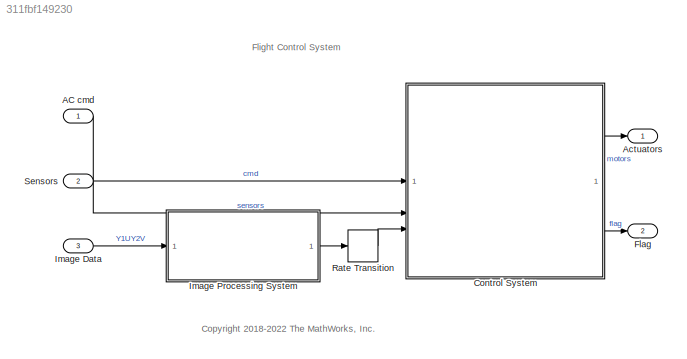
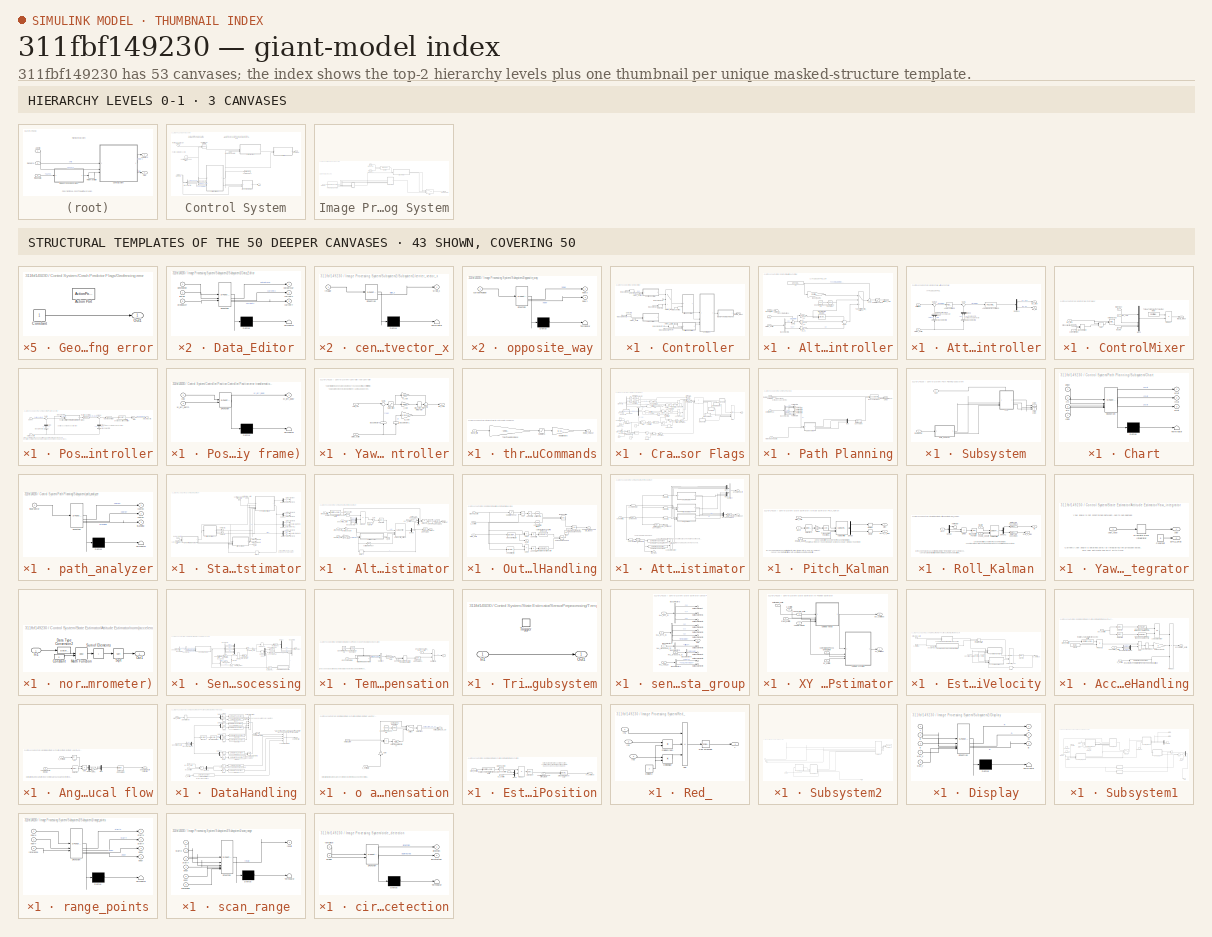
[diagram: thumbnail index - top-2 hierarchy levels (3 canvases) + 43 structural-template representatives of the remaining 50 canvases]
MODEL slx_311fbf149230
KIND model
CONFIG AbsTol = auto
CONFIG EnableMultiTasking = on
CONFIG FixedStep = Ts
CONFIG MaxStep = auto
CONFIG MinStep = auto
CONFIG RelTol = 1e-3
CONFIG SampleTimeConstraint = Unconstrained
CONFIG SolverName = ode3
CONFIG StartTime = 0
CONFIG StopTime = TFinal
WORKSPACE source: mxarray member
WORKSPACE CIRCLE_PTS = [19 19 19]
WORKSPACE ZEROS = [0 0 0 0 0 0 0 0 0 0 0 0 ... (1444 elements, 38x38)]
BLOCK [Inport] AC cmd
  BusOutputAsStruct = on
  OutDataTypeStr = Bus: CommandBus
BLOCK [Outport] Actuators
  OutDataTypeStr = single
  PortDimensions = 4
  VectorParamsAs1DForOutWhenUnconnected = off
BLOCK [SubSystem] Control System
  InitFcn = codertarget.parrot.internal.fcsSubsystemCallback(gcb);
  RTWSystemCode = Reusable function
  SystemSampleTime = Ts
  TreatAsAtomicUnit = on
BLOCK [BusSelector] Control System/Bus Selector1
  OutputSignals = opticalFlow_data
BLOCK [BusSelector] Control System/Bus Selector4
  OutputSignals = VisionSensors,SensorCalibration
BLOCK [BusAssignment] Control System/Control Mode Update
  AssignedSignals = controlModePosVSOrient
BLOCK [SubSystem] Control System/Controller
BLOCK [SubSystem] Control System/Controller/Altitude Controller
BLOCK [BusSelector] Control System/Controller/Altitude Controller/Bus Selector1
  OutputSignals = Z,dz
BLOCK [Reference] Control System/Controller/Altitude Controller/Compare To Constant  REF=simulink/Logic and Bit
Operations/Compare
To Constant
  SourceBlock = simulink/Logic and Bit\nOperations/Compare\nTo Constant
  SourceType = Compare To Constant
BLOCK [Reference] Control System/Controller/Altitude Controller/Counter Free-Running  REF=simulink/Sources/Counter
Free-Running
  SourceBlock = simulink/Sources/Counter\nFree-Running
  SourceType = Counter Free-Running
BLOCK [Gain] Control System/Controller/Altitude Controller/D_z1
  Gain = 0.5
  OutDataTypeStr = single
  ParamDataTypeStr = single
  SaturateOnIntegerOverflow = on
BLOCK [DiscreteIntegrator] Control System/Controller/Altitude Controller/Discrete-Time Integrator
  ExternalReset = falling
  ICPrevOutput = DiscIntNeverNeededParam
  ICPrevScaledInput = DiscIntNeverNeededParam
  InitialConditionSetting = Auto
  LimitOutput = on
  LowerSaturationLimit = -2
  SampleTime = Ts
  UpperSaturationLimit = 2
BLOCK [Gain] Control System/Controller/Altitude Controller/I_pr
  Gain = 0.24
BLOCK [Gain] Control System/Controller/Altitude Controller/P_z1
  Gain = 0.8
  OutDataTypeStr = single
  ParamDataTypeStr = single
  SaturateOnIntegerOverflow = on
BLOCK [Inport] Control System/Controller/Altitude Controller/PosZ
  Port = 2
BLOCK [Saturate] Control System/Controller/Altitude Controller/SaturationThrust1
  LowerLimit = -4*Controller.totalThrustMaxRelative*Controller.motorsThrustPerMotorMax
  OutDataTypeStr = single
  UpperLimit = 4*Controller.totalThrustMaxRelative*Controller.motorsThrustPerMotorMax
BLOCK [Sum] Control System/Controller/Altitude Controller/Sum1
  AccumDataTypeStr = single
  Inputs = ++-
  OutDataTypeStr = single
  SaturateOnIntegerOverflow = on
BLOCK [Sum] Control System/Controller/Altitude Controller/Sum2
  AccumDataTypeStr = single
  Inputs = +-|
  OutDataTypeStr = single
  SaturateOnIntegerOverflow = on
BLOCK [Sum] Control System/Controller/Altitude Controller/Sum5
  AccumDataTypeStr = single
  Inputs = ++|
  OutDataTypeStr = single
  SaturateOnIntegerOverflow = on
BLOCK [Switch] Control System/Controller/Altitude Controller/TakeoffOrControl_Switch1
  Criteria = u2 > Threshold
  InputSameDT = off
  SaturateOnIntegerOverflow = off
BLOCK [Terminator] Control System/Controller/Altitude Controller/Terminator
BLOCK [Outport] Control System/Controller/Altitude Controller/altitude_cmd
  VectorParamsAs1DForOutWhenUnconnected = off
BLOCK [Inport] Control System/Controller/Altitude Controller/states_estim
BLOCK [Inport] Control System/Controller/Altitude Controller/takeoff_flag
  Port = 3
BLOCK [Gain] Control System/Controller/Altitude Controller/takeoff_gain1
  Gain = Controller.takeoffGain
  OutDataTypeStr = single
  ParamDataTypeStr = single
  SaturateOnIntegerOverflow = on
BLOCK [Constant] Control System/Controller/Altitude Controller/w1
  OutDataTypeStr = single
  SampleTime = Ts
  Value = -g*Vehicle.Airframe.mass
BLOCK [SubSystem] Control System/Controller/Attitude Controller
BLOCK [Reference] Control System/Controller/Attitude Controller/Angle control loop  REF=slpidlib/PID Controller
  SourceBlock = slpidlib/PID Controller
  SourceType = PID 1dof
BLOCK [Reference] Control System/Controller/Attitude Controller/Angular velocity control loop  REF=slpidlib/PID Controller
  SourceBlock = slpidlib/PID Controller
  SourceType = PID 1dof
BLOCK [BusSelector] Control System/Controller/Attitude Controller/Bus Selector1
  OutputSignals = q,p
BLOCK [BusSelector] Control System/Controller/Attitude Controller/Bus Selector3
  OutputSignals = pitch,roll
BLOCK [Demux] Control System/Controller/Attitude Controller/Demux1
  Outputs = 2
BLOCK [Mux] Control System/Controller/Attitude Controller/Mux
  DisplayOption = bar
  Inputs = 2
BLOCK [Mux] Control System/Controller/Attitude Controller/Mux2
  DisplayOption = bar
  Inputs = 2
BLOCK [Sum] Control System/Controller/Attitude Controller/Sum1
  Inputs = |+-
BLOCK [Sum] Control System/Controller/Attitude Controller/Sum19
  Inputs = |+-
BLOCK [Inport] Control System/Controller/Attitude Controller/refAttitude
BLOCK [Inport] Control System/Controller/Attitude Controller/states_estim
  Port = 2
BLOCK [Outport] Control System/Controller/Attitude Controller/tau_pitch
  VectorParamsAs1DForOutWhenUnconnected = off
BLOCK [Outport] Control System/Controller/Attitude Controller/tau_roll
  Port = 2
  VectorParamsAs1DForOutWhenUnconnected = off
BLOCK [SubSystem] Control System/Controller/ControlMixer
BLOCK [Sum] Control System/Controller/ControlMixer/Add
  IconShape = rectangular
BLOCK [ManualSwitch] Control System/Controller/ControlMixer/Manual Switch
BLOCK [Mux] Control System/Controller/ControlMixer/Mux2
  DisplayOption = bar
BLOCK [Constant] Control System/Controller/ControlMixer/Pitch correction
  OutDataTypeStr = single
  Value = 0.002
BLOCK [Product] Control System/Controller/ControlMixer/Product
  Multiplication = Matrix(*)
  RndMeth = Zero
BLOCK [Constant] Control System/Controller/ControlMixer/TorqueTotalThrustToThrustPerMotor
  NameLocation = top
  OutDataTypeStr = single
  Value = Controller.Q2Ts
BLOCK [VariantSource] Control System/Controller/ControlMixer/Variant Source
  ShowConditionOnBlock = on
  VariantActivationTime = update diagram analyze all choices
  VariantControlMode = sim codegen switching
BLOCK [Inport] Control System/Controller/ControlMixer/tau_pitch
BLOCK [Inport] Control System/Controller/ControlMixer/tau_roll
  Port = 2
BLOCK [Inport] Control System/Controller/ControlMixer/tau_yaw
  Port = 3
BLOCK [Outport] Control System/Controller/ControlMixer/thrusts_refout
  VectorParamsAs1DForOutWhenUnconnected = off
BLOCK [Inport] Control System/Controller/ControlMixer/totalThrust
  Port = 4
BLOCK [Constant] Control System/Controller/ControlMixer/zero correction
  OutDataTypeStr = single
  Value = 0
BLOCK [Inport] Control System/Controller/In Bus Element
BLOCK [Inport] Control System/Controller/In Bus Element1
BLOCK [Inport] Control System/Controller/In Bus Element2
BLOCK [Inport] Control System/Controller/In Bus Element3
BLOCK [Inport] Control System/Controller/In Bus Element5
BLOCK [Inport] Control System/Controller/In Bus Element6
BLOCK [SubSystem] Control System/Controller/Position Controller
BLOCK [BusSelector] Control System/Controller/Position Controller/Bus Selector1
  NameLocation = right
  OutputSignals = X,Y
BLOCK [BusSelector] Control System/Controller/Position Controller/Bus Selector2
  NameLocation = right
  OutputSignals = dx,dy
BLOCK [BusSelector] Control System/Controller/Position Controller/Bus Selector3
  OutputSignals = yaw
BLOCK [Gain] Control System/Controller/Position Controller/Gain
  Gain = [-1, 1]
BLOCK [DiscreteTransferFcn] Control System/Controller/Position Controller/LPF 8Hz Cutoff Filter to avoid oscillations induced by position controller
  Denominator = [1+1/pi/Ts/8, 1-1/pi/Ts/8]
  InputPortMap = u0
  Numerator = [1, 1]
BLOCK [Mux] Control System/Controller/Position Controller/Mux
  DisplayOption = bar
  Inputs = 2
  NameLocation = right
BLOCK [Mux] Control System/Controller/Position Controller/Mux1
  DisplayOption = bar
  Inputs = 2
  NameLocation = right
BLOCK [Reference] Control System/Controller/Position Controller/Position controller  REF=slpidlib/PID Controller
  SourceBlock = slpidlib/PID Controller
  SourceType = PID 1dof
BLOCK [SubSystem] Control System/Controller/Position Controller/Position error transformation (Earth to Body frame)
  ErrorFcn = Stateflow.Translate.translate
  PermitHierarchicalResolution = ExplicitOnly
  SFBlockType = MATLAB Function
  TreatAsAtomicUnit = on
BLOCK [Demux] Control System/Controller/Position Controller/Position error transformation (Earth to Body frame)/ Demux 
  Outputs = 1
BLOCK [S-Function] Control System/Controller/Position Controller/Position error transformation (Earth to Body frame)/ SFunction 
  EnableBusSupport = on
  FunctionName = sf_sfun
  PortCounts = [2 2]
  SFcnIsStateOwnerBlock = off
  SFunctionDeploymentMode = off
  Tag = Stateflow S-Function 2
BLOCK [Terminator] Control System/Controller/Position Controller/Position error transformation (Earth to Body frame)/ Terminator 
BLOCK [Outport] Control System/Controller/Position Controller/Position error transformation (Earth to Body frame)/xy_err_body
BLOCK [Inport] Control System/Controller/Position Controller/Position error transformation (Earth to Body frame)/xy_err_earth
  Port = 2
BLOCK [Inport] Control System/Controller/Position Controller/Position error transformation (Earth to Body frame)/yaw
BLOCK [Sum] Control System/Controller/Position Controller/Sum1
  Inputs = |+-
BLOCK [Sum] Control System/Controller/Position Controller/Sum19
  Inputs = |+-
BLOCK [Reference] Control System/Controller/Position Controller/Velocity controller  REF=slpidlib/PID Controller
  SourceBlock = slpidlib/PID Controller
  SourceType = PID 1dof
BLOCK [Outport] Control System/Controller/Position Controller/pitch_roll_cmd
  VectorParamsAs1DForOutWhenUnconnected = off
BLOCK [Inport] Control System/Controller/Position Controller/posXY
BLOCK [Inport] Control System/Controller/Position Controller/states_estim
  Port = 2
BLOCK [Selector] Control System/Controller/Selector
  IndexOptions = Index vector (dialog)
  Indices = 3
  InputPortWidth = 3
  OutputSizes = 1
BLOCK [Selector] Control System/Controller/Selector1
  IndexOptions = Index vector (dialog)
  Indices = [1 2]
  InputPortWidth = 3
  OutputSizes = 1
BLOCK [Selector] Control System/Controller/Selector2
  IndexOptions = Index vector (dialog)
  Indices = [2 3]
  InputPortWidth = 3
  OutputSizes = 1
BLOCK [Selector] Control System/Controller/Selector3
  IndexOptions = Index vector (dialog)
  Indices = 1
  InputPortWidth = 3
  OutputSizes = 1
BLOCK [Switch] Control System/Controller/Switch_refAtt
  Criteria = u2 > Threshold
  InputSameDT = off
  SaturateOnIntegerOverflow = off
BLOCK [SubSystem] Control System/Controller/Yaw Controller
BLOCK [BusSelector] Control System/Controller/Yaw Controller/Bus Selector1
  NameLocation = right
  OutputSignals = r
BLOCK [BusSelector] Control System/Controller/Yaw Controller/Bus Selector5
  NameLocation = right
  OutputSignals = yaw
BLOCK [Gain] Control System/Controller/Yaw Controller/D_yaw
  Gain = 0.3*0.004
BLOCK [DiscreteIntegrator] Control System/Controller/Yaw Controller/Discrete-Time Integrator
  ICPrevOutput = DiscIntNeverNeededParam
  ICPrevScaledInput = DiscIntNeverNeededParam
  InitialConditionSetting = Auto
  SampleTime = -1
  gainval = 1
BLOCK [Gain] Control System/Controller/Yaw Controller/I_yaw
  Gain = 0.002
  OutDataTypeStr = single
  ParamDataTypeStr = single
BLOCK [Gain] Control System/Controller/Yaw Controller/P_yaw
  Gain = 0.004
  OutDataTypeStr = single
  ParamDataTypeStr = single
BLOCK [Saturate] Control System/Controller/Yaw Controller/Saturation
  LowerLimit = -pi/180*30
  UpperLimit = pi/180*30
BLOCK [Sum] Control System/Controller/Yaw Controller/Sum1
  AccumDataTypeStr = single
  Inputs = |+-
  OutDataTypeStr = single
  SaturateOnIntegerOverflow = on
BLOCK [Sum] Control System/Controller/Yaw Controller/Sum2
  Inputs = ++-
BLOCK [Inport] Control System/Controller/Yaw Controller/states_estim
  Port = 2
BLOCK [Outport] Control System/Controller/Yaw Controller/tau_yaw
  VectorParamsAs1DForOutWhenUnconnected = off
BLOCK [Inport] Control System/Controller/Yaw Controller/yaw_ref
BLOCK [Outport] Control System/Controller/motors_refout
  VectorParamsAs1DForOutWhenUnconnected = off
BLOCK [Inport] Control System/Controller/states_estim
  Port = 2
BLOCK [InportShadow] Control System/Controller/states_estim1
  Port = 2
BLOCK [InportShadow] Control System/Controller/states_estim2
  Port = 2
BLOCK [InportShadow] Control System/Controller/states_estim3
  Port = 2
BLOCK [SubSystem] Control System/Controller/thrustsToMotorCommands
BLOCK [Gain] Control System/Controller/thrustsToMotorCommands/MotorDirections
  Gain = [1 -1 1 -1]
BLOCK [Saturate] Control System/Controller/thrustsToMotorCommands/Saturation5
  LowerLimit = Vehicle.Motor.minLimit
  UpperLimit = Vehicle.Motor.maxLimit
BLOCK [Gain] Control System/Controller/thrustsToMotorCommands/ThrustToMotorCommand
  Gain = -Vehicle.Motor.thrustToMotorCommand
BLOCK [Outport] Control System/Controller/thrustsToMotorCommands/motors_cmdout
  VectorParamsAs1DForOutWhenUnconnected = off
BLOCK [Inport] Control System/Controller/thrustsToMotorCommands/thrusts_refin
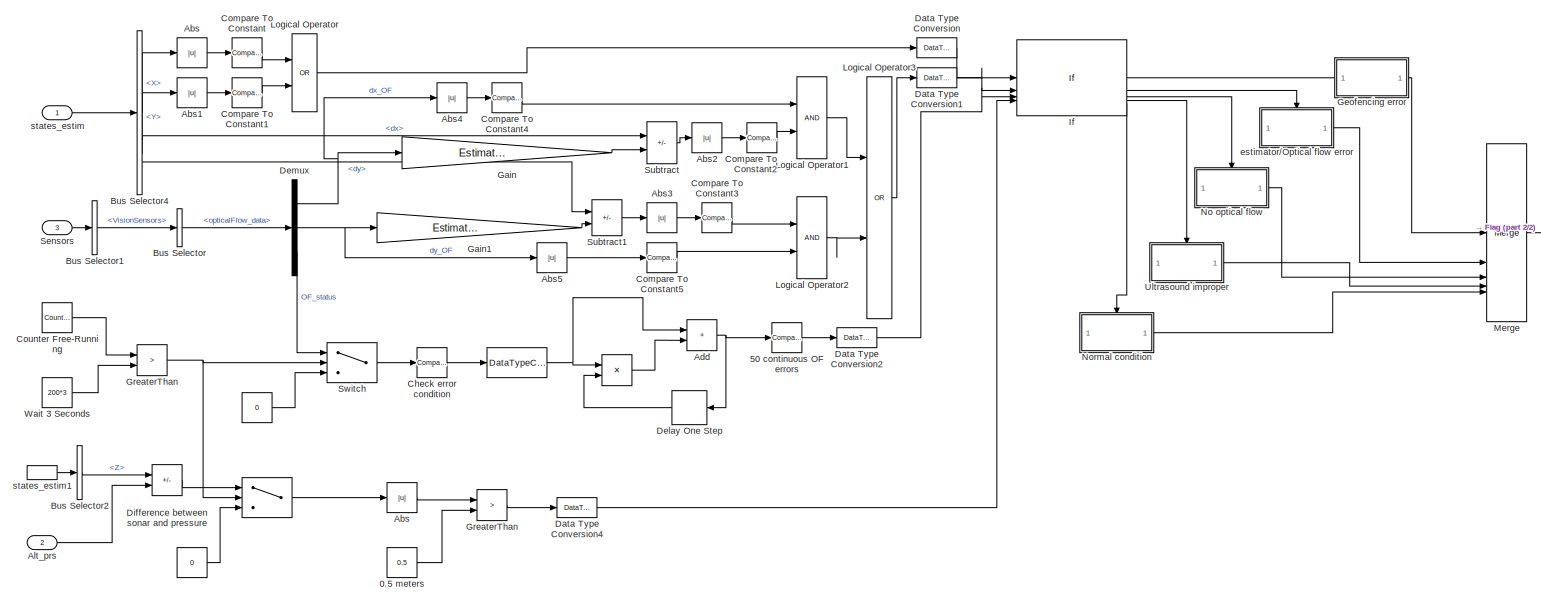
[diagram: Control System/Crash Predictor Flags - part 1/2, most of the canvas]
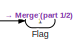
[diagram: Control System/Crash Predictor Flags - part 2/2, middle right region]
BLOCK [SubSystem] Control System/Crash Predictor Flags
BLOCK [Constant] Control System/Crash Predictor Flags/ 
  Value = 0
BLOCK [Product] Control System/Crash Predictor Flags/  
  Inputs = **
BLOCK [DataTypeConversion] Control System/Crash Predictor Flags/   
  RndMeth = Floor
  SaturateOnIntegerOverflow = off
BLOCK [Constant] Control System/Crash Predictor Flags/    
  OutDataTypeStr = single
  Value = 0
BLOCK [Switch] Control System/Crash Predictor Flags/         
  Criteria = u2 > Threshold
  InputSameDT = off
  SaturateOnIntegerOverflow = off
BLOCK [Constant] Control System/Crash Predictor Flags/0.5 meters
  Value = 0.5
BLOCK [Reference] Control System/Crash Predictor Flags/50 continuous OF errors   REF=simulink/Logic and Bit
Operations/Compare
To Constant
  SourceBlock = simulink/Logic and Bit\nOperations/Compare\nTo Constant
  SourceType = Compare To Constant
BLOCK [Abs] Control System/Crash Predictor Flags/Abs
  SaturateOnIntegerOverflow = off
BLOCK [Abs] Control System/Crash Predictor Flags/Abs  
  SaturateOnIntegerOverflow = off
BLOCK [Abs] Control System/Crash Predictor Flags/Abs1
  SaturateOnIntegerOverflow = off
BLOCK [Abs] Control System/Crash Predictor Flags/Abs2
  SaturateOnIntegerOverflow = off
BLOCK [Abs] Control System/Crash Predictor Flags/Abs3
  SaturateOnIntegerOverflow = off
BLOCK [Abs] Control System/Crash Predictor Flags/Abs4
  SaturateOnIntegerOverflow = off
BLOCK [Abs] Control System/Crash Predictor Flags/Abs5
  SaturateOnIntegerOverflow = off
BLOCK [Sum] Control System/Crash Predictor Flags/Add
  IconShape = rectangular
BLOCK [Inport] Control System/Crash Predictor Flags/Alt_prs
  Port = 2
BLOCK [BusSelector] Control System/Crash Predictor Flags/Bus Selector
  OutputSignals = opticalFlow_data
BLOCK [BusSelector] Control System/Crash Predictor Flags/Bus Selector1
  OutputSignals = VisionSensors
BLOCK [BusSelector] Control System/Crash Predictor Flags/Bus Selector2
  OutputSignals = Z
BLOCK [BusSelector] Control System/Crash Predictor Flags/Bus Selector4
  OutputSignals = X,Y,dx,dy
BLOCK [Reference] Control System/Crash Predictor Flags/Check error condition  REF=simulink/Logic and Bit
Operations/Compare
To Constant
  SourceBlock = simulink/Logic and Bit\nOperations/Compare\nTo Constant
  SourceType = Compare To Constant
BLOCK [Reference] Control System/Crash Predictor Flags/Compare To Constant  REF=simulink/Logic and Bit
Operations/Compare
To Constant
  SourceBlock = simulink/Logic and Bit\nOperations/Compare\nTo Constant
  SourceType = Compare To Constant
BLOCK [Reference] Control System/Crash Predictor Flags/Compare To Constant1  REF=simulink/Logic and Bit
Operations/Compare
To Constant
  SourceBlock = simulink/Logic and Bit\nOperations/Compare\nTo Constant
  SourceType = Compare To Constant
BLOCK [Reference] Control System/Crash Predictor Flags/Compare To Constant2  REF=simulink/Logic and Bit
Operations/Compare
To Constant
  SourceBlock = simulink/Logic and Bit\nOperations/Compare\nTo Constant
  SourceType = Compare To Constant
BLOCK [Reference] Control System/Crash Predictor Flags/Compare To Constant3  REF=simulink/Logic and Bit
Operations/Compare
To Constant
  SourceBlock = simulink/Logic and Bit\nOperations/Compare\nTo Constant
  SourceType = Compare To Constant
BLOCK [Reference] Control System/Crash Predictor Flags/Compare To Constant4  REF=simulink/Logic and Bit
Operations/Compare
To Constant
  SourceBlock = simulink/Logic and Bit\nOperations/Compare\nTo Constant
  SourceType = Compare To Constant
BLOCK [Reference] Control System/Crash Predictor Flags/Compare To Constant5  REF=simulink/Logic and Bit
Operations/Compare
To Constant
  SourceBlock = simulink/Logic and Bit\nOperations/Compare\nTo Constant
  SourceType = Compare To Constant
BLOCK [Reference] Control System/Crash Predictor Flags/Counter Free-Running  REF=simulink/Sources/Counter
Free-Running
  SourceBlock = simulink/Sources/Counter\nFree-Running
  SourceType = Counter Free-Running
BLOCK [DataTypeConversion] Control System/Crash Predictor Flags/Data Type Conversion
  OutDataTypeStr = uint8
  RndMeth = Nearest
  SaturateOnIntegerOverflow = off
BLOCK [DataTypeConversion] Control System/Crash Predictor Flags/Data Type Conversion1
  OutDataTypeStr = uint8
  RndMeth = Nearest
  SaturateOnIntegerOverflow = off
BLOCK [DataTypeConversion] Control System/Crash Predictor Flags/Data Type Conversion2
  OutDataTypeStr = uint8
  RndMeth = Nearest
  SaturateOnIntegerOverflow = off
BLOCK [DataTypeConversion] Control System/Crash Predictor Flags/Data Type Conversion4
  OutDataTypeStr = uint8
  RndMeth = Nearest
  SaturateOnIntegerOverflow = off
BLOCK [Delay] Control System/Crash Predictor Flags/Delay One Step
  DelayLength = 1
  InputPortMap = u0
BLOCK [Demux] Control System/Crash Predictor Flags/Demux
  Outputs = 3
BLOCK [Sum] Control System/Crash Predictor Flags/Difference between sonar and pressure
  IconShape = rectangular
  Inputs = +-
BLOCK [Outport] Control System/Crash Predictor Flags/Flag
  VectorParamsAs1DForOutWhenUnconnected = off
BLOCK [Gain] Control System/Crash Predictor Flags/Gain
  Gain = Estimator.pos.visDeltaXYMax
BLOCK [Gain] Control System/Crash Predictor Flags/Gain1
  Gain = Estimator.pos.visDeltaXYMax
BLOCK [SubSystem] Control System/Crash Predictor Flags/Geofencing error
  TreatAsAtomicUnit = on
BLOCK [ActionPort] Control System/Crash Predictor Flags/Geofencing error/Action Port
  ActionPortLabel = if(u1 > 0)
BLOCK [Constant] Control System/Crash Predictor Flags/Geofencing error/Constant
  OutDataTypeStr = uint8
BLOCK [Outport] Control System/Crash Predictor Flags/Geofencing error/Out1
  VectorParamsAs1DForOutWhenUnconnected = off
BLOCK [RelationalOperator] Control System/Crash Predictor Flags/GreaterThan
  InputSameDT = off
  Operator = >
  OutDataTypeStr = boolean
  RndMeth = Simplest
BLOCK [RelationalOperator] Control System/Crash Predictor Flags/GreaterThan  
  InputSameDT = off
  NameLocation = top
  Operator = >
  OutDataTypeStr = boolean
  RndMeth = Simplest
BLOCK [If] Control System/Crash Predictor Flags/If
  ElseIfExpressions = u2 > 0, u3> 0,u4>0
  NumInputs = 4
BLOCK [Logic] Control System/Crash Predictor Flags/Logical Operator
  AllPortsSameDT = off
  Operator = OR
BLOCK [Logic] Control System/Crash Predictor Flags/Logical Operator1
  AllPortsSameDT = off
  OutDataTypeStr = boolean
BLOCK [Logic] Control System/Crash Predictor Flags/Logical Operator2
  AllPortsSameDT = off
  OutDataTypeStr = boolean
BLOCK [Logic] Control System/Crash Predictor Flags/Logical Operator3
  AllPortsSameDT = off
  Operator = OR
BLOCK [Merge] Control System/Crash Predictor Flags/Merge
  InitialOutput = 0
  Inputs = 5
BLOCK [SubSystem] Control System/Crash Predictor Flags/No optical flow 
  TreatAsAtomicUnit = on
BLOCK [ActionPort] Control System/Crash Predictor Flags/No optical flow /Action Port
  ActionPortLabel = elseif( u3> 0)
BLOCK [Constant] Control System/Crash Predictor Flags/No optical flow /Constant
  OutDataTypeStr = uint8
  Value = 0
BLOCK [Outport] Control System/Crash Predictor Flags/No optical flow /Out1
  VectorParamsAs1DForOutWhenUnconnected = off
BLOCK [SubSystem] Control System/Crash Predictor Flags/Normal condition
  TreatAsAtomicUnit = on
BLOCK [ActionPort] Control System/Crash Predictor Flags/Normal condition/Action Port
  ActionPortLabel = else
BLOCK [Constant] Control System/Crash Predictor Flags/Normal condition/Constant
  OutDataTypeStr = uint8
  Value = 0
BLOCK [Outport] Control System/Crash Predictor Flags/Normal condition/Out1
  VectorParamsAs1DForOutWhenUnconnected = off
BLOCK [Inport] Control System/Crash Predictor Flags/Sensors
  Port = 3
BLOCK [Sum] Control System/Crash Predictor Flags/Subtract
  IconShape = rectangular
  Inputs = -+
BLOCK [Sum] Control System/Crash Predictor Flags/Subtract1
  IconShape = rectangular
  Inputs = -+
BLOCK [Switch] Control System/Crash Predictor Flags/Switch
  Criteria = u2 > Threshold
  InputSameDT = off
  SaturateOnIntegerOverflow = off
BLOCK [SubSystem] Control System/Crash Predictor Flags/Ultrasound improper
  TreatAsAtomicUnit = on
BLOCK [ActionPort] Control System/Crash Predictor Flags/Ultrasound improper/Action Port
  ActionPortLabel = elseif(u4>0)
BLOCK [Constant] Control System/Crash Predictor Flags/Ultrasound improper/Constant
  OutDataTypeStr = uint8
  Value = 0
BLOCK [Outport] Control System/Crash Predictor Flags/Ultrasound improper/Out1
  VectorParamsAs1DForOutWhenUnconnected = off
BLOCK [Constant] Control System/Crash Predictor Flags/Wait  3 Seconds
  Value = 200*3
BLOCK [SubSystem] Control System/Crash Predictor Flags/estimator//Optical flow error
  TreatAsAtomicUnit = on
BLOCK [ActionPort] Control System/Crash Predictor Flags/estimator//Optical flow error/Action Port
  ActionPortLabel = elseif(u2 > 0)
BLOCK [Constant] Control System/Crash Predictor Flags/estimator//Optical flow error/Constant
  OutDataTypeStr = uint8
  Value = 99
BLOCK [Outport] Control System/Crash Predictor Flags/estimator//Optical flow error/Out1
  VectorParamsAs1DForOutWhenUnconnected = off
BLOCK [Inport] Control System/Crash Predictor Flags/states_estim
BLOCK [InportShadow] Control System/Crash Predictor Flags/states_estim1
BLOCK [Outport] Control System/Flag
  Port = 2
  VectorParamsAs1DForOutWhenUnconnected = off
BLOCK [SubSystem] Control System/Path Planning
BLOCK [BusAssignment] Control System/Path Planning/Bus Assignment
  AssignedSignals = pos_ref
BLOCK [BusSelector] Control System/Path Planning/Bus Selector1
  OutputSignals = X,Y,Z,yaw,pitch,roll
BLOCK [DataTypeConversion] Control System/Path Planning/Data Type Conversion
  OutDataTypeStr = single
  RndMeth = Floor
  SaturateOnIntegerOverflow = off
BLOCK [Inport] Control System/Path Planning/EstimatedVal
  Port = 2
BLOCK [Mux] Control System/Path Planning/Mux
  DisplayOption = bar
  Inputs = 3
BLOCK [Inport] Control System/Path Planning/ReferenceValueServerCmds
BLOCK [SubSystem] Control System/Path Planning/Subsystem
BLOCK [Inport] Control System/Path Planning/Subsystem/<Z>
BLOCK [SubSystem] Control System/Path Planning/Subsystem/Chart
  ErrorFcn = Stateflow.Translate.translate
  PermitHierarchicalResolution = ExplicitOnly
  PortSchema = {"entries":[{"content":{"sides":[{"content":{"connectorIds":["In2","In3","In4"]},"type":"ConnectorPlacement.EquallySpacedRectSide","uuid":"967f9a03-134f-4a0f-98bf-26d16a755769"},{"content":{"connectorIds":["Out1","Out2","Out3"],"side":"RIGHT"},"type":"ConnectorPlacement.EquallySpacedRectSide","uuid":"bc48fd95-886a-4cfa-979a-fc2a4b5d45bd"},{"content":{"connectorIds":["In1"],"side":"TOP"},"type":"Co...<+271ch>
  SFBlockType = Chart
  TreatAsAtomicUnit = on
BLOCK [Demux] Control System/Path Planning/Subsystem/Chart/ Demux 
  Outputs = 1
BLOCK [S-Function] Control System/Path Planning/Subsystem/Chart/ SFunction 
  EnableBusSupport = on
  FunctionName = sf_sfun
  PortCounts = [4 4]
  SFcnIsStateOwnerBlock = off
  SFunctionDeploymentMode = off
  Tag = Stateflow S-Function 9
BLOCK [Terminator] Control System/Path Planning/Subsystem/Chart/ Terminator 
BLOCK [Inport] Control System/Path Planning/Subsystem/Chart/land
  Port = 4
BLOCK [Outport] Control System/Path Planning/Subsystem/Chart/xOut
BLOCK [Inport] Control System/Path Planning/Subsystem/Chart/xin
  Port = 3
BLOCK [Outport] Control System/Path Planning/Subsystem/Chart/yOut
  Port = 2
BLOCK [Inport] Control System/Path Planning/Subsystem/Chart/yin
  Port = 2
BLOCK [Inport] Control System/Path Planning/Subsystem/Chart/zEsti
BLOCK [Outport] Control System/Path Planning/Subsystem/Chart/zOut
  Port = 3
BLOCK [Inport] Control System/Path Planning/Subsystem/inputVector
  Port = 2
BLOCK [SubSystem] Control System/Path Planning/Subsystem/path_analyzer
  ErrorFcn = Stateflow.Translate.translate
  PermitHierarchicalResolution = ExplicitOnly
  SFBlockType = MATLAB Function
  TreatAsAtomicUnit = on
BLOCK [Demux] Control System/Path Planning/Subsystem/path_analyzer/ Demux 
  Outputs = 1
BLOCK [S-Function] Control System/Path Planning/Subsystem/path_analyzer/ SFunction 
  EnableBusSupport = on
  FunctionName = sf_sfun
  PortCounts = [1 4]
  SFcnIsStateOwnerBlock = off
  SFunctionDeploymentMode = off
  Tag = Stateflow S-Function 10
BLOCK [Terminator] Control System/Path Planning/Subsystem/path_analyzer/ Terminator 
BLOCK [Outport] Control System/Path Planning/Subsystem/path_analyzer/coordX
BLOCK [Outport] Control System/Path Planning/Subsystem/path_analyzer/coordY
  Port = 2
BLOCK [Inport] Control System/Path Planning/Subsystem/path_analyzer/inputVector
BLOCK [Outport] Control System/Path Planning/Subsystem/path_analyzer/isLanding
  Port = 3
BLOCK [Outport] Control System/Path Planning/Subsystem/xOut
BLOCK [Outport] Control System/Path Planning/Subsystem/yOut
  Port = 2
BLOCK [Outport] Control System/Path Planning/Subsystem/zOut
  Port = 3
BLOCK [Terminator] Control System/Path Planning/Terminator1
  NameLocation = top
BLOCK [Terminator] Control System/Path Planning/Terminator2
  NameLocation = top
BLOCK [Terminator] Control System/Path Planning/Terminator3
  NameLocation = top
BLOCK [Terminator] Control System/Path Planning/Terminator4
  NameLocation = top
BLOCK [Terminator] Control System/Path Planning/Terminator5
  NameLocation = top
BLOCK [Terminator] Control System/Path Planning/Terminator6
  NameLocation = top
BLOCK [Outport] Control System/Path Planning/UpdatedReferenceCmds
  VectorParamsAs1DForOutWhenUnconnected = off
BLOCK [Inport] Control System/Path Planning/Vision-based Data
  Port = 3
BLOCK [Inport] Control System/ReferenceValueServerCmds
  OutDataTypeStr = Bus: CommandBus
BLOCK [Inport] Control System/Sensors
  BusOutputAsStruct = on
  OutDataTypeStr = Bus: SensorsBus
  Port = 2
BLOCK [SubSystem] Control System/State Estimator
BLOCK [Outport] Control System/State Estimator/Alt_prs
  Port = 2
  VectorParamsAs1DForOutWhenUnconnected = off
BLOCK [SubSystem] Control System/State Estimator/Altitude Estimator
BLOCK [Outport] Control System/State Estimator/Altitude Estimator/Alt_prs
  Port = 3
  VectorParamsAs1DForOutWhenUnconnected = off
BLOCK [BusSelector] Control System/State Estimator/Altitude Estimator/Bus Selector2
  OutputSignals = ddx,ddy,ddz
BLOCK [DataTypeConversion] Control System/State Estimator/Altitude Estimator/Data Type Conversion
  OutDataTypeStr = single
  RndMeth = Floor
BLOCK [DataTypeConversion] Control System/State Estimator/Altitude Estimator/Data Type Conversion1
  OutDataTypeStr = double
  RndMeth = Floor
BLOCK [DataTypeConversion] Control System/State Estimator/Altitude Estimator/Data Type Conversion2
  OutDataTypeStr = single
  RndMeth = Floor
BLOCK [Delay] Control System/State Estimator/Altitude Estimator/Delay2
  DelayLength = 1
  InitialCondition = 0
  InputPortMap = u0
  NameLocation = top
BLOCK [Demux] Control System/State Estimator/Altitude Estimator/Demux
  Outputs = 2
BLOCK [Reference] Control System/State Estimator/Altitude Estimator/KalmanFilter_altitude  REF=ctrlSharedLib/Kalman Filter
  SourceBlock = ctrlSharedLib/Kalman Filter
  SourceType = ctrlKalmanFilter
BLOCK [Math] Control System/State Estimator/Altitude Estimator/Math Function
  Operator = transpose
  SignedPower = on
BLOCK [Mux] Control System/State Estimator/Altitude Estimator/Mux
  DisplayOption = bar
  Inputs = 2
BLOCK [Mux] Control System/State Estimator/Altitude Estimator/Mux2
  DisplayOption = bar
  Inputs = 3
BLOCK [SubSystem] Control System/State Estimator/Altitude Estimator/OutlierHandling
BLOCK [Abs] Control System/State Estimator/Altitude Estimator/OutlierHandling/Absestdiff
  SaturateOnIntegerOverflow = off
BLOCK [Abs] Control System/State Estimator/Altitude Estimator/OutlierHandling/Absestdiff1
  SaturateOnIntegerOverflow = off
BLOCK [Abs] Control System/State Estimator/Altitude Estimator/OutlierHandling/Absestdiff2
  SaturateOnIntegerOverflow = off
BLOCK [Sum] Control System/State Estimator/Altitude Estimator/OutlierHandling/Add
  IconShape = rectangular
  Inputs = -+
BLOCK [Sum] Control System/State Estimator/Altitude Estimator/OutlierHandling/Add1
  IconShape = rectangular
  Inputs = -+
BLOCK [Sum] Control System/State Estimator/Altitude Estimator/OutlierHandling/Add2
  IconShape = rectangular
  Inputs = -+
BLOCK [Outport] Control System/State Estimator/Altitude Estimator/OutlierHandling/Alt_prs
  Port = 2
  VectorParamsAs1DForOutWhenUnconnected = off
BLOCK [Logic] Control System/State Estimator/Altitude Estimator/OutlierHandling/NOT
  AllPortsSameDT = off
  IconShape = distinctive
  Operator = NOT
  OutDataTypeStr = boolean
BLOCK [Saturate] Control System/State Estimator/Altitude Estimator/OutlierHandling/SaturationSonar
  LowerLimit = -inf
  UpperLimit = -Sensors.altSensorMin
BLOCK [Inport] Control System/State Estimator/Altitude Estimator/OutlierHandling/Z_estimin
  Port = 3
BLOCK [Inport] Control System/State Estimator/Altitude Estimator/OutlierHandling/altPrs_datin
  Port = 2
BLOCK [Inport] Control System/State Estimator/Altitude Estimator/OutlierHandling/altSonar_datin
  NameLocation = top
BLOCK [Reference] Control System/State Estimator/Altitude Estimator/OutlierHandling/check for min altitude  REF=simulink/Logic and Bit
Operations/Compare
To Constant
  SourceBlock = simulink/Logic and Bit\nOperations/Compare\nTo Constant
  SourceType = Compare To Constant
BLOCK [Reference] Control System/State Estimator/Altitude Estimator/OutlierHandling/currentEstimateVeryOffFromPressure  REF=simulink/Logic and Bit
Operations/Compare
To Constant
  SourceBlock = simulink/Logic and Bit\nOperations/Compare\nTo Constant
  SourceType = Compare To Constant
BLOCK [Reference] Control System/State Estimator/Altitude Estimator/OutlierHandling/currentStateVeryOffsonarflt  REF=simulink/Logic and Bit
Operations/Compare
To Constant
  SourceBlock = simulink/Logic and Bit\nOperations/Compare\nTo Constant
  SourceType = Compare To Constant
BLOCK [Outport] Control System/State Estimator/Altitude Estimator/OutlierHandling/enableKFmeasupdate_flagout
  VectorParamsAs1DForOutWhenUnconnected = off
BLOCK [Logic] Control System/State Estimator/Altitude Estimator/OutlierHandling/findingoutliers
  AllPortsSameDT = off
  OutDataTypeStr = boolean
BLOCK [Logic] Control System/State Estimator/Altitude Estimator/OutlierHandling/newupdateneeded
  AllPortsSameDT = off
  OutDataTypeStr = boolean
BLOCK [Logic] Control System/State Estimator/Altitude Estimator/OutlierHandling/nicemeasurementor newupdateneeded
  AllPortsSameDT = off
  OutDataTypeStr = boolean
BLOCK [Reference] Control System/State Estimator/Altitude Estimator/OutlierHandling/outlierJump  REF=simulink/Logic and Bit
Operations/Compare
To Constant
  SourceBlock = simulink/Logic and Bit\nOperations/Compare\nTo Constant
  SourceType = Compare To Constant
BLOCK [DiscreteFilter] Control System/State Estimator/Altitude Estimator/OutlierHandling/pressureFilter_IIR
  Denominator = Estimator.alt.filterPrsDen
  InputPortMap = u0
  Numerator = Estimator.alt.filterPrsNum
BLOCK [DiscreteFilter] Control System/State Estimator/Altitude Estimator/OutlierHandling/sonarFilter_IIR
  Denominator = Estimator.alt.filterSonarDen
  InputPortMap = u0
  Numerator = Estimator.alt.filterSonarNum
BLOCK [Product] Control System/State Estimator/Altitude Estimator/Product
  Multiplication = Matrix(*)
BLOCK [Product] Control System/State Estimator/Altitude Estimator/Product1
  Multiplication = Matrix(*)
BLOCK [Reference] Control System/State Estimator/Altitude Estimator/Rotation Angles to Direction Cosine Matrix  REF=sharedtransform/Rotation Angles to
Direction Cosine Matrix
  AttributesFormatString = Rotation Order: %<rotationOrder>
  SourceBlock = sharedtransform/Rotation Angles to\nDirection Cosine Matrix
  SourceType = Ang2DCM
BLOCK [Selector] Control System/State Estimator/Altitude Estimator/Selector4
  IndexOptions = Index vector (dialog)
  Indices = [3]
  InputPortWidth = 3
  OutputSizes = 1
BLOCK [Selector] Control System/State Estimator/Altitude Estimator/Selector5
  IndexOptions = Index vector (dialog)
  Indices = [3]
  InputPortWidth = 3
  OutputSizes = 1
BLOCK [Sum] Control System/State Estimator/Altitude Estimator/Sum
  Inputs = |++
BLOCK [Outport] Control System/State Estimator/Altitude Estimator/Z_estimout
  Port = 2
  VectorParamsAs1DForOutWhenUnconnected = off
BLOCK [Inport] Control System/State Estimator/Altitude Estimator/altSonar_datin
  Port = 2
BLOCK [Inport] Control System/State Estimator/Altitude Estimator/dxy_estimin
  Port = 4
BLOCK [Outport] Control System/State Estimator/Altitude Estimator/dz_estimout
  VectorParamsAs1DForOutWhenUnconnected = off
BLOCK [Constant] Control System/State Estimator/Altitude Estimator/gravity
  Value = [0 0 g]
BLOCK [Gain] Control System/State Estimator/Altitude Estimator/invertzaxisGain
  Gain = -1
  OutDataTypeStr = double
  ParamDataTypeStr = single
BLOCK [Inport] Control System/State Estimator/Altitude Estimator/orient_estimin
  Port = 5
BLOCK [Reference] Control System/State Estimator/Altitude Estimator/outlierBelowFloor  REF=simulink/Logic and Bit
Operations/Compare
To Constant
  SourceBlock = simulink/Logic and Bit\nOperations/Compare\nTo Constant
  SourceType = Compare To Constant
BLOCK [Inport] Control System/State Estimator/Altitude Estimator/prsDelta_datin
  Port = 3
BLOCK [Gain] Control System/State Estimator/Altitude Estimator/prsToAltGain
  Gain = 1/Sensors.altToPrsGain
BLOCK [Inport] Control System/State Estimator/Altitude Estimator/sensorIMU_datin
BLOCK [SubSystem] Control System/State Estimator/Attitude Estimator
BLOCK [Selector] Control System/State Estimator/Attitude Estimator/Accelerometer
  IndexOptions = Index vector (dialog)
  Indices = [1 2 3]
  InputPortWidth = 6
  OutputSizes = 1
BLOCK [Reference] Control System/State Estimator/Attitude Estimator/Compare To Constant  REF=simulink/Logic and Bit
Operations/Compare
To Constant
  SourceBlock = simulink/Logic and Bit\nOperations/Compare\nTo Constant
  SourceType = Compare To Constant
BLOCK [Reference] Control System/State Estimator/Attitude Estimator/Compare To Constant1  REF=simulink/Logic and Bit
Operations/Compare
To Constant
  SourceBlock = simulink/Logic and Bit\nOperations/Compare\nTo Constant
  SourceType = Compare To Constant
BLOCK [DataTypeConversion] Control System/State Estimator/Attitude Estimator/Data Type Conversion1
  OutDataTypeStr = single
  RndMeth = Floor
  SaturateOnIntegerOverflow = off
BLOCK [DataTypeConversion] Control System/State Estimator/Attitude Estimator/Data Type Conversion3
  OutDataTypeStr = single
  RndMeth = Floor
  SaturateOnIntegerOverflow = off
BLOCK [Selector] Control System/State Estimator/Attitude Estimator/Gyroscope
  IndexOptions = Index vector (dialog)
  Indices = [4 5 6]
  InputPortWidth = 6
  OutputSizes = 1
BLOCK [Logic] Control System/State Estimator/Attitude Estimator/Logical Operator
  AllPortsSameDT = off
  OutDataTypeStr = fixdt(1,16)
BLOCK [Mux] Control System/State Estimator/Attitude Estimator/Mux
  DisplayOption = bar
  Inputs = 3
BLOCK [Mux] Control System/State Estimator/Attitude Estimator/Mux1
  DisplayOption = bar
  Inputs = 3
BLOCK [Mux] Control System/State Estimator/Attitude Estimator/Mux2
  DisplayOption = bar
  Inputs = 3
BLOCK [SubSystem] Control System/State Estimator/Attitude Estimator/Pitch_Kalman
BLOCK [Demux] Control System/State Estimator/Attitude Estimator/Pitch_Kalman/Demux
  Outputs = 2
BLOCK [Gain] Control System/State Estimator/Attitude Estimator/Pitch_Kalman/Gain2
  Gain = 1/g
BLOCK [Reference] Control System/State Estimator/Attitude Estimator/Pitch_Kalman/Kalman Filter  REF=ctrlSharedLib/Kalman Filter
  SourceBlock = ctrlSharedLib/Kalman Filter
  SourceType = ctrlKalmanFilter
BLOCK [Selector] Control System/State Estimator/Attitude Estimator/Pitch_Kalman/Selector1
  IndexOptions = Index vector (dialog)
  Indices = [1]
  InputPortWidth = 3
  OutputSizes = 1
BLOCK [Trigonometry] Control System/State Estimator/Attitude Estimator/Pitch_Kalman/Trigonometric Function1
  Operator = asin
BLOCK [Inport] Control System/State Estimator/Attitude Estimator/Pitch_Kalman/axyz
BLOCK [Inport] Control System/State Estimator/Attitude Estimator/Pitch_Kalman/enable_update
  Port = 3
BLOCK [Outport] Control System/State Estimator/Attitude Estimator/Pitch_Kalman/gyro_y_bias
  Port = 2
BLOCK [Outport] Control System/State Estimator/Attitude Estimator/Pitch_Kalman/pitch
BLOCK [Inport] Control System/State Estimator/Attitude Estimator/Pitch_Kalman/pitch_rate
  Port = 2
BLOCK [DataTypeConversion] Control System/State Estimator/Attitude Estimator/Pitch_Kalman/single
  OutDataTypeStr = single
  RndMeth = Floor
  SaturateOnIntegerOverflow = off
BLOCK [DataTypeConversion] Control System/State Estimator/Attitude Estimator/Pitch_Kalman/single1
  OutDataTypeStr = single
  RndMeth = Floor
  SaturateOnIntegerOverflow = off
BLOCK [SubSystem] Control System/State Estimator/Attitude Estimator/Roll_Kalman
BLOCK [DataTypeConversion] Control System/State Estimator/Attitude Estimator/Roll_Kalman/Data Type Conversion
  RndMeth = Floor
  SaturateOnIntegerOverflow = off
BLOCK [DataTypeConversion] Control System/State Estimator/Attitude Estimator/Roll_Kalman/Data Type Conversion1
  RndMeth = Floor
  SaturateOnIntegerOverflow = off
BLOCK [Demux] Control System/State Estimator/Attitude Estimator/Roll_Kalman/Demux
  Outputs = 3
BLOCK [Demux] Control System/State Estimator/Attitude Estimator/Roll_Kalman/Demux1
  Outputs = 2
BLOCK [Product] Control System/State Estimator/Attitude Estimator/Roll_Kalman/Divide
  Inputs = */
BLOCK [Reference] Control System/State Estimator/Attitude Estimator/Roll_Kalman/Kalman Filter  REF=ctrlSharedLib/Kalman Filter
  SourceBlock = ctrlSharedLib/Kalman Filter
  SourceType = ctrlKalmanFilter
BLOCK [Terminator] Control System/State Estimator/Attitude Estimator/Roll_Kalman/Terminator
BLOCK [Trigonometry] Control System/State Estimator/Attitude Estimator/Roll_Kalman/Trigonometric Function
  Operator = atan
BLOCK [Inport] Control System/State Estimator/Attitude Estimator/Roll_Kalman/axyz
BLOCK [Inport] Control System/State Estimator/Attitude Estimator/Roll_Kalman/enable_update
  Port = 3
BLOCK [Outport] Control System/State Estimator/Attitude Estimator/Roll_Kalman/gyro_x_bias
  Port = 2
BLOCK [Outport] Control System/State Estimator/Attitude Estimator/Roll_Kalman/roll
BLOCK [Inport] Control System/State Estimator/Attitude Estimator/Roll_Kalman/roll_rate
  Port = 2
BLOCK [Selector] Control System/State Estimator/Attitude Estimator/Selector2
  IndexOptions = Index vector (dialog)
  Indices = [1 2 3]
  InputPortWidth = 6
  OutputSizes = 1
BLOCK [Selector] Control System/State Estimator/Attitude Estimator/Selector4
  IndexOptions = Index vector (dialog)
  Indices = [2]
  InputPortWidth = 3
  OutputSizes = 1
BLOCK [Selector] Control System/State Estimator/Attitude Estimator/Selector5
  IndexOptions = Index vector (dialog)
  Indices = [3]
  InputPortWidth = 3
  OutputSizes = 1
BLOCK [Selector] Control System/State Estimator/Attitude Estimator/Selector6
  IndexOptions = Index vector (dialog)
  Indices = [1]
  InputPortWidth = 3
  OutputSizes = 1
BLOCK [Sum] Control System/State Estimator/Attitude Estimator/Subtract
  IconShape = rectangular
  Inputs = +-
BLOCK [SubSystem] Control System/State Estimator/Attitude Estimator/Yaw_integrator
BLOCK [Constant] Control System/State Estimator/Attitude Estimator/Yaw_integrator/Constant
  OutDataTypeStr = single
  Value = 0
BLOCK [DiscreteIntegrator] Control System/State Estimator/Attitude Estimator/Yaw_integrator/Discrete-Time Integrator
  ICPrevOutput = DiscIntNeverNeededParam
  ICPrevScaledInput = DiscIntNeverNeededParam
  InitialConditionSetting = Auto
  SampleTime = -1
BLOCK [Outport] Control System/State Estimator/Attitude Estimator/Yaw_integrator/gyro_z_bias
  Port = 2
BLOCK [Outport] Control System/State Estimator/Attitude Estimator/Yaw_integrator/yaw
BLOCK [Inport] Control System/State Estimator/Attitude Estimator/Yaw_integrator/yaw_rate
BLOCK [Outport] Control System/State Estimator/Attitude Estimator/angular velocity
  Port = 4
  VectorParamsAs1DForOutWhenUnconnected = off
BLOCK [Outport] Control System/State Estimator/Attitude Estimator/dorient_estimaout
  Port = 3
  VectorParamsAs1DForOutWhenUnconnected = off
BLOCK [Outport] Control System/State Estimator/Attitude Estimator/imu_abs
  OutDataTypeStr = single
  Port = 2
  VectorParamsAs1DForOutWhenUnconnected = off
BLOCK [SubSystem] Control System/State Estimator/Attitude Estimator/norm(accelerometer)
BLOCK [Constant] Control System/State Estimator/Attitude Estimator/norm(accelerometer)/Constant
  OutDataTypeStr = single
  Value = 2
BLOCK [DataTypeConversion] Control System/State Estimator/Attitude Estimator/norm(accelerometer)/Data Type Conversion2
  OutDataTypeStr = single
  RndMeth = Floor
  SaturateOnIntegerOverflow = off
BLOCK [Inport] Control System/State Estimator/Attitude Estimator/norm(accelerometer)/In1
BLOCK [Math] Control System/State Estimator/Attitude Estimator/norm(accelerometer)/Math Function
  Operator = pow
  SignedPower = on
BLOCK [Outport] Control System/State Estimator/Attitude Estimator/norm(accelerometer)/Out1
BLOCK [Sqrt] Control System/State Estimator/Attitude Estimator/norm(accelerometer)/Sqrt
BLOCK [Sum] Control System/State Estimator/Attitude Estimator/norm(accelerometer)/Sum of Elements
  IconShape = rectangular
  Inputs = +
BLOCK [Outport] Control System/State Estimator/Attitude Estimator/orient_estimaout
  VectorParamsAs1DForOutWhenUnconnected = off
BLOCK [Inport] Control System/State Estimator/Attitude Estimator/sensorIMU
  OutDataTypeStr = single
BLOCK [Delay] Control System/State Estimator/Delay1
  DelayLength = 1
  InitialCondition = 0
  InputPortMap = u0
BLOCK [Demux] Control System/State Estimator/Demux
  Outputs = 3
BLOCK [Demux] Control System/State Estimator/Demux1
  Outputs = 3
BLOCK [Demux] Control System/State Estimator/Demux3
  Outputs = 2
BLOCK [Demux] Control System/State Estimator/Demux4
  Outputs = 2
BLOCK [Outport] Control System/State Estimator/Out Bus Element
  VectorParamsAs1DForOutWhenUnconnected = off
BLOCK [Outport] Control System/State Estimator/Out Bus Element1
  VectorParamsAs1DForOutWhenUnconnected = off
BLOCK [Outport] Control System/State Estimator/Out Bus Element10
  VectorParamsAs1DForOutWhenUnconnected = off
BLOCK [Outport] Control System/State Estimator/Out Bus Element11
  VectorParamsAs1DForOutWhenUnconnected = off
BLOCK [Outport] Control System/State Estimator/Out Bus Element2
  VectorParamsAs1DForOutWhenUnconnected = off
BLOCK [Outport] Control System/State Estimator/Out Bus Element3
  VectorParamsAs1DForOutWhenUnconnected = off
BLOCK [Outport] Control System/State Estimator/Out Bus Element4
  VectorParamsAs1DForOutWhenUnconnected = off
BLOCK [Outport] Control System/State Estimator/Out Bus Element5
  VectorParamsAs1DForOutWhenUnconnected = off
BLOCK [Outport] Control System/State Estimator/Out Bus Element6
  VectorParamsAs1DForOutWhenUnconnected = off
BLOCK [Outport] Control System/State Estimator/Out Bus Element7
  VectorParamsAs1DForOutWhenUnconnected = off
BLOCK [Outport] Control System/State Estimator/Out Bus Element8
  VectorParamsAs1DForOutWhenUnconnected = off
BLOCK [Outport] Control System/State Estimator/Out Bus Element9
  VectorParamsAs1DForOutWhenUnconnected = off
BLOCK [SubSystem] Control System/State Estimator/SensorPreprocessing
BLOCK [Bias] Control System/State Estimator/SensorPreprocessing/Assuming that the preflight calibration was done at level orientation
  Bias = [0 0 +g 0 0 0]
  SaturateOnIntegerOverflow = off
BLOCK [BusCreator] Control System/State Estimator/SensorPreprocessing/Bus Creator3
  DisplayOption = bar
  InheritFromInputs = on
  Inputs = 6
BLOCK [BusSelector] Control System/State Estimator/SensorPreprocessing/Bus Selector
  OutputSignals = ddx,ddy,ddz,p,q,r
BLOCK [BusSelector] Control System/State Estimator/SensorPreprocessing/Bus Selector1
  OutputSignals = altitude_sonar,prs
BLOCK [BusSelector] Control System/State Estimator/SensorPreprocessing/Bus Selector2
  OutputSignals = HAL_acc_SI,HAL_gyro_SI,HAL_ultrasound_SI,HAL_pressure_SI,HAL_vbat_SI
BLOCK [BusSelector] Control System/State Estimator/SensorPreprocessing/Bus Selector3
  OutputSignals = HALSensors
BLOCK [DataTypeConversion] Control System/State Estimator/SensorPreprocessing/Data Type Conversion
  RndMeth = Floor
  SaturateOnIntegerOverflow = off
BLOCK [Demux] Control System/State Estimator/SensorPreprocessing/Demux1
  Outputs = 3
BLOCK [Demux] Control System/State Estimator/SensorPreprocessing/Demux2
  Outputs = 3
BLOCK [DiscreteFir] Control System/State Estimator/SensorPreprocessing/FIR_IMUaccel
  Coefficients = Estimator.IMU.filterAccel.Coefficients
  InputPortMap = u0
  OutputPortMap = o0
BLOCK [DiscreteFilter] Control System/State Estimator/SensorPreprocessing/IIR_IMUgyro_r
  Denominator = Estimator.IMU.filterGyroDen
  InputPortMap = u0
  Numerator = Estimator.IMU.filterGyroNum
BLOCK [DiscreteTransferFcn] Control System/State Estimator/SensorPreprocessing/LPF Fcutoff = 40Hz
  Denominator = [1+1/pi/Ts/40, 1-1/pi/Ts/40]
  InputPortMap = u0
  Numerator = [1, 1]
BLOCK [DiscreteTransferFcn] Control System/State Estimator/SensorPreprocessing/LPF Fcutoff = 40Hz1
  Denominator = [1+1/pi/Ts/40, 1-1/pi/Ts/40]
  InputPortMap = u0
  Numerator = [1, 1]
BLOCK [Mux] Control System/State Estimator/SensorPreprocessing/Mux1
  DisplayOption = bar
  Inputs = 6
BLOCK [Selector] Control System/State Estimator/SensorPreprocessing/Select Accel
  IndexOptions = Index vector (dialog)
  Indices = [1 2 3]
  InputPortWidth = 6
  OutputSizes = 1
BLOCK [Selector] Control System/State Estimator/SensorPreprocessing/Select pqr
  IndexOptions = Index vector (dialog)
  Indices = [4 5 6]
  InputPortWidth = 6
  OutputSizes = 1
BLOCK [Selector] Control System/State Estimator/SensorPreprocessing/Selector2
  IndexOptions = Index vector (dialog)
  Indices = [1:6]
  InputPortWidth = 8
  OutputSizes = 1
BLOCK [Selector] Control System/State Estimator/SensorPreprocessing/Selector4
  IndexOptions = Index vector (dialog)
  Indices = [7]
  InputPortWidth = 8
  NameLocation = left
  OutputSizes = 1
BLOCK [Sum] Control System/State Estimator/SensorPreprocessing/Sum1
  Inputs = |+-
BLOCK [Sum] Control System/State Estimator/SensorPreprocessing/Sum2
  Inputs = -+|
BLOCK [SubSystem] Control System/State Estimator/SensorPreprocessing/Temperature Compensation
BLOCK [Reference] Control System/State Estimator/SensorPreprocessing/Temperature Compensation/Compare To Constant  REF=simulink/Logic and Bit
Operations/Compare
To Constant
  SourceBlock = simulink/Logic and Bit\nOperations/Compare\nTo Constant
  SourceType = Compare To Constant
BLOCK [Constant] Control System/State Estimator/SensorPreprocessing/Temperature Compensation/Constant
  Value = 0
BLOCK [Reference] Control System/State Estimator/SensorPreprocessing/Temperature Compensation/Counter Free-Running  REF=simulink/Sources/Counter
Free-Running
  SourceBlock = simulink/Sources/Counter\nFree-Running
  SourceType = Counter Free-Running
BLOCK [DataTypeConversion] Control System/State Estimator/SensorPreprocessing/Temperature Compensation/Data Type Conversion1
  RndMeth = Floor
  SaturateOnIntegerOverflow = off
BLOCK [ManualSwitch] Control System/State Estimator/SensorPreprocessing/Temperature Compensation/Disable temperature compensation
BLOCK [Gain] Control System/State Estimator/SensorPreprocessing/Temperature Compensation/Gain
  Gain = 0.00228
BLOCK [Inport] Control System/State Estimator/SensorPreprocessing/Temperature Compensation/Gyro Temperature
BLOCK [Sum] Control System/State Estimator/SensorPreprocessing/Temperature Compensation/Subtract
  IconShape = rectangular
  Inputs = +-
BLOCK [Sum] Control System/State Estimator/SensorPreprocessing/Temperature Compensation/Subtract1
  IconShape = rectangular
  Inputs = +-
BLOCK [SubSystem] Control System/State Estimator/SensorPreprocessing/Temperature Compensation/Triggered Subsystem
  TreatAsAtomicUnit = on
BLOCK [Inport] Control System/State Estimator/SensorPreprocessing/Temperature Compensation/Triggered Subsystem/In1
BLOCK [Outport] Control System/State Estimator/SensorPreprocessing/Temperature Compensation/Triggered Subsystem/Out1
BLOCK [TriggerPort] Control System/State Estimator/SensorPreprocessing/Temperature Compensation/Triggered Subsystem/Trigger
  StatesWhenEnabling = held
  TriggerType = either
  VariantControl = Variant
BLOCK [Outport] Control System/State Estimator/SensorPreprocessing/Temperature Compensation/r
BLOCK [Inport] Control System/State Estimator/SensorPreprocessing/Temperature Compensation/uncompensated_gyro_z_rate
  Port = 2
BLOCK [Outport] Control System/State Estimator/SensorPreprocessing/altSonar_datout
  NameLocation = top
  Port = 2
  VectorParamsAs1DForOutWhenUnconnected = off
BLOCK [Gain] Control System/State Estimator/SensorPreprocessing/inverseIMU_gain
  Gain = Estimator.inverseIMUGain
  OutDataTypeStr = single
  ParamDataTypeStr = single
BLOCK [Outport] Control System/State Estimator/SensorPreprocessing/prsDelta_datout
  Port = 3
  VectorParamsAs1DForOutWhenUnconnected = off
BLOCK [Inport] Control System/State Estimator/SensorPreprocessing/sensorCalibration_datin
  Port = 2
BLOCK [Outport] Control System/State Estimator/SensorPreprocessing/sensorIMU_datout
  VectorParamsAs1DForOutWhenUnconnected = off
BLOCK [Inport] Control System/State Estimator/SensorPreprocessing/sensordata_datin
BLOCK [SubSystem] Control System/State Estimator/SensorPreprocessing/sensordata_group
BLOCK [BusSelector] Control System/State Estimator/SensorPreprocessing/sensordata_group/Bus Selector1
  OutputSignals = vbat_V,vbat_percentage
BLOCK [BusSelector] Control System/State Estimator/SensorPreprocessing/sensordata_group/Bus Selector3
  OutputSignals = x,y,z
BLOCK [BusSelector] Control System/State Estimator/SensorPreprocessing/sensordata_group/Bus Selector4
  OutputSignals = x,y,z,temperature
BLOCK [BusSelector] Control System/State Estimator/SensorPreprocessing/sensordata_group/Bus Selector5
  OutputSignals = altitude
BLOCK [BusSelector] Control System/State Estimator/SensorPreprocessing/sensordata_group/Bus Selector6
  OutputSignals = pressure
BLOCK [Inport] Control System/State Estimator/SensorPreprocessing/sensordata_group/HAL_acc_SI
  OutDataTypeStr = Bus: HAL_acc_SI_t
BLOCK [Inport] Control System/State Estimator/SensorPreprocessing/sensordata_group/HAL_gyro_SI
  OutDataTypeStr = Bus: HAL_gyro_SI_t
  Port = 2
BLOCK [Inport] Control System/State Estimator/SensorPreprocessing/sensordata_group/HAL_pressure_SI
  OutDataTypeStr = Bus: HAL_pressure_SI_t
  Port = 4
BLOCK [Inport] Control System/State Estimator/SensorPreprocessing/sensordata_group/HAL_ultrasound_SI
  OutDataTypeStr = Bus: HAL_ultrasound_SI_t
  Port = 3
BLOCK [Inport] Control System/State Estimator/SensorPreprocessing/sensordata_group/HAL_vbat_SI
  OutDataTypeStr = Bus: HAL_vbat_SI_t
  Port = 5
BLOCK [Outport] Control System/State Estimator/SensorPreprocessing/sensordata_group/Out Bus Element
  VectorParamsAs1DForOutWhenUnconnected = off
BLOCK [Outport] Control System/State Estimator/SensorPreprocessing/sensordata_group/Out Bus Element1
  VectorParamsAs1DForOutWhenUnconnected = off
BLOCK [Outport] Control System/State Estimator/SensorPreprocessing/sensordata_group/Out Bus Element2
  VectorParamsAs1DForOutWhenUnconnected = off
BLOCK [Outport] Control System/State Estimator/SensorPreprocessing/sensordata_group/Out Bus Element3
  VectorParamsAs1DForOutWhenUnconnected = off
BLOCK [Outport] Control System/State Estimator/SensorPreprocessing/sensordata_group/Out Bus Element4
  VectorParamsAs1DForOutWhenUnconnected = off
BLOCK [Outport] Control System/State Estimator/SensorPreprocessing/sensordata_group/Out Bus Element5
  VectorParamsAs1DForOutWhenUnconnected = off
BLOCK [Outport] Control System/State Estimator/SensorPreprocessing/sensordata_group/Out Bus Element6
  VectorParamsAs1DForOutWhenUnconnected = off
BLOCK [Outport] Control System/State Estimator/SensorPreprocessing/sensordata_group/Out Bus Element7
  VectorParamsAs1DForOutWhenUnconnected = off
BLOCK [Outport] Control System/State Estimator/SensorPreprocessing/sensordata_group/Out Bus Element8
  VectorParamsAs1DForOutWhenUnconnected = off
BLOCK [Outport] Control System/State Estimator/SensorPreprocessing/sensordata_group/Out Bus Element9
  VectorParamsAs1DForOutWhenUnconnected = off
BLOCK [Outport] Control System/State Estimator/SensorPreprocessing/sensordata_group/Out1
  Port = 2
BLOCK [Terminator] Control System/State Estimator/Terminator
BLOCK [Terminator] Control System/State Estimator/Terminator1
BLOCK [SubSystem] Control System/State Estimator/XY Position Estimator
BLOCK [Inport] Control System/State Estimator/XY Position Estimator/Angular velocity
  Port = 7
BLOCK [SubSystem] Control System/State Estimator/XY Position Estimator/EstimatorVelocity
BLOCK [SubSystem] Control System/State Estimator/XY Position Estimator/EstimatorVelocity/AccelerationHandling
BLOCK [Sum] Control System/State Estimator/XY Position Estimator/EstimatorVelocity/AccelerationHandling/Add
  IconShape = rectangular
  Inputs = -+
BLOCK [BusSelector] Control System/State Estimator/XY Position Estimator/EstimatorVelocity/AccelerationHandling/Bus Selector1
  OutputSignals = ddx,ddy,ddz
BLOCK [Reference] Control System/State Estimator/XY Position Estimator/EstimatorVelocity/AccelerationHandling/Deactivate Acceleration If OF is not used due to low altitude  REF=simulink/Logic and Bit
Operations/Compare
To Constant
  SourceBlock = simulink/Logic and Bit\nOperations/Compare\nTo Constant
  SourceType = Compare To Constant
BLOCK [Logic] Control System/State Estimator/XY Position Estimator/EstimatorVelocity/AccelerationHandling/Logical Operator
  AllPortsSameDT = off
  Operator = OR
  OutDataTypeStr = boolean
BLOCK [Mux] Control System/State Estimator/XY Position Estimator/EstimatorVelocity/AccelerationHandling/Mux6
  DisplayOption = bar
  Inputs = 3
BLOCK [Product] Control System/State Estimator/XY Position Estimator/EstimatorVelocity/AccelerationHandling/Product
  Inputs = 3
BLOCK [Product] Control System/State Estimator/XY Position Estimator/EstimatorVelocity/AccelerationHandling/Product1
  Multiplication = Matrix(*)
BLOCK [Reference] Control System/State Estimator/XY Position Estimator/EstimatorVelocity/AccelerationHandling/Rotation Angles to Direction Cosine Matrix  REF=sharedtransform/Rotation Angles to
Direction Cosine Matrix
  AttributesFormatString = Rotation Order: %<rotationOrder>
  SourceBlock = sharedtransform/Rotation Angles to\nDirection Cosine Matrix
  SourceType = Ang2DCM
BLOCK [Selector] Control System/State Estimator/XY Position Estimator/EstimatorVelocity/AccelerationHandling/SelectPlanarddxy
  IndexOptions = Index vector (dialog)
  Indices = [1 2]
  InputPortWidth = 3
  OutputSizes = 1
BLOCK [Selector] Control System/State Estimator/XY Position Estimator/EstimatorVelocity/AccelerationHandling/Selector
  IndexOptions = Index vector (dialog)
  Indices = 1
  InputPortWidth = 2
  OutputSizes = 1
BLOCK [Selector] Control System/State Estimator/XY Position Estimator/EstimatorVelocity/AccelerationHandling/Selector1
  IndexOptions = Index vector (dialog)
  Indices = 2
  InputPortWidth = 2
  OutputSizes = 1
BLOCK [Inport] Control System/State Estimator/XY Position Estimator/EstimatorVelocity/AccelerationHandling/Z_estimin
  Port = 4
BLOCK [Outport] Control System/State Estimator/XY Position Estimator/EstimatorVelocity/AccelerationHandling/acceleration_world
  OutDataTypeStr = single
  VectorParamsAs1DForOutWhenUnconnected = off
BLOCK [Reference] Control System/State Estimator/XY Position Estimator/EstimatorVelocity/AccelerationHandling/do not use acc if optical flow never available (Note OF@60Hz but ZOH to 200!)  REF=simulink/Logic and Bit
Operations/Compare
To Constant
  SourceBlock = simulink/Logic and Bit\nOperations/Compare\nTo Constant
  SourceType = Compare To Constant
BLOCK [Reference] Control System/State Estimator/XY Position Estimator/EstimatorVelocity/AccelerationHandling/do not use acc if optical flow never available (Note OF@60Hz but ZOH to 200!)1  REF=simulink/Logic and Bit
Operations/Compare
To Constant
  SourceBlock = simulink/Logic and Bit\nOperations/Compare\nTo Constant
  SourceType = Compare To Constant
BLOCK [Inport] Control System/State Estimator/XY Position Estimator/EstimatorVelocity/AccelerationHandling/dxy_estimin
BLOCK [Gain] Control System/State Estimator/XY Position Estimator/EstimatorVelocity/AccelerationHandling/gainaccinput1
  OutDataTypeStr = single
BLOCK [Constant] Control System/State Estimator/XY Position Estimator/EstimatorVelocity/AccelerationHandling/gravity
  Value = [0 0 -g]
BLOCK [Inport] Control System/State Estimator/XY Position Estimator/EstimatorVelocity/AccelerationHandling/orient_estimin
  NameLocation = top
  Port = 3
BLOCK [Inport] Control System/State Estimator/XY Position Estimator/EstimatorVelocity/AccelerationHandling/sensorIMU_datin
  Port = 2
BLOCK [SubSystem] Control System/State Estimator/XY Position Estimator/EstimatorVelocity/Angular velocity compensation for optical flow
BLOCK [Abs] Control System/State Estimator/XY Position Estimator/EstimatorVelocity/Angular velocity compensation for optical flow/Abs
  SaturateOnIntegerOverflow = off
BLOCK [Inport] Control System/State Estimator/XY Position Estimator/EstimatorVelocity/Angular velocity compensation for optical flow/Angular velocity w//o bias
  Port = 2
BLOCK [DataTypeConversion] Control System/State Estimator/XY Position Estimator/EstimatorVelocity/Angular velocity compensation for optical flow/Data Type Conversion
  RndMeth = Floor
  SaturateOnIntegerOverflow = off
BLOCK [Demux] Control System/State Estimator/XY Position Estimator/EstimatorVelocity/Angular velocity compensation for optical flow/Demux
  Outputs = 2
BLOCK [Gain] Control System/State Estimator/XY Position Estimator/EstimatorVelocity/Angular velocity compensation for optical flow/Gain1
  Gain = -1
BLOCK [Mux] Control System/State Estimator/XY Position Estimator/EstimatorVelocity/Angular velocity compensation for optical flow/Mux
  DisplayOption = bar
  Inputs = 2
BLOCK [Selector] Control System/State Estimator/XY Position Estimator/EstimatorVelocity/Angular velocity compensation for optical flow/Selector
  IndexOptions = Index vector (dialog)
  Indices = [1 2]
  InputPortWidth = 3
  OutputSizes = 1
BLOCK [Outport] Control System/State Estimator/XY Position Estimator/EstimatorVelocity/Angular velocity compensation for optical flow/angular velocity correction
BLOCK [Product] Control System/State Estimator/XY Position Estimator/EstimatorVelocity/Angular velocity compensation for optical flow/prod
  Inputs = **
BLOCK [Inport] Control System/State Estimator/XY Position Estimator/EstimatorVelocity/Angular velocity compensation for optical flow/z_estimate
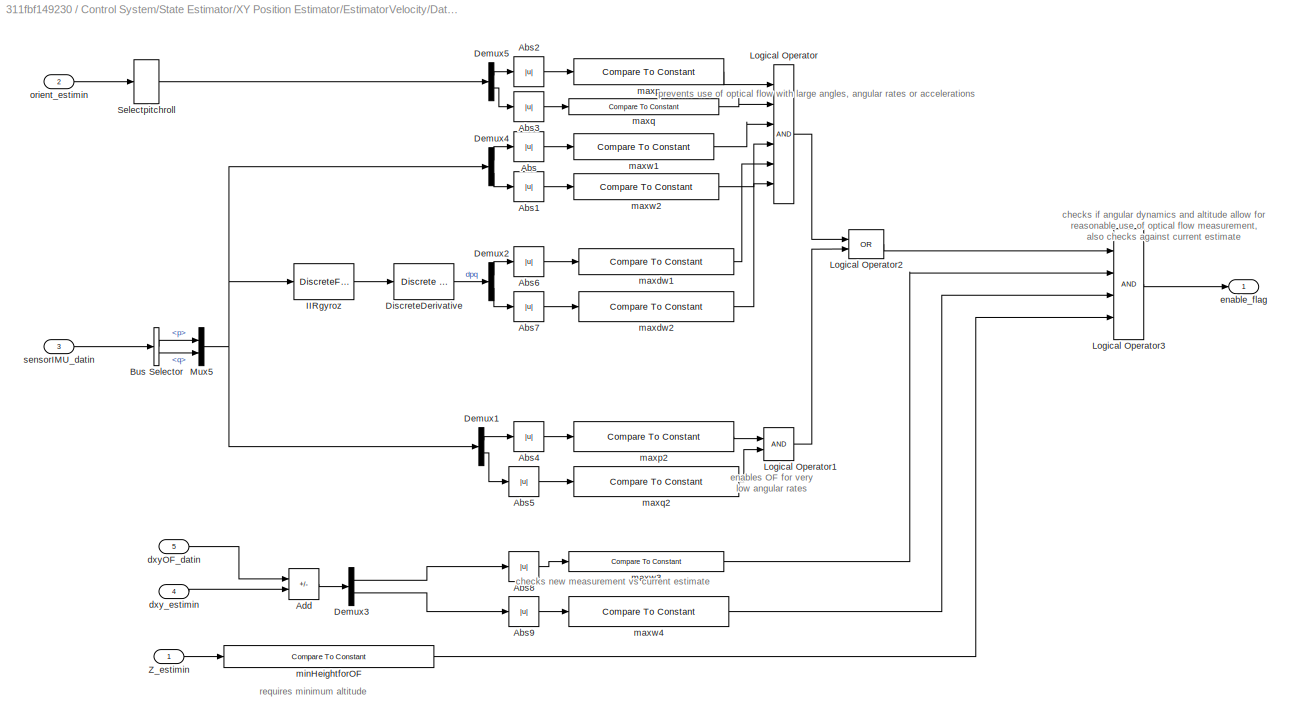
BLOCK [SubSystem] Control System/State Estimator/XY Position Estimator/EstimatorVelocity/DataHandling
BLOCK [Abs] Control System/State Estimator/XY Position Estimator/EstimatorVelocity/DataHandling/Abs
  SaturateOnIntegerOverflow = off
BLOCK [Abs] Control System/State Estimator/XY Position Estimator/EstimatorVelocity/DataHandling/Abs1
  SaturateOnIntegerOverflow = off
BLOCK [Abs] Control System/State Estimator/XY Position Estimator/EstimatorVelocity/DataHandling/Abs2
  SaturateOnIntegerOverflow = off
BLOCK [Abs] Control System/State Estimator/XY Position Estimator/EstimatorVelocity/DataHandling/Abs3
  SaturateOnIntegerOverflow = off
BLOCK [Abs] Control System/State Estimator/XY Position Estimator/EstimatorVelocity/DataHandling/Abs4
  SaturateOnIntegerOverflow = off
BLOCK [Abs] Control System/State Estimator/XY Position Estimator/EstimatorVelocity/DataHandling/Abs5
  SaturateOnIntegerOverflow = off
BLOCK [Abs] Control System/State Estimator/XY Position Estimator/EstimatorVelocity/DataHandling/Abs6
  SaturateOnIntegerOverflow = off
BLOCK [Abs] Control System/State Estimator/XY Position Estimator/EstimatorVelocity/DataHandling/Abs7
  SaturateOnIntegerOverflow = off
BLOCK [Abs] Control System/State Estimator/XY Position Estimator/EstimatorVelocity/DataHandling/Abs8
  SaturateOnIntegerOverflow = off
BLOCK [Abs] Control System/State Estimator/XY Position Estimator/EstimatorVelocity/DataHandling/Abs9
  SaturateOnIntegerOverflow = off
BLOCK [Sum] Control System/State Estimator/XY Position Estimator/EstimatorVelocity/DataHandling/Add
  IconShape = rectangular
  Inputs = -+
BLOCK [BusSelector] Control System/State Estimator/XY Position Estimator/EstimatorVelocity/DataHandling/Bus Selector
  OutputSignals = p,q
BLOCK [Demux] Control System/State Estimator/XY Position Estimator/EstimatorVelocity/DataHandling/Demux1
  Outputs = 2
BLOCK [Demux] Control System/State Estimator/XY Position Estimator/EstimatorVelocity/DataHandling/Demux2
  Outputs = 2
BLOCK [Demux] Control System/State Estimator/XY Position Estimator/EstimatorVelocity/DataHandling/Demux3
  Outputs = 2
BLOCK [Demux] Control System/State Estimator/XY Position Estimator/EstimatorVelocity/DataHandling/Demux4
  Outputs = 2
BLOCK [Demux] Control System/State Estimator/XY Position Estimator/EstimatorVelocity/DataHandling/Demux5
  Outputs = 2
BLOCK [Reference] Control System/State Estimator/XY Position Estimator/EstimatorVelocity/DataHandling/DiscreteDerivative  REF=simulink/Discrete/Discrete Derivative
  SourceBlock = simulink/Discrete/Discrete Derivative
  SourceType = Discrete Derivative
BLOCK [DiscreteFilter] Control System/State Estimator/XY Position Estimator/EstimatorVelocity/DataHandling/IIRgyroz
  Denominator = Estimator.IMU.filterGyroDen
  InputPortMap = u0
  Numerator = Estimator.IMU.filterGyroNum
BLOCK [Logic] Control System/State Estimator/XY Position Estimator/EstimatorVelocity/DataHandling/Logical Operator
  AllPortsSameDT = off
  Inputs = 6
  OutDataTypeStr = boolean
BLOCK [Logic] Control System/State Estimator/XY Position Estimator/EstimatorVelocity/DataHandling/Logical Operator1
  AllPortsSameDT = off
  OutDataTypeStr = boolean
BLOCK [Logic] Control System/State Estimator/XY Position Estimator/EstimatorVelocity/DataHandling/Logical Operator2
  AllPortsSameDT = off
  Operator = OR
  OutDataTypeStr = boolean
BLOCK [Logic] Control System/State Estimator/XY Position Estimator/EstimatorVelocity/DataHandling/Logical Operator3
  AllPortsSameDT = off
  Inputs = 4
  OutDataTypeStr = boolean
BLOCK [Mux] Control System/State Estimator/XY Position Estimator/EstimatorVelocity/DataHandling/Mux5
  DisplayOption = bar
  Inputs = 2
BLOCK [Selector] Control System/State Estimator/XY Position Estimator/EstimatorVelocity/DataHandling/Selectpitchroll
  IndexOptions = Index vector (dialog)
  Indices = [2 3]
  InputPortWidth = 3
  OutputSizes = 1
BLOCK [Inport] Control System/State Estimator/XY Position Estimator/EstimatorVelocity/DataHandling/Z_estimin
BLOCK [Inport] Control System/State Estimator/XY Position Estimator/EstimatorVelocity/DataHandling/dxyOF_datin
  Port = 5
BLOCK [Inport] Control System/State Estimator/XY Position Estimator/EstimatorVelocity/DataHandling/dxy_estimin
  Port = 4
BLOCK [Outport] Control System/State Estimator/XY Position Estimator/EstimatorVelocity/DataHandling/enable_flag
  VectorParamsAs1DForOutWhenUnconnected = off
BLOCK [Reference] Control System/State Estimator/XY Position Estimator/EstimatorVelocity/DataHandling/maxdw1  REF=simulink/Logic and Bit
Operations/Compare
To Constant
  SourceBlock = simulink/Logic and Bit\nOperations/Compare\nTo Constant
  SourceType = Compare To Constant
BLOCK [Reference] Control System/State Estimator/XY Position Estimator/EstimatorVelocity/DataHandling/maxdw2  REF=simulink/Logic and Bit
Operations/Compare
To Constant
  SourceBlock = simulink/Logic and Bit\nOperations/Compare\nTo Constant
  SourceType = Compare To Constant
BLOCK [Reference] Control System/State Estimator/XY Position Estimator/EstimatorVelocity/DataHandling/maxp  REF=simulink/Logic and Bit
Operations/Compare
To Constant
  SourceBlock = simulink/Logic and Bit\nOperations/Compare\nTo Constant
  SourceType = Compare To Constant
BLOCK [Reference] Control System/State Estimator/XY Position Estimator/EstimatorVelocity/DataHandling/maxp2  REF=simulink/Logic and Bit
Operations/Compare
To Constant
  SourceBlock = simulink/Logic and Bit\nOperations/Compare\nTo Constant
  SourceType = Compare To Constant
BLOCK [Reference] Control System/State Estimator/XY Position Estimator/EstimatorVelocity/DataHandling/maxq  REF=simulink/Logic and Bit
Operations/Compare
To Constant
  SourceBlock = simulink/Logic and Bit\nOperations/Compare\nTo Constant
  SourceType = Compare To Constant
BLOCK [Reference] Control System/State Estimator/XY Position Estimator/EstimatorVelocity/DataHandling/maxq2  REF=simulink/Logic and Bit
Operations/Compare
To Constant
  SourceBlock = simulink/Logic and Bit\nOperations/Compare\nTo Constant
  SourceType = Compare To Constant
BLOCK [Reference] Control System/State Estimator/XY Position Estimator/EstimatorVelocity/DataHandling/maxw1  REF=simulink/Logic and Bit
Operations/Compare
To Constant
  SourceBlock = simulink/Logic and Bit\nOperations/Compare\nTo Constant
  SourceType = Compare To Constant
BLOCK [Reference] Control System/State Estimator/XY Position Estimator/EstimatorVelocity/DataHandling/maxw2  REF=simulink/Logic and Bit
Operations/Compare
To Constant
  SourceBlock = simulink/Logic and Bit\nOperations/Compare\nTo Constant
  SourceType = Compare To Constant
BLOCK [Reference] Control System/State Estimator/XY Position Estimator/EstimatorVelocity/DataHandling/maxw3  REF=simulink/Logic and Bit
Operations/Compare
To Constant
  SourceBlock = simulink/Logic and Bit\nOperations/Compare\nTo Constant
  SourceType = Compare To Constant
BLOCK [Reference] Control System/State Estimator/XY Position Estimator/EstimatorVelocity/DataHandling/maxw4  REF=simulink/Logic and Bit
Operations/Compare
To Constant
  SourceBlock = simulink/Logic and Bit\nOperations/Compare\nTo Constant
  SourceType = Compare To Constant
BLOCK [Reference] Control System/State Estimator/XY Position Estimator/EstimatorVelocity/DataHandling/minHeightforOF  REF=simulink/Logic and Bit
Operations/Compare
To Constant
  SourceBlock = simulink/Logic and Bit\nOperations/Compare\nTo Constant
  SourceType = Compare To Constant
BLOCK [Inport] Control System/State Estimator/XY Position Estimator/EstimatorVelocity/DataHandling/orient_estimin
  Port = 2
BLOCK [Inport] Control System/State Estimator/XY Position Estimator/EstimatorVelocity/DataHandling/sensorIMU_datin
  Port = 3
BLOCK [Delay] Control System/State Estimator/XY Position Estimator/EstimatorVelocity/Delay
  DelayLength = 1
  InitialCondition = 0
  InputPortMap = u0
BLOCK [Reference] Control System/State Estimator/XY Position Estimator/EstimatorVelocity/KalmanFilter_dxdy  REF=ctrlSharedLib/Kalman Filter
  SourceBlock = ctrlSharedLib/Kalman Filter
  SourceType = ctrlKalmanFilter
BLOCK [Selector] Control System/State Estimator/XY Position Estimator/EstimatorVelocity/Selector1
  IndexOptions = Index vector (dialog)
  Indices = [1 2]
  InputPortWidth = 4
  OutputSizes = 1
BLOCK [Inport] Control System/State Estimator/XY Position Estimator/EstimatorVelocity/Z_estimin
  Port = 2
  SampleTime = Ts
BLOCK [InportShadow] Control System/State Estimator/XY Position Estimator/EstimatorVelocity/Z_estimin1
  Port = 2
  SampleTime = Ts
BLOCK [Inport] Control System/State Estimator/XY Position Estimator/EstimatorVelocity/angular velocity
  Port = 5
BLOCK [Sum] Control System/State Estimator/XY Position Estimator/EstimatorVelocity/angular velocity compensation
  IconShape = rectangular
BLOCK [Outport] Control System/State Estimator/XY Position Estimator/EstimatorVelocity/dxy_estimout
  VectorParamsAs1DForOutWhenUnconnected = off
BLOCK [Inport] Control System/State Estimator/XY Position Estimator/EstimatorVelocity/opticalFlow_datin
BLOCK [Inport] Control System/State Estimator/XY Position Estimator/EstimatorVelocity/orient_estimin
  Port = 4
BLOCK [Inport] Control System/State Estimator/XY Position Estimator/EstimatorVelocity/sensorIMU_datin
  Port = 3
BLOCK [SubSystem] Control System/State Estimator/XY Position Estimator/EstimatorVelocity/xy velocity w//o angular velocity compensation
BLOCK [Product] Control System/State Estimator/XY Position Estimator/EstimatorVelocity/xy velocity w//o angular velocity compensation/ 
  Inputs = **
BLOCK [Reference] Control System/State Estimator/XY Position Estimator/EstimatorVelocity/xy velocity w//o angular velocity compensation/Compare To Constant  REF=simulink/Logic and Bit
Operations/Compare
To Constant
  SourceBlock = simulink/Logic and Bit\nOperations/Compare\nTo Constant
  SourceType = Compare To Constant
BLOCK [Reference] Control System/State Estimator/XY Position Estimator/EstimatorVelocity/xy velocity w//o angular velocity compensation/Counter Free-Running  REF=simulink/Sources/Counter
Free-Running
  SourceBlock = simulink/Sources/Counter\nFree-Running
  SourceType = Counter Free-Running
BLOCK [Gain] Control System/State Estimator/XY Position Estimator/EstimatorVelocity/xy velocity w//o angular velocity compensation/Gain
  Gain = -1
BLOCK [Selector] Control System/State Estimator/XY Position Estimator/EstimatorVelocity/xy velocity w//o angular velocity compensation/Select dxy
  IndexOptions = Index vector (dialog)
  Indices = [1 2]
  InputPortWidth = 3
  OutputSizes = 1
BLOCK [Switch] Control System/State Estimator/XY Position Estimator/EstimatorVelocity/xy velocity w//o angular velocity compensation/Switch
  Criteria = u2 > Threshold
  InputSameDT = off
  SaturateOnIntegerOverflow = off
BLOCK [Gain] Control System/State Estimator/XY Position Estimator/EstimatorVelocity/xy velocity w//o angular velocity compensation/opticalFlowErrorCorrect
  Gain = 1.15
BLOCK [Inport] Control System/State Estimator/XY Position Estimator/EstimatorVelocity/xy velocity w//o angular velocity compensation/optical_flow
BLOCK [Outport] Control System/State Estimator/XY Position Estimator/EstimatorVelocity/xy velocity w//o angular velocity compensation/optical_flow_dx_dy
BLOCK [Inport] Control System/State Estimator/XY Position Estimator/EstimatorVelocity/xy velocity w//o angular velocity compensation/z_estimate
  Port = 2
BLOCK [SubSystem] Control System/State Estimator/XY Position Estimator/EstimatorXYPosition
BLOCK [Math] Control System/State Estimator/XY Position Estimator/EstimatorXYPosition/Math Function
  Operator = transpose
  SignedPower = on
BLOCK [Mux] Control System/State Estimator/XY Position Estimator/EstimatorXYPosition/Mux2
  DisplayOption = bar
  Inputs = 2
BLOCK [Product] Control System/State Estimator/XY Position Estimator/EstimatorXYPosition/Product
  Multiplication = Matrix(*)
BLOCK [Reference] Control System/State Estimator/XY Position Estimator/EstimatorXYPosition/Rotation Angles to Direction Cosine Matrix  REF=sharedtransform/Rotation Angles to
Direction Cosine Matrix
  AttributesFormatString = Rotation Order: %<rotationOrder>
  SourceBlock = sharedtransform/Rotation Angles to\nDirection Cosine Matrix
  SourceType = Ang2DCM
BLOCK [Selector] Control System/State Estimator/XY Position Estimator/EstimatorXYPosition/SelectdXY
  IndexOptions = Index vector (dialog)
  Indices = [1 2]
  InputPortWidth = 3
  OutputSizes = 1
BLOCK [DiscreteIntegrator] Control System/State Estimator/XY Position Estimator/EstimatorXYPosition/SimplyIntegrateVelocity
  ExternalReset = rising
  ICPrevOutput = DiscIntNeverNeededParam
  ICPrevScaledInput = DiscIntNeverNeededParam
  InitialConditionSetting = Auto
  SampleTime = Ts
BLOCK [Outport] Control System/State Estimator/XY Position Estimator/EstimatorXYPosition/XY_estimout
  VectorParamsAs1DForOutWhenUnconnected = off
BLOCK [Inport] Control System/State Estimator/XY Position Estimator/EstimatorXYPosition/controlModePosVSOrient_flagin
  Port = 3
BLOCK [Inport] Control System/State Estimator/XY Position Estimator/EstimatorXYPosition/dxy_estimin
BLOCK [Inport] Control System/State Estimator/XY Position Estimator/EstimatorXYPosition/dz_estimin
  Port = 4
BLOCK [Inport] Control System/State Estimator/XY Position Estimator/EstimatorXYPosition/orient_estimin
  NameLocation = top
  Port = 2
  SampleTime = Ts
BLOCK [Outport] Control System/State Estimator/XY Position Estimator/XY_estimout
  VectorParamsAs1DForOutWhenUnconnected = off
BLOCK [Inport] Control System/State Estimator/XY Position Estimator/Z_estimin
  Port = 4
BLOCK [Inport] Control System/State Estimator/XY Position Estimator/controlModePosVSOrient_flagin
  Port = 2
BLOCK [Outport] Control System/State Estimator/XY Position Estimator/dxy_estimout
  Port = 2
  VectorParamsAs1DForOutWhenUnconnected = off
BLOCK [Inport] Control System/State Estimator/XY Position Estimator/dz_estimin
  Port = 5
BLOCK [Inport] Control System/State Estimator/XY Position Estimator/opticalFlow_datin
BLOCK [Inport] Control System/State Estimator/XY Position Estimator/orient_estimin
  Port = 6
BLOCK [Inport] Control System/State Estimator/XY Position Estimator/sensorIMU_datin
  Port = 3
BLOCK [Inport] Control System/State Estimator/controlModePosVSOrient_flagin
  OutDataTypeStr = boolean
BLOCK [Inport] Control System/State Estimator/opticalFlow_datin
  Port = 3
BLOCK [Inport] Control System/State Estimator/sensorCalibration_datin
  Port = 4
BLOCK [Inport] Control System/State Estimator/sensor_data_in
  Port = 2
BLOCK [ToWorkspace] Control System/To Workspace
  FixptAsFi = on
  MaxDataPoints = inf
  SampleTime = -1
  SaveFormat = Structure With Time
  VariableName = estimatedStates
BLOCK [Inport] Control System/Vision-based Data
  Port = 3
BLOCK [Constant] Control System/controlModePosVsOrient
  OutDataTypeStr = boolean
BLOCK [Outport] Control System/motorCmds
  VectorParamsAs1DForOutWhenUnconnected = off
BLOCK [Outport] Flag
  OutDataTypeStr = uint8
  Port = 2
  PortDimensions = 1
  VectorParamsAs1DForOutWhenUnconnected = off
BLOCK [Inport] Image Data
  BusOutputAsStruct = on
  InitFcn = codertarget.parrot.internal.inportCallback(gcb);
  OutDataTypeStr = uint8
  Port = 3
  PortDimensions = [4 9600]
  Tag = IP_IN
BLOCK [SubSystem] Image Processing System
  InitFcn = codertarget.parrot.internal.ipSubsystemCallback(gcb);
  RTWFcnName = ImageFunction
  RTWFcnNameOpts = User specified
  RTWSystemCode = Inline
  SystemSampleTime = 40*Ts
  Tag = IP_SUB
  TreatAsAtomicUnit = on
  TreatAsGroupedWhenPropagatingVariantConditions = off
BLOCK [Constant] Image Processing System/CIRCLE_PTS
  Value = CIRCLE_PTS
BLOCK [Constant] Image Processing System/CIRCLE_SIZE
  Value = ZEROS
BLOCK [Reference] Image Processing System/Draw Circle  REF=visiontextngfix/Draw Shapes
  SourceBlock = visiontextngfix/Draw Shapes
  SourceType = Draw Shapes
BLOCK [Inport] Image Processing System/Image Data
BLOCK [Reference] Image Processing System/PARROT Image Conversion  REF=parrotlib/PARROT Image Conversion
  SourceBlock = parrotlib/PARROT Image Conversion
  SourceType = parrot.ImageProcess
BLOCK [SubSystem] Image Processing System/Red_
BLOCK [Sum] Image Processing System/Red_/Add
  IconShape = rectangular
  Inputs = +--
BLOCK [Product] Image Processing System/Red_/DivideBlue
  Inputs = */
BLOCK [Product] Image Processing System/Red_/DivideGreen
  Inputs = */
BLOCK [Constant] Image Processing System/Red_/Divider2
  Value = 2
BLOCK [Inport] Image Processing System/Red_/In1
BLOCK [Inport] Image Processing System/Red_/In2
  Port = 2
BLOCK [Inport] Image Processing System/Red_/In3
  Port = 3
BLOCK [Reference] Image Processing System/Red_/Red Threshold  REF=simulink/Logic and Bit
Operations/Compare
To Constant
  SourceBlock = simulink/Logic and Bit\nOperations/Compare\nTo Constant
  SourceType = Compare To Constant
BLOCK [Outport] Image Processing System/Red_/y
BLOCK [SubSystem] Image Processing System/Subsystem2
BLOCK [SubSystem] Image Processing System/Subsystem2/Display
  ErrorFcn = Stateflow.Translate.translate
  PermitHierarchicalResolution = ExplicitOnly
  SFBlockType = MATLAB Function
  TreatAsAtomicUnit = on
BLOCK [Demux] Image Processing System/Subsystem2/Display/ Demux 
  Outputs = 1
BLOCK [S-Function] Image Processing System/Subsystem2/Display/ SFunction 
  EnableBusSupport = on
  FunctionName = sf_sfun
  PortCounts = [5 4]
  SFcnIsStateOwnerBlock = off
  SFunctionDeploymentMode = off
  Tag = Stateflow S-Function 17
BLOCK [Terminator] Image Processing System/Subsystem2/Display/ Terminator 
BLOCK [Outport] Image Processing System/Subsystem2/Display/B
  Port = 3
BLOCK [Outport] Image Processing System/Subsystem2/Display/G
  Port = 2
BLOCK [Outport] Image Processing System/Subsystem2/Display/R
BLOCK [Inport] Image Processing System/Subsystem2/Display/b
  Port = 3
BLOCK [Inport] Image Processing System/Subsystem2/Display/g
  Port = 2
BLOCK [Inport] Image Processing System/Subsystem2/Display/r
BLOCK [Inport] Image Processing System/Subsystem2/Display/way_x
  Port = 4
BLOCK [Inport] Image Processing System/Subsystem2/Display/way_y
  Port = 5
BLOCK [Outport] Image Processing System/Subsystem2/Out1
BLOCK [VideoViewer] Image Processing System/Subsystem2/RGB Image
  FigPos = [132.2 816.4 730.4 526.4]
  ScopeSpecificationString = vipscopes.VideoViewerScopeCfg('CurrentConfiguration', extmgr.ConfigurationSet(extmgr.Configuration('Core','General UI',true),extmgr.Configuration('Core','Source UI',true),extmgr.Configuration('Sources','WiredSimulink',true),extmgr.Configuration('Visuals','Video',true),extmgr.Configuration('Tools','Image Navigation Tools',true,'Magnification',4),extmgr.Configuration('Tools','Image Tool',true),extmg...<+126ch>
  colormapValue = gray(256)
  imagePorts = separate color signals
BLOCK [SubSystem] Image Processing System/Subsystem2/Subsystem1
BLOCK [Sum] Image Processing System/Subsystem2/Subsystem1/Add_x
  IconShape = rectangular
BLOCK [Sum] Image Processing System/Subsystem2/Subsystem1/Add_y
  IconShape = rectangular
BLOCK [Constant] Image Processing System/Subsystem2/Subsystem1/Constant
  Value = 0
BLOCK [Constant] Image Processing System/Subsystem2/Subsystem1/DISTANCE
  Value = 16
BLOCK [DataStoreMemory] Image Processing System/Subsystem2/Subsystem1/Data Store Memory
  DataStoreName = Coord
  InitialValue = [0 0]
  ReadBeforeWriteMsg = warning
  ShowAdditionalParam = off
  WriteAfterReadMsg = warning
  WriteAfterWriteMsg = warning
BLOCK [DataStoreRead] Image Processing System/Subsystem2/Subsystem1/Data Store Read
  DataStoreName = Coord
  IndexOptions = Index vector (dialog)
  Indices = 1
  OutputSizes = 1
BLOCK [DataStoreRead] Image Processing System/Subsystem2/Subsystem1/Data Store Read1
  DataStoreName = Coord
  IndexOptions = Index vector (dialog)
  Indices = 1
  OutputSizes = 1
BLOCK [DataStoreWrite] Image Processing System/Subsystem2/Subsystem1/Data Store Write
  DataStoreName = Coord
  IndexOptions = Index vector (dialog)
  Indices = 1
  OutputSizes = 1
BLOCK [SubSystem] Image Processing System/Subsystem2/Subsystem1/Data_Editor
  ErrorFcn = Stateflow.Translate.translate
  PermitHierarchicalResolution = ExplicitOnly
  SFBlockType = MATLAB Function
  TreatAsAtomicUnit = on
BLOCK [Demux] Image Processing System/Subsystem2/Subsystem1/Data_Editor/ Demux 
  Outputs = 1
BLOCK [S-Function] Image Processing System/Subsystem2/Subsystem1/Data_Editor/ SFunction 
  EnableBusSupport = on
  FunctionName = sf_sfun
  PortCounts = [3 4]
  SFcnIsStateOwnerBlock = off
  SFunctionDeploymentMode = off
  Tag = Stateflow S-Function 19
BLOCK [Terminator] Image Processing System/Subsystem2/Subsystem1/Data_Editor/ Terminator 
BLOCK [Outport] Image Processing System/Subsystem2/Subsystem1/Data_Editor/currentX
  Port = 2
BLOCK [Outport] Image Processing System/Subsystem2/Subsystem1/Data_Editor/currentY
  Port = 3
BLOCK [Inport] Image Processing System/Subsystem2/Subsystem1/Data_Editor/destination
BLOCK [Inport] Image Processing System/Subsystem2/Subsystem1/Data_Editor/isRed
  Port = 2
BLOCK [Outport] Image Processing System/Subsystem2/Subsystem1/Data_Editor/outputWay
BLOCK [Inport] Image Processing System/Subsystem2/Subsystem1/Data_Editor/previousXY
  Port = 3
BLOCK [Mux] Image Processing System/Subsystem2/Subsystem1/Mux
  DisplayOption = bar
  Inputs = 2
BLOCK [Mux] Image Processing System/Subsystem2/Subsystem1/Mux1
  DisplayOption = bar
  Inputs = 3
BLOCK [Outport] Image Processing System/Subsystem2/Subsystem1/Out8
  Port = 4
BLOCK [Constant] Image Processing System/Subsystem2/Subsystem1/RANGE_REF
  Value = 70
BLOCK [SubSystem] Image Processing System/Subsystem2/Subsystem1/center_vector_x
  ErrorFcn = Stateflow.Translate.translate
  PermitHierarchicalResolution = ExplicitOnly
  SFBlockType = MATLAB Function
  TreatAsAtomicUnit = on
BLOCK [Demux] Image Processing System/Subsystem2/Subsystem1/center_vector_x/ Demux 
  Outputs = 1
BLOCK [S-Function] Image Processing System/Subsystem2/Subsystem1/center_vector_x/ SFunction 
  EnableBusSupport = on
  FunctionName = sf_sfun
  PortCounts = [1 2]
  SFcnIsStateOwnerBlock = off
  SFunctionDeploymentMode = off
  Tag = Stateflow S-Function 7
BLOCK [Terminator] Image Processing System/Subsystem2/Subsystem1/center_vector_x/ Terminator 
BLOCK [Inport] Image Processing System/Subsystem2/Subsystem1/center_vector_x/image
BLOCK [Outport] Image Processing System/Subsystem2/Subsystem1/center_vector_x/slide_x
BLOCK [SubSystem] Image Processing System/Subsystem2/Subsystem1/center_vector_y
  ErrorFcn = Stateflow.Translate.translate
  PermitHierarchicalResolution = ExplicitOnly
  SFBlockType = MATLAB Function
  TreatAsAtomicUnit = on
BLOCK [Demux] Image Processing System/Subsystem2/Subsystem1/center_vector_y/ Demux 
  Outputs = 1
BLOCK [S-Function] Image Processing System/Subsystem2/Subsystem1/center_vector_y/ SFunction 
  EnableBusSupport = on
  FunctionName = sf_sfun
  PortCounts = [1 2]
  SFcnIsStateOwnerBlock = off
  SFunctionDeploymentMode = off
  Tag = Stateflow S-Function 13
BLOCK [Terminator] Image Processing System/Subsystem2/Subsystem1/center_vector_y/ Terminator 
BLOCK [Inport] Image Processing System/Subsystem2/Subsystem1/center_vector_y/image
BLOCK [Outport] Image Processing System/Subsystem2/Subsystem1/center_vector_y/slide_y
BLOCK [SubSystem] Image Processing System/Subsystem2/Subsystem1/check_last_way
  ErrorFcn = Stateflow.Translate.translate
  PermitHierarchicalResolution = ExplicitOnly
  SFBlockType = MATLAB Function
  TreatAsAtomicUnit = on
BLOCK [Demux] Image Processing System/Subsystem2/Subsystem1/check_last_way/ Demux 
  Outputs = 1
BLOCK [S-Function] Image Processing System/Subsystem2/Subsystem1/check_last_way/ SFunction 
  EnableBusSupport = on
  FunctionName = sf_sfun
  PortCounts = [3 4]
  SFcnIsStateOwnerBlock = off
  SFunctionDeploymentMode = off
  Tag = Stateflow S-Function 15
BLOCK [Terminator] Image Processing System/Subsystem2/Subsystem1/check_last_way/ Terminator 
BLOCK [Inport] Image Processing System/Subsystem2/Subsystem1/check_last_way/distanceThreshold
  Port = 3
BLOCK [Inport] Image Processing System/Subsystem2/Subsystem1/check_last_way/imageData
BLOCK [Outport] Image Processing System/Subsystem2/Subsystem1/check_last_way/isRedPixel
  Port = 2
BLOCK [Inport] Image Processing System/Subsystem2/Subsystem1/check_last_way/lastPosition
  Port = 2
BLOCK [Outport] Image Processing System/Subsystem2/Subsystem1/check_last_way/movement
  Port = 3
BLOCK [Outport] Image Processing System/Subsystem2/Subsystem1/check_last_way/scanStatus
BLOCK [Outport] Image Processing System/Subsystem2/Subsystem1/currentX
BLOCK [Outport] Image Processing System/Subsystem2/Subsystem1/currentY
  Port = 2
BLOCK [Inport] Image Processing System/Subsystem2/Subsystem1/imageData
  Port = 3
BLOCK [Outport] Image Processing System/Subsystem2/Subsystem1/lastPosition
  Port = 3
BLOCK [Inport] Image Processing System/Subsystem2/Subsystem1/newX
BLOCK [Inport] Image Processing System/Subsystem2/Subsystem1/newY
  Port = 2
BLOCK [SubSystem] Image Processing System/Subsystem2/Subsystem1/range_points
  ErrorFcn = Stateflow.Translate.translate
  PermitHierarchicalResolution = ExplicitOnly
  SFBlockType = MATLAB Function
  TreatAsAtomicUnit = on
BLOCK [Demux] Image Processing System/Subsystem2/Subsystem1/range_points/ Demux 
  Outputs = 1
BLOCK [S-Function] Image Processing System/Subsystem2/Subsystem1/range_points/ SFunction 
  EnableBusSupport = on
  FunctionName = sf_sfun
  PortCounts = [3 5]
  SFcnIsStateOwnerBlock = off
  SFunctionDeploymentMode = off
  Tag = Stateflow S-Function 8
BLOCK [Terminator] Image Processing System/Subsystem2/Subsystem1/range_points/ Terminator 
BLOCK [Outport] Image Processing System/Subsystem2/Subsystem1/range_points/endX
  Port = 3
BLOCK [Outport] Image Processing System/Subsystem2/Subsystem1/range_points/endY
  Port = 4
BLOCK [Inport] Image Processing System/Subsystem2/Subsystem1/range_points/newX
BLOCK [Inport] Image Processing System/Subsystem2/Subsystem1/range_points/newY
  Port = 2
BLOCK [Inport] Image Processing System/Subsystem2/Subsystem1/range_points/reference
  Port = 3
BLOCK [Outport] Image Processing System/Subsystem2/Subsystem1/range_points/startX
BLOCK [Outport] Image Processing System/Subsystem2/Subsystem1/range_points/startY
  Port = 2
BLOCK [SubSystem] Image Processing System/Subsystem2/Subsystem1/scan_range
  ErrorFcn = Stateflow.Translate.translate
  PermitHierarchicalResolution = ExplicitOnly
  SFBlockType = MATLAB Function
  TreatAsAtomicUnit = on
BLOCK [Demux] Image Processing System/Subsystem2/Subsystem1/scan_range/ Demux 
  Outputs = 1
BLOCK [S-Function] Image Processing System/Subsystem2/Subsystem1/scan_range/ SFunction 
  EnableBusSupport = on
  FunctionName = sf_sfun
  PortCounts = [6 2]
  SFcnIsStateOwnerBlock = off
  SFunctionDeploymentMode = off
  Tag = Stateflow S-Function 14
BLOCK [Terminator] Image Processing System/Subsystem2/Subsystem1/scan_range/ Terminator 
BLOCK [Inport] Image Processing System/Subsystem2/Subsystem1/scan_range/endX
  Port = 4
BLOCK [Inport] Image Processing System/Subsystem2/Subsystem1/scan_range/endY
  Port = 5
BLOCK [Inport] Image Processing System/Subsystem2/Subsystem1/scan_range/isScanning
  Port = 6
BLOCK [Outport] Image Processing System/Subsystem2/Subsystem1/scan_range/result
BLOCK [Inport] Image Processing System/Subsystem2/Subsystem1/scan_range/startX
  Port = 2
BLOCK [Inport] Image Processing System/Subsystem2/Subsystem1/scan_range/startY
  Port = 3
BLOCK [Inport] Image Processing System/Subsystem2/Subsystem1/scan_range/u
BLOCK [SubSystem] Image Processing System/Subsystem2/Subsystem1/speed_Manage
  ErrorFcn = Stateflow.Translate.translate
  PermitHierarchicalResolution = ExplicitOnly
  SFBlockType = MATLAB Function
  TreatAsAtomicUnit = on
BLOCK [Demux] Image Processing System/Subsystem2/Subsystem1/speed_Manage/ Demux 
  Outputs = 1
BLOCK [S-Function] Image Processing System/Subsystem2/Subsystem1/speed_Manage/ SFunction 
  EnableBusSupport = on
  FunctionName = sf_sfun
  PortCounts = [1 3]
  SFcnIsStateOwnerBlock = off
  SFunctionDeploymentMode = off
  Tag = Stateflow S-Function 4
BLOCK [Terminator] Image Processing System/Subsystem2/Subsystem1/speed_Manage/ Terminator 
BLOCK [Outport] Image Processing System/Subsystem2/Subsystem1/speed_Manage/adjustedX
BLOCK [Outport] Image Processing System/Subsystem2/Subsystem1/speed_Manage/adjustedY
  Port = 2
BLOCK [Inport] Image Processing System/Subsystem2/Subsystem1/speed_Manage/inputWay
BLOCK [Switch] Image Processing System/Subsystem2/Subsystem1/switch_way
  Criteria = u2 > Threshold
  InputSameDT = off
  SaturateOnIntegerOverflow = off
BLOCK [Inport] Image Processing System/Subsystem2/b
  Port = 3
BLOCK [Inport] Image Processing System/Subsystem2/g
  Port = 2
BLOCK [Inport] Image Processing System/Subsystem2/imageData
  Port = 4
BLOCK [SubSystem] Image Processing System/Subsystem2/opposite_way
  ErrorFcn = Stateflow.Translate.translate
  PermitHierarchicalResolution = ExplicitOnly
  SFBlockType = MATLAB Function
  TreatAsAtomicUnit = on
BLOCK [Demux] Image Processing System/Subsystem2/opposite_way/ Demux 
  Outputs = 1
BLOCK [S-Function] Image Processing System/Subsystem2/opposite_way/ SFunction 
  EnableBusSupport = on
  FunctionName = sf_sfun
  PortCounts = [1 3]
  SFcnIsStateOwnerBlock = off
  SFunctionDeploymentMode = off
  Tag = Stateflow S-Function 6
BLOCK [Terminator] Image Processing System/Subsystem2/opposite_way/ Terminator 
BLOCK [Inport] Image Processing System/Subsystem2/opposite_way/currentPosition
BLOCK [Outport] Image Processing System/Subsystem2/opposite_way/newX
BLOCK [Outport] Image Processing System/Subsystem2/opposite_way/newY
  Port = 2
BLOCK [Inport] Image Processing System/Subsystem2/r
BLOCK [Switch] Image Processing System/Switch
  Criteria = u2 > Threshold
  InputSameDT = off
  SaturateOnIntegerOverflow = off
BLOCK [Outport] Image Processing System/Vision-based Data
  VectorParamsAs1DForOutWhenUnconnected = off
BLOCK [SubSystem] Image Processing System/circle_detection
  ErrorFcn = Stateflow.Translate.translate
  PermitHierarchicalResolution = ExplicitOnly
  SFBlockType = MATLAB Function
  TreatAsAtomicUnit = on
BLOCK [Demux] Image Processing System/circle_detection/ Demux 
  Outputs = 1
BLOCK [S-Function] Image Processing System/circle_detection/ SFunction 
  EnableBusSupport = on
  FunctionName = sf_sfun
  PortCounts = [2 3]
  SFcnIsStateOwnerBlock = off
  SFunctionDeploymentMode = off
  Tag = Stateflow S-Function 16
BLOCK [Terminator] Image Processing System/circle_detection/ Terminator 
BLOCK [Outport] Image Processing System/circle_detection/direction
BLOCK [Inport] Image Processing System/circle_detection/image
  Port = 2
BLOCK [Outport] Image Processing System/circle_detection/isDetected
  Port = 2
BLOCK [Inport] Image Processing System/circle_detection/template
BLOCK [RateTransition] Rate Transition
  Deterministic = off
BLOCK [Inport] Sensors
  BusOutputAsStruct = on
  OutDataTypeStr = Bus: SensorsBus
  Port = 2
ANNOTATION (root): <copyright redacted>
ANNOTATION (root): Flight Control System
ANNOTATION Control System: Derived from the work by Sertac Karaman and Fabian Riether
ANNOTATION Control System: Position or Orientation Control
ANNOTATION Control System: Use this subsystem to change the path of the Minidrone depending on the input Vision-based Data
ANNOTATION Control System/Controller/Altitude Controller: ALTITUDE CONTROLLER
ANNOTATION Control System/Controller/Altitude Controller: PID Controller for Altitude
ANNOTATION Control System/Controller/Attitude Controller: ATTITUDE CONTROL
ANNOTATION Control System/Controller/Attitude Controller: Inner loop PID controls angular velocity
ANNOTATION Control System/Controller/Attitude Controller: Outer Proportional loop controls the pitch and roll angle
ANNOTATION Control System/Controller/Position Controller: Inner loop controls linear velocity error
ANNOTATION Control System/Controller/Position Controller: Outer loop controls the position error
ANNOTATION Control System/Controller/Position Controller: Position controller requires good estimate of Yaw orientation to work properly. Incase position control is not needed, the outer loop can be removed and velocity setpoint can be given directly
ANNOTATION Control System/Controller/Yaw Controller: Yaw angle is not constrained between -180 to 180 degrees
ANNOTATION Control System/Controller/Yaw Controller: Yaw estimation is done solely using the gyroscope and it may drift with time.
ANNOTATION Control System/Path Planning: Estimated values from the State Estimator
ANNOTATION Control System/State Estimator: Derived frrom the work by Sertac Karaman and Fabian Riether
ANNOTATION Control System/State Estimator/Attitude Estimator: This estimator algorithm is developed for linearized kinematic model (model is linearized about hovering condition) This estimator may not work for large angle / aggressive maneuvers.
ANNOTATION Control System/State Estimator/Attitude Estimator: ACCELEROMETER CHECK
ANNOTATION Control System/State Estimator/Attitude Estimator/Pitch_Kalman: Gyroscope's bias is susceptible to factors like "temperature" and "Gyro bias stability" and it can vary during the flight. It is therefore estimated using this Kalman filter making use of Accelerometer data
ANNOTATION Control System/State Estimator/Attitude Estimator/Pitch_Kalman: Linear Kalman filter is used for the Pitch and Roll estimation. The states are the corresponding Euler angle and Angular rate bias respectively
ANNOTATION Control System/State Estimator/Attitude Estimator/Roll_Kalman: Gyroscope's bias is susceptible to factors like "temperature" and "Gyro bias stability" and it can vary during the flight. It is therefore estimated using the Kalman filter making use of accelerometer data
ANNOTATION Control System/State Estimator/Attitude Estimator/Roll_Kalman: Linear Kalman filter is used for the Pitch and Roll estimation. The states are the corresponding Euler angle and Angular rate bias respectively
ANNOTATION Control System/State Estimator/Attitude Estimator/Yaw_integrator: Currently yaw angle is obtained solely by integrating the gyroscope output. This yaw estimate can drift with time.
ANNOTATION Control System/State Estimator/Attitude Estimator/Yaw_integrator: Yaw angle is not constrained between -180 to 180 degrees
ANNOTATION Control System/State Estimator/SensorPreprocessing: IMU
ANNOTATION Control System/State Estimator/SensorPreprocessing/Temperature Compensation: Gyroscope's bias is affected by temperature.This won't be a problem for Pitch and Roll angle estimation as the actual gyroscope bias in the Pitch and Roll axis are estimated during the flight. However the yaw orientation is obtained by integrating the gyroscope output and it may drift with time. Even the preflight calibration which is done cannot compensate for this problem as the gyro bis varies ...<+18ch>
ANNOTATION Control System/State Estimator/XY Position Estimator/EstimatorVelocity/Angular velocity compensation for optical flow: Optical flow readings are affected by both linear and angular velocity of the drone. We need to subtract the effect of angular velocity before using the flow data
ANNOTATION Control System/State Estimator/XY Position Estimator/EstimatorVelocity/DataHandling: checks if angular dynamics and altitude allow for reasonable use of optical flow measurement, also checks against current estimate
ANNOTATION Control System/State Estimator/XY Position Estimator/EstimatorVelocity/DataHandling: checks new measurement vs current estimate
ANNOTATION Control System/State Estimator/XY Position Estimator/EstimatorVelocity/DataHandling: enables OF for very low angular rates
ANNOTATION Control System/State Estimator/XY Position Estimator/EstimatorVelocity/DataHandling: prevents use of optical flow with large angles, angular rates or accelerations
ANNOTATION Control System/State Estimator/XY Position Estimator/EstimatorVelocity/DataHandling: requires minimum altitude
ANNOTATION Control System/State Estimator/XY Position Estimator/EstimatorVelocity/xy velocity w//o angular velocity compensation: Optical flow raw readings are converted to velocity in m/s based on the estimated altitude
ANNOTATION Control System/State Estimator/XY Position Estimator/EstimatorXYPosition: Switching from orientationControl to Position control reset the current world position estimate (happens when using no markers)
ANNOTATION Image Processing System: Obtain the RGB image from camera
LINE AC cmd:1 -> Control System:1
LINE Control System/Bus Selector1:1 -> Control System/State Estimator:3
LINE Control System/Bus Selector4:1 -> Control System/Bus Selector1:1
LINE Control System/Bus Selector4:2 -> Control System/State Estimator:4
LINE Control System/Control Mode Update:1 -> Control System/Path Planning:1
LINE Control System/Controller/Altitude Controller/Bus Selector1:1 -> Control System/Controller/Altitude Controller/Sum2:2
LINE Control System/Controller/Altitude Controller/Bus Selector1:2 -> Control System/Controller/Altitude Controller/D_z1:1
NET Control System/Controller/Altitude Controller/Compare To Constant:1 -> Control System/Controller/Altitude Controller/Discrete-Time Integrator:2, Control System/Controller/Altitude Controller/TakeoffOrControl_Switch1:2
LINE Control System/Controller/Altitude Controller/Counter Free-Running:1 -> Control System/Controller/Altitude Controller/Compare To Constant:1
LINE Control System/Controller/Altitude Controller/D_z1:1 -> Control System/Controller/Altitude Controller/Sum1:3
LINE Control System/Controller/Altitude Controller/Discrete-Time Integrator:1 -> Control System/Controller/Altitude Controller/Sum1:1
LINE Control System/Controller/Altitude Controller/I_pr:1 -> Control System/Controller/Altitude Controller/Discrete-Time Integrator:1
LINE Control System/Controller/Altitude Controller/P_z1:1 -> Control System/Controller/Altitude Controller/Sum1:2
LINE Control System/Controller/Altitude Controller/PosZ:1 -> Control System/Controller/Altitude Controller/Sum2:1
LINE Control System/Controller/Altitude Controller/SaturationThrust1:1 -> Control System/Controller/Altitude Controller/altitude_cmd:1
LINE Control System/Controller/Altitude Controller/Sum1:1 -> Control System/Controller/Altitude Controller/TakeoffOrControl_Switch1:3
NET Control System/Controller/Altitude Controller/Sum2:1 -> Control System/Controller/Altitude Controller/I_pr:1, Control System/Controller/Altitude Controller/P_z1:1
LINE Control System/Controller/Altitude Controller/Sum5:1 -> Control System/Controller/Altitude Controller/SaturationThrust1:1
LINE Control System/Controller/Altitude Controller/TakeoffOrControl_Switch1:1 -> Control System/Controller/Altitude Controller/Sum5:2
LINE Control System/Controller/Altitude Controller/states_estim:1 -> Control System/Controller/Altitude Controller/Bus Selector1:1
LINE Control System/Controller/Altitude Controller/takeoff_flag:1 -> Control System/Controller/Altitude Controller/Terminator:1
LINE Control System/Controller/Altitude Controller/takeoff_gain1:1 -> Control System/Controller/Altitude Controller/TakeoffOrControl_Switch1:1
NET Control System/Controller/Altitude Controller/w1:1 -> Control System/Controller/Altitude Controller/Sum5:1, Control System/Controller/Altitude Controller/takeoff_gain1:1
LINE Control System/Controller/Altitude Controller:1 -> Control System/Controller/ControlMixer:4
LINE Control System/Controller/Attitude Controller/Angle control loop:1 -> Control System/Controller/Attitude Controller/Sum1:1
LINE Control System/Controller/Attitude Controller/Angular velocity control loop:1 -> Control System/Controller/Attitude Controller/Demux1:1
LINE Control System/Controller/Attitude Controller/Bus Selector1:1 -> Control System/Controller/Attitude Controller/Mux2:1
LINE Control System/Controller/Attitude Controller/Bus Selector1:2 -> Control System/Controller/Attitude Controller/Mux2:2
LINE Control System/Controller/Attitude Controller/Bus Selector3:1 -> Control System/Controller/Attitude Controller/Mux:1
LINE Control System/Controller/Attitude Controller/Bus Selector3:2 -> Control System/Controller/Attitude Controller/Mux:2
LINE Control System/Controller/Attitude Controller/Demux1:1 -> Control System/Controller/Attitude Controller/tau_pitch:1
LINE Control System/Controller/Attitude Controller/Demux1:2 -> Control System/Controller/Attitude Controller/tau_roll:1
LINE Control System/Controller/Attitude Controller/Mux2:1 -> Control System/Controller/Attitude Controller/Sum1:2
LINE Control System/Controller/Attitude Controller/Mux:1 -> Control System/Controller/Attitude Controller/Sum19:2
LINE Control System/Controller/Attitude Controller/Sum19:1 -> Control System/Controller/Attitude Controller/Angle control loop:1
LINE Control System/Controller/Attitude Controller/Sum1:1 -> Control System/Controller/Attitude Controller/Angular velocity control loop:1
LINE Control System/Controller/Attitude Controller/refAttitude:1 -> Control System/Controller/Attitude Controller/Sum19:1
NET Control System/Controller/Attitude Controller/states_estim:1 -> Control System/Controller/Attitude Controller/Bus Selector1:1, Control System/Controller/Attitude Controller/Bus Selector3:1
LINE Control System/Controller/Attitude Controller:1 -> Control System/Controller/ControlMixer:1
LINE Control System/Controller/Attitude Controller:2 -> Control System/Controller/ControlMixer:2
LINE Control System/Controller/ControlMixer/Add:1 -> Control System/Controller/ControlMixer/Variant Source:2
LINE Control System/Controller/ControlMixer/Manual Switch:1 -> Control System/Controller/ControlMixer/Add:2
LINE Control System/Controller/ControlMixer/Mux2:1 -> Control System/Controller/ControlMixer/Product:2
LINE Control System/Controller/ControlMixer/Pitch correction:1 -> Control System/Controller/ControlMixer/Manual Switch:1
LINE Control System/Controller/ControlMixer/Product:1 -> Control System/Controller/ControlMixer/thrusts_refout:1
LINE Control System/Controller/ControlMixer/TorqueTotalThrustToThrustPerMotor:1 -> Control System/Controller/ControlMixer/Product:1
LINE Control System/Controller/ControlMixer/Variant Source:1 -> Control System/Controller/ControlMixer/Mux2:3
NET Control System/Controller/ControlMixer/tau_pitch:1 -> Control System/Controller/ControlMixer/Add:1, Control System/Controller/ControlMixer/Variant Source:1
LINE Control System/Controller/ControlMixer/tau_roll:1 -> Control System/Controller/ControlMixer/Mux2:4
LINE Control System/Controller/ControlMixer/tau_yaw:1 -> Control System/Controller/ControlMixer/Mux2:2
LINE Control System/Controller/ControlMixer/totalThrust:1 -> Control System/Controller/ControlMixer/Mux2:1
LINE Control System/Controller/ControlMixer/zero correction:1 -> Control System/Controller/ControlMixer/Manual Switch:2
LINE Control System/Controller/ControlMixer:1 -> Control System/Controller/thrustsToMotorCommands:1
LINE Control System/Controller/In Bus Element1:1 -> Control System/Controller/Switch_refAtt:2
LINE Control System/Controller/In Bus Element2:1 -> Control System/Controller/Selector3:1
LINE Control System/Controller/In Bus Element3:1 -> Control System/Controller/Altitude Controller:3
LINE Control System/Controller/In Bus Element5:1 -> Control System/Controller/Selector:1
LINE Control System/Controller/In Bus Element6:1 -> Control System/Controller/Selector2:1
LINE Control System/Controller/In Bus Element:1 -> Control System/Controller/Selector1:1
LINE Control System/Controller/Position Controller/Bus Selector1:1 -> Control System/Controller/Position Controller/Mux:1
LINE Control System/Controller/Position Controller/Bus Selector1:2 -> Control System/Controller/Position Controller/Mux:2
LINE Control System/Controller/Position Controller/Bus Selector2:1 -> Control System/Controller/Position Controller/Mux1:1
LINE Control System/Controller/Position Controller/Bus Selector2:2 -> Control System/Controller/Position Controller/Mux1:2
LINE Control System/Controller/Position Controller/Bus Selector3:1 -> Control System/Controller/Position Controller/Position error transformation (Earth to Body frame):1
LINE Control System/Controller/Position Controller/Gain:1 -> Control System/Controller/Position Controller/pitch_roll_cmd:1
LINE Control System/Controller/Position Controller/LPF 8Hz Cutoff Filter to avoid oscillations induced by position controller:1 -> Control System/Controller/Position Controller/Gain:1
LINE Control System/Controller/Position Controller/Mux1:1 -> Control System/Controller/Position Controller/Sum19:2
LINE Control System/Controller/Position Controller/Mux:1 -> Control System/Controller/Position Controller/Sum1:2
LINE Control System/Controller/Position Controller/Position controller:1 -> Control System/Controller/Position Controller/Sum19:1
LINE Control System/Controller/Position Controller/Position error transformation (Earth to Body frame):1 -> Control System/Controller/Position Controller/Position controller:1
LINE Control System/Controller/Position Controller/Sum19:1 -> Control System/Controller/Position Controller/Velocity controller:1
LINE Control System/Controller/Position Controller/Sum1:1 -> Control System/Controller/Position Controller/Position error transformation (Earth to Body frame):2
LINE Control System/Controller/Position Controller/Velocity controller:1 -> Control System/Controller/Position Controller/LPF 8Hz Cutoff Filter to avoid oscillations induced by position controller:1
LINE Control System/Controller/Position Controller/posXY:1 -> Control System/Controller/Position Controller/Sum1:1
NET Control System/Controller/Position Controller/states_estim:1 -> Control System/Controller/Position Controller/Bus Selector1:1, Control System/Controller/Position Controller/Bus Selector2:1, Control System/Controller/Position Controller/Bus Selector3:1
LINE Control System/Controller/Position Controller:1 -> Control System/Controller/Switch_refAtt:1
LINE Control System/Controller/Selector1:1 -> Control System/Controller/Position Controller:1
LINE Control System/Controller/Selector2:1 -> Control System/Controller/Switch_refAtt:3
LINE Control System/Controller/Selector3:1 -> Control System/Controller/Yaw Controller:1
LINE Control System/Controller/Selector:1 -> Control System/Controller/Altitude Controller:2
LINE Control System/Controller/Switch_refAtt:1 -> Control System/Controller/Attitude Controller:1
LINE Control System/Controller/Yaw Controller/Bus Selector1:1 -> Control System/Controller/Yaw Controller/D_yaw:1
LINE Control System/Controller/Yaw Controller/Bus Selector5:1 -> Control System/Controller/Yaw Controller/Sum1:2
LINE Control System/Controller/Yaw Controller/D_yaw:1 -> Control System/Controller/Yaw Controller/Sum2:3
LINE Control System/Controller/Yaw Controller/Discrete-Time Integrator:1 -> Control System/Controller/Yaw Controller/Sum2:2
LINE Control System/Controller/Yaw Controller/I_yaw:1 -> Control System/Controller/Yaw Controller/Discrete-Time Integrator:1
LINE Control System/Controller/Yaw Controller/P_yaw:1 -> Control System/Controller/Yaw Controller/Sum2:1
NET Control System/Controller/Yaw Controller/Saturation:1 -> Control System/Controller/Yaw Controller/I_yaw:1, Control System/Controller/Yaw Controller/P_yaw:1
LINE Control System/Controller/Yaw Controller/Sum1:1 -> Control System/Controller/Yaw Controller/Saturation:1
LINE Control System/Controller/Yaw Controller/Sum2:1 -> Control System/Controller/Yaw Controller/tau_yaw:1
NET Control System/Controller/Yaw Controller/states_estim:1 -> Control System/Controller/Yaw Controller/Bus Selector1:1, Control System/Controller/Yaw Controller/Bus Selector5:1
LINE Control System/Controller/Yaw Controller/yaw_ref:1 -> Control System/Controller/Yaw Controller/Sum1:1
LINE Control System/Controller/Yaw Controller:1 -> Control System/Controller/ControlMixer:3
LINE Control System/Controller/states_estim1:1 -> Control System/Controller/Altitude Controller:1
LINE Control System/Controller/states_estim2:1 -> Control System/Controller/Attitude Controller:2
LINE Control System/Controller/states_estim3:1 -> Control System/Controller/Position Controller:2
LINE Control System/Controller/states_estim:1 -> Control System/Controller/Yaw Controller:2
LINE Control System/Controller/thrustsToMotorCommands/MotorDirections:1 -> Control System/Controller/thrustsToMotorCommands/motors_cmdout:1
LINE Control System/Controller/thrustsToMotorCommands/Saturation5:1 -> Control System/Controller/thrustsToMotorCommands/MotorDirections:1
LINE Control System/Controller/thrustsToMotorCommands/ThrustToMotorCommand:1 -> Control System/Controller/thrustsToMotorCommands/Saturation5:1
LINE Control System/Controller/thrustsToMotorCommands/thrusts_refin:1 -> Control System/Controller/thrustsToMotorCommands/ThrustToMotorCommand:1
LINE Control System/Controller/thrustsToMotorCommands:1 -> Control System/Controller/motors_refout:1
LINE Control System/Controller:1 -> Control System/motorCmds:1
LINE Control System/Crash Predictor Flags/         :1 -> Control System/Crash Predictor Flags/Abs  :1
LINE Control System/Crash Predictor Flags/    :1 -> Control System/Crash Predictor Flags/         :3
NET Control System/Crash Predictor Flags/   :1 -> Control System/Crash Predictor Flags/  :1, Control System/Crash Predictor Flags/Add:1
LINE Control System/Crash Predictor Flags/  :1 -> Control System/Crash Predictor Flags/Add:2
LINE Control System/Crash Predictor Flags/ :1 -> Control System/Crash Predictor Flags/Switch:3
LINE Control System/Crash Predictor Flags/0.5 meters:1 -> Control System/Crash Predictor Flags/GreaterThan  :2
LINE Control System/Crash Predictor Flags/50 continuous OF errors :1 -> Control System/Crash Predictor Flags/Data Type Conversion2:1
LINE Control System/Crash Predictor Flags/Abs  :1 -> Control System/Crash Predictor Flags/GreaterThan  :1
LINE Control System/Crash Predictor Flags/Abs1:1 -> Control System/Crash Predictor Flags/Compare To Constant1:1
LINE Control System/Crash Predictor Flags/Abs2:1 -> Control System/Crash Predictor Flags/Compare To Constant2:1
LINE Control System/Crash Predictor Flags/Abs3:1 -> Control System/Crash Predictor Flags/Compare To Constant3:1
LINE Control System/Crash Predictor Flags/Abs4:1 -> Control System/Crash Predictor Flags/Compare To Constant4:1
LINE Control System/Crash Predictor Flags/Abs5:1 -> Control System/Crash Predictor Flags/Compare To Constant5:1
LINE Control System/Crash Predictor Flags/Abs:1 -> Control System/Crash Predictor Flags/Compare To Constant:1
NET Control System/Crash Predictor Flags/Add:1 -> Control System/Crash Predictor Flags/50 continuous OF errors :1, Control System/Crash Predictor Flags/Delay One Step:1
LINE Control System/Crash Predictor Flags/Alt_prs:1 -> Control System/Crash Predictor Flags/Difference between sonar and pressure:2
LINE Control System/Crash Predictor Flags/Bus Selector1:1 -> Control System/Crash Predictor Flags/Bus Selector:1
LINE Control System/Crash Predictor Flags/Bus Selector2:1 -> Control System/Crash Predictor Flags/Difference between sonar and pressure:1
LINE Control System/Crash Predictor Flags/Bus Selector4:1 -> Control System/Crash Predictor Flags/Abs:1
LINE Control System/Crash Predictor Flags/Bus Selector4:2 -> Control System/Crash Predictor Flags/Abs1:1
LINE Control System/Crash Predictor Flags/Bus Selector4:3 -> Control System/Crash Predictor Flags/Subtract:1
LINE Control System/Crash Predictor Flags/Bus Selector4:4 -> Control System/Crash Predictor Flags/Subtract1:1
LINE Control System/Crash Predictor Flags/Bus Selector:1 -> Control System/Crash Predictor Flags/Demux:1
LINE Control System/Crash Predictor Flags/Check error condition:1 -> Control System/Crash Predictor Flags/   :1
LINE Control System/Crash Predictor Flags/Compare To Constant1:1 -> Control System/Crash Predictor Flags/Logical Operator:2
LINE Control System/Crash Predictor Flags/Compare To Constant2:1 -> Control System/Crash Predictor Flags/Logical Operator1:2
LINE Control System/Crash Predictor Flags/Compare To Constant3:1 -> Control System/Crash Predictor Flags/Logical Operator2:1
LINE Control System/Crash Predictor Flags/Compare To Constant4:1 -> Control System/Crash Predictor Flags/Logical Operator1:1
LINE Control System/Crash Predictor Flags/Compare To Constant5:1 -> Control System/Crash Predictor Flags/Logical Operator2:2
LINE Control System/Crash Predictor Flags/Compare To Constant:1 -> Control System/Crash Predictor Flags/Logical Operator:1
LINE Control System/Crash Predictor Flags/Counter Free-Running:1 -> Control System/Crash Predictor Flags/GreaterThan:1
LINE Control System/Crash Predictor Flags/Data Type Conversion1:1 -> Control System/Crash Predictor Flags/If:2
LINE Control System/Crash Predictor Flags/Data Type Conversion2:1 -> Control System/Crash Predictor Flags/If:3
LINE Control System/Crash Predictor Flags/Data Type Conversion4:1 -> Control System/Crash Predictor Flags/If:4
LINE Control System/Crash Predictor Flags/Data Type Conversion:1 -> Control System/Crash Predictor Flags/If:1
LINE Control System/Crash Predictor Flags/Delay One Step:1 -> Control System/Crash Predictor Flags/  :2
NET Control System/Crash Predictor Flags/Demux:1 -> Control System/Crash Predictor Flags/Abs4:1, Control System/Crash Predictor Flags/Gain:1
NET Control System/Crash Predictor Flags/Demux:2 -> Control System/Crash Predictor Flags/Abs5:1, Control System/Crash Predictor Flags/Gain1:1
LINE Control System/Crash Predictor Flags/Demux:3 -> Control System/Crash Predictor Flags/Switch:1
LINE Control System/Crash Predictor Flags/Difference between sonar and pressure:1 -> Control System/Crash Predictor Flags/         :1
LINE Control System/Crash Predictor Flags/Gain1:1 -> Control System/Crash Predictor Flags/Subtract1:2
LINE Control System/Crash Predictor Flags/Gain:1 -> Control System/Crash Predictor Flags/Subtract:2
LINE Control System/Crash Predictor Flags/Geofencing error/Constant:1 -> Control System/Crash Predictor Flags/Geofencing error/Out1:1
LINE Control System/Crash Predictor Flags/Geofencing error:1 -> Control System/Crash Predictor Flags/Merge:1
LINE Control System/Crash Predictor Flags/GreaterThan  :1 -> Control System/Crash Predictor Flags/Data Type Conversion4:1
NET Control System/Crash Predictor Flags/GreaterThan:1 -> Control System/Crash Predictor Flags/         :2, Control System/Crash Predictor Flags/Switch:2
LINE Control System/Crash Predictor Flags/If:1 -> Control System/Crash Predictor Flags/Geofencing error:ifaction
LINE Control System/Crash Predictor Flags/If:2 -> Control System/Crash Predictor Flags/estimator//Optical flow error:ifaction
LINE Control System/Crash Predictor Flags/If:3 -> Control System/Crash Predictor Flags/No optical flow :ifaction
LINE Control System/Crash Predictor Flags/If:4 -> Control System/Crash Predictor Flags/Ultrasound improper:ifaction
LINE Control System/Crash Predictor Flags/If:5 -> Control System/Crash Predictor Flags/Normal condition:ifaction
LINE Control System/Crash Predictor Flags/Logical Operator1:1 -> Control System/Crash Predictor Flags/Logical Operator3:1
LINE Control System/Crash Predictor Flags/Logical Operator2:1 -> Control System/Crash Predictor Flags/Logical Operator3:2
LINE Control System/Crash Predictor Flags/Logical Operator3:1 -> Control System/Crash Predictor Flags/Data Type Conversion1:1
LINE Control System/Crash Predictor Flags/Logical Operator:1 -> Control System/Crash Predictor Flags/Data Type Conversion:1
LINE Control System/Crash Predictor Flags/Merge:1 -> Control System/Crash Predictor Flags/Flag:1
LINE Control System/Crash Predictor Flags/No optical flow /Constant:1 -> Control System/Crash Predictor Flags/No optical flow /Out1:1
LINE Control System/Crash Predictor Flags/No optical flow :1 -> Control System/Crash Predictor Flags/Merge:3
LINE Control System/Crash Predictor Flags/Normal condition/Constant:1 -> Control System/Crash Predictor Flags/Normal condition/Out1:1
LINE Control System/Crash Predictor Flags/Normal condition:1 -> Control System/Crash Predictor Flags/Merge:5
LINE Control System/Crash Predictor Flags/Sensors:1 -> Control System/Crash Predictor Flags/Bus Selector1:1
LINE Control System/Crash Predictor Flags/Subtract1:1 -> Control System/Crash Predictor Flags/Abs3:1
LINE Control System/Crash Predictor Flags/Subtract:1 -> Control System/Crash Predictor Flags/Abs2:1
LINE Control System/Crash Predictor Flags/Switch:1 -> Control System/Crash Predictor Flags/Check error condition:1
LINE Control System/Crash Predictor Flags/Ultrasound improper/Constant:1 -> Control System/Crash Predictor Flags/Ultrasound improper/Out1:1
LINE Control System/Crash Predictor Flags/Ultrasound improper:1 -> Control System/Crash Predictor Flags/Merge:4
LINE Control System/Crash Predictor Flags/Wait  3 Seconds:1 -> Control System/Crash Predictor Flags/GreaterThan:2
LINE Control System/Crash Predictor Flags/estimator//Optical flow error/Constant:1 -> Control System/Crash Predictor Flags/estimator//Optical flow error/Out1:1
LINE Control System/Crash Predictor Flags/estimator//Optical flow error:1 -> Control System/Crash Predictor Flags/Merge:2
LINE Control System/Crash Predictor Flags/states_estim1:1 -> Control System/Crash Predictor Flags/Bus Selector2:1
LINE Control System/Crash Predictor Flags/states_estim:1 -> Control System/Crash Predictor Flags/Bus Selector4:1
LINE Control System/Crash Predictor Flags:1 -> Control System/Flag:1
LINE Control System/Path Planning/Bus Assignment:1 -> Control System/Path Planning/UpdatedReferenceCmds:1
LINE Control System/Path Planning/Bus Selector1:1 -> Control System/Path Planning/Terminator1:1
LINE Control System/Path Planning/Bus Selector1:2 -> Control System/Path Planning/Terminator2:1
LINE Control System/Path Planning/Bus Selector1:3 -> Control System/Path Planning/Subsystem:1
LINE Control System/Path Planning/Bus Selector1:4 -> Control System/Path Planning/Terminator4:1
LINE Control System/Path Planning/Bus Selector1:5 -> Control System/Path Planning/Terminator5:1
LINE Control System/Path Planning/Bus Selector1:6 -> Control System/Path Planning/Terminator6:1
LINE Control System/Path Planning/Data Type Conversion:1 -> Control System/Path Planning/Bus Assignment:2
LINE Control System/Path Planning/EstimatedVal:1 -> Control System/Path Planning/Bus Selector1:1
LINE Control System/Path Planning/Mux:1 -> Control System/Path Planning/Data Type Conversion:1
LINE Control System/Path Planning/ReferenceValueServerCmds:1 -> Control System/Path Planning/Bus Assignment:1
LINE Control System/Path Planning/Subsystem/<Z>:1 -> Control System/Path Planning/Subsystem/Chart:1
LINE Control System/Path Planning/Subsystem/Chart:1 -> Control System/Path Planning/Subsystem/xOut:1
LINE Control System/Path Planning/Subsystem/Chart:2 -> Control System/Path Planning/Subsystem/yOut:1
LINE Control System/Path Planning/Subsystem/Chart:3 -> Control System/Path Planning/Subsystem/zOut:1
LINE Control System/Path Planning/Subsystem/inputVector:1 -> Control System/Path Planning/Subsystem/path_analyzer:1
LINE Control System/Path Planning/Subsystem/path_analyzer:1 -> Control System/Path Planning/Subsystem/Chart:3
LINE Control System/Path Planning/Subsystem/path_analyzer:2 -> Control System/Path Planning/Subsystem/Chart:2
LINE Control System/Path Planning/Subsystem/path_analyzer:3 -> Control System/Path Planning/Subsystem/Chart:4
LINE Control System/Path Planning/Subsystem:1 -> Control System/Path Planning/Mux:1
LINE Control System/Path Planning/Subsystem:2 -> Control System/Path Planning/Mux:2
LINE Control System/Path Planning/Subsystem:3 -> Control System/Path Planning/Mux:3
LINE Control System/Path Planning/Vision-based Data:1 -> Control System/Path Planning/Subsystem:2
LINE Control System/Path Planning:1 -> Control System/Controller:1
LINE Control System/ReferenceValueServerCmds:1 -> Control System/Control Mode Update:1
NET Control System/Sensors:1 -> Control System/Bus Selector4:1, Control System/Crash Predictor Flags:3, Control System/State Estimator:2
LINE Control System/State Estimator/Altitude Estimator/Bus Selector2:1 -> Control System/State Estimator/Altitude Estimator/Mux2:1
LINE Control System/State Estimator/Altitude Estimator/Bus Selector2:2 -> Control System/State Estimator/Altitude Estimator/Mux2:2
LINE Control System/State Estimator/Altitude Estimator/Bus Selector2:3 -> Control System/State Estimator/Altitude Estimator/Mux2:3
LINE Control System/State Estimator/Altitude Estimator/Data Type Conversion1:1 -> Control System/State Estimator/Altitude Estimator/Mux:1
LINE Control System/State Estimator/Altitude Estimator/Data Type Conversion2:1 -> Control System/State Estimator/Altitude Estimator/dz_estimout:1
LINE Control System/State Estimator/Altitude Estimator/Data Type Conversion:1 -> Control System/State Estimator/Altitude Estimator/Z_estimout:1
NET Control System/State Estimator/Altitude Estimator/Delay2:1 -> Control System/State Estimator/Altitude Estimator/OutlierHandling:3, Control System/State Estimator/Altitude Estimator/outlierBelowFloor:1
NET Control System/State Estimator/Altitude Estimator/Demux:1 -> Control System/State Estimator/Altitude Estimator/Data Type Conversion:1, Control System/State Estimator/Altitude Estimator/Delay2:1
LINE Control System/State Estimator/Altitude Estimator/Demux:2 -> Control System/State Estimator/Altitude Estimator/Mux:2
LINE Control System/State Estimator/Altitude Estimator/KalmanFilter_altitude:1 -> Control System/State Estimator/Altitude Estimator/Demux:1
LINE Control System/State Estimator/Altitude Estimator/Math Function:1 -> Control System/State Estimator/Altitude Estimator/Product:1
LINE Control System/State Estimator/Altitude Estimator/Mux2:1 -> Control System/State Estimator/Altitude Estimator/Product:2
LINE Control System/State Estimator/Altitude Estimator/Mux:1 -> Control System/State Estimator/Altitude Estimator/Product1:2
LINE Control System/State Estimator/Altitude Estimator/OutlierHandling/Absestdiff1:1 -> Control System/State Estimator/Altitude Estimator/OutlierHandling/currentEstimateVeryOffFromPressure:1
LINE Control System/State Estimator/Altitude Estimator/OutlierHandling/Absestdiff2:1 -> Control System/State Estimator/Altitude Estimator/OutlierHandling/currentStateVeryOffsonarflt:1
LINE Control System/State Estimator/Altitude Estimator/OutlierHandling/Absestdiff:1 -> Control System/State Estimator/Altitude Estimator/OutlierHandling/outlierJump:1
LINE Control System/State Estimator/Altitude Estimator/OutlierHandling/Add1:1 -> Control System/State Estimator/Altitude Estimator/OutlierHandling/Absestdiff1:1
LINE Control System/State Estimator/Altitude Estimator/OutlierHandling/Add2:1 -> Control System/State Estimator/Altitude Estimator/OutlierHandling/Absestdiff2:1
LINE Control System/State Estimator/Altitude Estimator/OutlierHandling/Add:1 -> Control System/State Estimator/Altitude Estimator/OutlierHandling/Absestdiff:1
LINE Control System/State Estimator/Altitude Estimator/OutlierHandling/NOT:1 -> Control System/State Estimator/Altitude Estimator/OutlierHandling/nicemeasurementor newupdateneeded:2
LINE Control System/State Estimator/Altitude Estimator/OutlierHandling/SaturationSonar:1 -> Control System/State Estimator/Altitude Estimator/OutlierHandling/Add:1
NET Control System/State Estimator/Altitude Estimator/OutlierHandling/Z_estimin:1 -> Control System/State Estimator/Altitude Estimator/OutlierHandling/Add1:1, Control System/State Estimator/Altitude Estimator/OutlierHandling/Add2:1, Control System/State Estimator/Altitude Estimator/OutlierHandling/Add:2
LINE Control System/State Estimator/Altitude Estimator/OutlierHandling/altPrs_datin:1 -> Control System/State Estimator/Altitude Estimator/OutlierHandling/pressureFilter_IIR:1
NET Control System/State Estimator/Altitude Estimator/OutlierHandling/altSonar_datin:1 -> Control System/State Estimator/Altitude Estimator/OutlierHandling/SaturationSonar:1, Control System/State Estimator/Altitude Estimator/OutlierHandling/check for min altitude:1, Control System/State Estimator/Altitude Estimator/OutlierHandling/sonarFilter_IIR:1
LINE Control System/State Estimator/Altitude Estimator/OutlierHandling/check for min altitude:1 -> Control System/State Estimator/Altitude Estimator/OutlierHandling/findingoutliers:2
LINE Control System/State Estimator/Altitude Estimator/OutlierHandling/currentEstimateVeryOffFromPressure:1 -> Control System/State Estimator/Altitude Estimator/OutlierHandling/newupdateneeded:1
LINE Control System/State Estimator/Altitude Estimator/OutlierHandling/currentStateVeryOffsonarflt:1 -> Control System/State Estimator/Altitude Estimator/OutlierHandling/newupdateneeded:2
LINE Control System/State Estimator/Altitude Estimator/OutlierHandling/findingoutliers:1 -> Control System/State Estimator/Altitude Estimator/OutlierHandling/nicemeasurementor newupdateneeded:1
LINE Control System/State Estimator/Altitude Estimator/OutlierHandling/newupdateneeded:1 -> Control System/State Estimator/Altitude Estimator/OutlierHandling/NOT:1
LINE Control System/State Estimator/Altitude Estimator/OutlierHandling/nicemeasurementor newupdateneeded:1 -> Control System/State Estimator/Altitude Estimator/OutlierHandling/enableKFmeasupdate_flagout:1
LINE Control System/State Estimator/Altitude Estimator/OutlierHandling/outlierJump:1 -> Control System/State Estimator/Altitude Estimator/OutlierHandling/findingoutliers:1
NET Control System/State Estimator/Altitude Estimator/OutlierHandling/pressureFilter_IIR:1 -> Control System/State Estimator/Altitude Estimator/OutlierHandling/Add1:2, Control System/State Estimator/Altitude Estimator/OutlierHandling/Alt_prs:1
LINE Control System/State Estimator/Altitude Estimator/OutlierHandling/sonarFilter_IIR:1 -> Control System/State Estimator/Altitude Estimator/OutlierHandling/Add2:2
LINE Control System/State Estimator/Altitude Estimator/OutlierHandling:1 -> Control System/State Estimator/Altitude Estimator/KalmanFilter_altitude:3
LINE Control System/State Estimator/Altitude Estimator/OutlierHandling:2 -> Control System/State Estimator/Altitude Estimator/Alt_prs:1
LINE Control System/State Estimator/Altitude Estimator/Product1:1 -> Control System/State Estimator/Altitude Estimator/Selector4:1
LINE Control System/State Estimator/Altitude Estimator/Product:1 -> Control System/State Estimator/Altitude Estimator/Sum:1
NET Control System/State Estimator/Altitude Estimator/Rotation Angles to Direction Cosine Matrix:1 -> Control System/State Estimator/Altitude Estimator/Math Function:1, Control System/State Estimator/Altitude Estimator/Product1:1
LINE Control System/State Estimator/Altitude Estimator/Selector4:1 -> Control System/State Estimator/Altitude Estimator/Data Type Conversion2:1
LINE Control System/State Estimator/Altitude Estimator/Selector5:1 -> Control System/State Estimator/Altitude Estimator/KalmanFilter_altitude:1
LINE Control System/State Estimator/Altitude Estimator/Sum:1 -> Control System/State Estimator/Altitude Estimator/Selector5:1
LINE Control System/State Estimator/Altitude Estimator/altSonar_datin:1 -> Control System/State Estimator/Altitude Estimator/invertzaxisGain:1
LINE Control System/State Estimator/Altitude Estimator/dxy_estimin:1 -> Control System/State Estimator/Altitude Estimator/Data Type Conversion1:1
LINE Control System/State Estimator/Altitude Estimator/gravity:1 -> Control System/State Estimator/Altitude Estimator/Sum:2
NET Control System/State Estimator/Altitude Estimator/invertzaxisGain:1 -> Control System/State Estimator/Altitude Estimator/KalmanFilter_altitude:2, Control System/State Estimator/Altitude Estimator/OutlierHandling:1
LINE Control System/State Estimator/Altitude Estimator/orient_estimin:1 -> Control System/State Estimator/Altitude Estimator/Rotation Angles to Direction Cosine Matrix:1
LINE Control System/State Estimator/Altitude Estimator/outlierBelowFloor:1 -> Control System/State Estimator/Altitude Estimator/KalmanFilter_altitude:4
LINE Control System/State Estimator/Altitude Estimator/prsDelta_datin:1 -> Control System/State Estimator/Altitude Estimator/prsToAltGain:1
LINE Control System/State Estimator/Altitude Estimator/prsToAltGain:1 -> Control System/State Estimator/Altitude Estimator/OutlierHandling:2
LINE Control System/State Estimator/Altitude Estimator/sensorIMU_datin:1 -> Control System/State Estimator/Altitude Estimator/Bus Selector2:1
NET Control System/State Estimator/Altitude Estimator:1 -> Control System/State Estimator/Out Bus Element8:1, Control System/State Estimator/XY Position Estimator:5
NET Control System/State Estimator/Altitude Estimator:2 -> Control System/State Estimator/Out Bus Element2:1, Control System/State Estimator/XY Position Estimator:4
LINE Control System/State Estimator/Altitude Estimator:3 -> Control System/State Estimator/Alt_prs:1
NET Control System/State Estimator/Attitude Estimator/Accelerometer:1 -> Control System/State Estimator/Attitude Estimator/Pitch_Kalman:1, Control System/State Estimator/Attitude Estimator/Roll_Kalman:1
LINE Control System/State Estimator/Attitude Estimator/Compare To Constant1:1 -> Control System/State Estimator/Attitude Estimator/Logical Operator:2
LINE Control System/State Estimator/Attitude Estimator/Compare To Constant:1 -> Control System/State Estimator/Attitude Estimator/Logical Operator:1
LINE Control System/State Estimator/Attitude Estimator/Data Type Conversion1:1 -> Control System/State Estimator/Attitude Estimator/dorient_estimaout:1
LINE Control System/State Estimator/Attitude Estimator/Data Type Conversion3:1 -> Control System/State Estimator/Attitude Estimator/orient_estimaout:1
NET Control System/State Estimator/Attitude Estimator/Gyroscope:1 -> Control System/State Estimator/Attitude Estimator/Data Type Conversion1:1, Control System/State Estimator/Attitude Estimator/Selector4:1, Control System/State Estimator/Attitude Estimator/Selector5:1, Control System/State Estimator/Attitude Estimator/Selector6:1
NET Control System/State Estimator/Attitude Estimator/Logical Operator:1 -> Control System/State Estimator/Attitude Estimator/Pitch_Kalman:3, Control System/State Estimator/Attitude Estimator/Roll_Kalman:3
LINE Control System/State Estimator/Attitude Estimator/Mux1:1 -> Control System/State Estimator/Attitude Estimator/Subtract:1
LINE Control System/State Estimator/Attitude Estimator/Mux2:1 -> Control System/State Estimator/Attitude Estimator/Subtract:2
LINE Control System/State Estimator/Attitude Estimator/Mux:1 -> Control System/State Estimator/Attitude Estimator/Data Type Conversion3:1
LINE Control System/State Estimator/Attitude Estimator/Pitch_Kalman/Demux:1 -> Control System/State Estimator/Attitude Estimator/Pitch_Kalman/single1:1
LINE Control System/State Estimator/Attitude Estimator/Pitch_Kalman/Demux:2 -> Control System/State Estimator/Attitude Estimator/Pitch_Kalman/single:1
LINE Control System/State Estimator/Attitude Estimator/Pitch_Kalman/Gain2:1 -> Control System/State Estimator/Attitude Estimator/Pitch_Kalman/Trigonometric Function1:1
LINE Control System/State Estimator/Attitude Estimator/Pitch_Kalman/Kalman Filter:1 -> Control System/State Estimator/Attitude Estimator/Pitch_Kalman/Demux:1
LINE Control System/State Estimator/Attitude Estimator/Pitch_Kalman/Selector1:1 -> Control System/State Estimator/Attitude Estimator/Pitch_Kalman/Gain2:1
LINE Control System/State Estimator/Attitude Estimator/Pitch_Kalman/Trigonometric Function1:1 -> Control System/State Estimator/Attitude Estimator/Pitch_Kalman/Kalman Filter:2
LINE Control System/State Estimator/Attitude Estimator/Pitch_Kalman/axyz:1 -> Control System/State Estimator/Attitude Estimator/Pitch_Kalman/Selector1:1
LINE Control System/State Estimator/Attitude Estimator/Pitch_Kalman/enable_update:1 -> Control System/State Estimator/Attitude Estimator/Pitch_Kalman/Kalman Filter:3
LINE Control System/State Estimator/Attitude Estimator/Pitch_Kalman/pitch_rate:1 -> Control System/State Estimator/Attitude Estimator/Pitch_Kalman/Kalman Filter:1
LINE Control System/State Estimator/Attitude Estimator/Pitch_Kalman/single1:1 -> Control System/State Estimator/Attitude Estimator/Pitch_Kalman/pitch:1
LINE Control System/State Estimator/Attitude Estimator/Pitch_Kalman/single:1 -> Control System/State Estimator/Attitude Estimator/Pitch_Kalman/gyro_y_bias:1
LINE Control System/State Estimator/Attitude Estimator/Pitch_Kalman:1 -> Control System/State Estimator/Attitude Estimator/Mux:2
LINE Control System/State Estimator/Attitude Estimator/Pitch_Kalman:2 -> Control System/State Estimator/Attitude Estimator/Mux2:2
LINE Control System/State Estimator/Attitude Estimator/Roll_Kalman/Data Type Conversion1:1 -> Control System/State Estimator/Attitude Estimator/Roll_Kalman/roll:1
LINE Control System/State Estimator/Attitude Estimator/Roll_Kalman/Data Type Conversion:1 -> Control System/State Estimator/Attitude Estimator/Roll_Kalman/gyro_x_bias:1
LINE Control System/State Estimator/Attitude Estimator/Roll_Kalman/Demux1:1 -> Control System/State Estimator/Attitude Estimator/Roll_Kalman/Data Type Conversion1:1
LINE Control System/State Estimator/Attitude Estimator/Roll_Kalman/Demux1:2 -> Control System/State Estimator/Attitude Estimator/Roll_Kalman/Data Type Conversion:1
LINE Control System/State Estimator/Attitude Estimator/Roll_Kalman/Demux:1 -> Control System/State Estimator/Attitude Estimator/Roll_Kalman/Terminator:1
LINE Control System/State Estimator/Attitude Estimator/Roll_Kalman/Demux:2 -> Control System/State Estimator/Attitude Estimator/Roll_Kalman/Divide:1
LINE Control System/State Estimator/Attitude Estimator/Roll_Kalman/Demux:3 -> Control System/State Estimator/Attitude Estimator/Roll_Kalman/Divide:2
LINE Control System/State Estimator/Attitude Estimator/Roll_Kalman/Divide:1 -> Control System/State Estimator/Attitude Estimator/Roll_Kalman/Trigonometric Function:1
LINE Control System/State Estimator/Attitude Estimator/Roll_Kalman/Kalman Filter:1 -> Control System/State Estimator/Attitude Estimator/Roll_Kalman/Demux1:1
LINE Control System/State Estimator/Attitude Estimator/Roll_Kalman/Trigonometric Function:1 -> Control System/State Estimator/Attitude Estimator/Roll_Kalman/Kalman Filter:2
LINE Control System/State Estimator/Attitude Estimator/Roll_Kalman/axyz:1 -> Control System/State Estimator/Attitude Estimator/Roll_Kalman/Demux:1
LINE Control System/State Estimator/Attitude Estimator/Roll_Kalman/enable_update:1 -> Control System/State Estimator/Attitude Estimator/Roll_Kalman/Kalman Filter:3
LINE Control System/State Estimator/Attitude Estimator/Roll_Kalman/roll_rate:1 -> Control System/State Estimator/Attitude Estimator/Roll_Kalman/Kalman Filter:1
LINE Control System/State Estimator/Attitude Estimator/Roll_Kalman:1 -> Control System/State Estimator/Attitude Estimator/Mux:3
LINE Control System/State Estimator/Attitude Estimator/Roll_Kalman:2 -> Control System/State Estimator/Attitude Estimator/Mux2:1
LINE Control System/State Estimator/Attitude Estimator/Selector2:1 -> Control System/State Estimator/Attitude Estimator/norm(accelerometer):1
NET Control System/State Estimator/Attitude Estimator/Selector4:1 -> Control System/State Estimator/Attitude Estimator/Mux1:2, Control System/State Estimator/Attitude Estimator/Pitch_Kalman:2
NET Control System/State Estimator/Attitude Estimator/Selector5:1 -> Control System/State Estimator/Attitude Estimator/Mux1:3, Control System/State Estimator/Attitude Estimator/Yaw_integrator:1
NET Control System/State Estimator/Attitude Estimator/Selector6:1 -> Control System/State Estimator/Attitude Estimator/Mux1:1, Control System/State Estimator/Attitude Estimator/Roll_Kalman:2
LINE Control System/State Estimator/Attitude Estimator/Subtract:1 -> Control System/State Estimator/Attitude Estimator/angular velocity:1
LINE Control System/State Estimator/Attitude Estimator/Yaw_integrator/Constant:1 -> Control System/State Estimator/Attitude Estimator/Yaw_integrator/gyro_z_bias:1
LINE Control System/State Estimator/Attitude Estimator/Yaw_integrator/Discrete-Time Integrator:1 -> Control System/State Estimator/Attitude Estimator/Yaw_integrator/yaw:1
LINE Control System/State Estimator/Attitude Estimator/Yaw_integrator/yaw_rate:1 -> Control System/State Estimator/Attitude Estimator/Yaw_integrator/Discrete-Time Integrator:1
LINE Control System/State Estimator/Attitude Estimator/Yaw_integrator:1 -> Control System/State Estimator/Attitude Estimator/Mux:1
LINE Control System/State Estimator/Attitude Estimator/Yaw_integrator:2 -> Control System/State Estimator/Attitude Estimator/Mux2:3
LINE Control System/State Estimator/Attitude Estimator/norm(accelerometer)/Constant:1 -> Control System/State Estimator/Attitude Estimator/norm(accelerometer)/Math Function:2
LINE Control System/State Estimator/Attitude Estimator/norm(accelerometer)/Data Type Conversion2:1 -> Control System/State Estimator/Attitude Estimator/norm(accelerometer)/Math Function:1
LINE Control System/State Estimator/Attitude Estimator/norm(accelerometer)/In1:1 -> Control System/State Estimator/Attitude Estimator/norm(accelerometer)/Data Type Conversion2:1
LINE Control System/State Estimator/Attitude Estimator/norm(accelerometer)/Math Function:1 -> Control System/State Estimator/Attitude Estimator/norm(accelerometer)/Sum of Elements:1
LINE Control System/State Estimator/Attitude Estimator/norm(accelerometer)/Sqrt:1 -> Control System/State Estimator/Attitude Estimator/norm(accelerometer)/Out1:1
LINE Control System/State Estimator/Attitude Estimator/norm(accelerometer)/Sum of Elements:1 -> Control System/State Estimator/Attitude Estimator/norm(accelerometer)/Sqrt:1
NET Control System/State Estimator/Attitude Estimator/norm(accelerometer):1 -> Control System/State Estimator/Attitude Estimator/Compare To Constant1:1, Control System/State Estimator/Attitude Estimator/Compare To Constant:1, Control System/State Estimator/Attitude Estimator/imu_abs:1
NET Control System/State Estimator/Attitude Estimator/sensorIMU:1 -> Control System/State Estimator/Attitude Estimator/Accelerometer:1, Control System/State Estimator/Attitude Estimator/Gyroscope:1, Control System/State Estimator/Attitude Estimator/Selector2:1
NET Control System/State Estimator/Attitude Estimator:1 -> Control System/State Estimator/Altitude Estimator:5, Control System/State Estimator/Demux:1, Control System/State Estimator/XY Position Estimator:6
LINE Control System/State Estimator/Attitude Estimator:2 -> Control System/State Estimator/Terminator1:1
LINE Control System/State Estimator/Attitude Estimator:3 -> Control System/State Estimator/Terminator:1
NET Control System/State Estimator/Attitude Estimator:4 -> Control System/State Estimator/Demux1:1, Control System/State Estimator/XY Position Estimator:7
LINE Control System/State Estimator/Delay1:1 -> Control System/State Estimator/Altitude Estimator:4
LINE Control System/State Estimator/Demux1:1 -> Control System/State Estimator/Out Bus Element9:1
LINE Control System/State Estimator/Demux1:2 -> Control System/State Estimator/Out Bus Element10:1
LINE Control System/State Estimator/Demux1:3 -> Control System/State Estimator/Out Bus Element11:1
LINE Control System/State Estimator/Demux3:1 -> Control System/State Estimator/Out Bus Element6:1
LINE Control System/State Estimator/Demux3:2 -> Control System/State Estimator/Out Bus Element7:1
LINE Control System/State Estimator/Demux4:1 -> Control System/State Estimator/Out Bus Element:1
LINE Control System/State Estimator/Demux4:2 -> Control System/State Estimator/Out Bus Element1:1
LINE Control System/State Estimator/Demux:1 -> Control System/State Estimator/Out Bus Element3:1
LINE Control System/State Estimator/Demux:2 -> Control System/State Estimator/Out Bus Element4:1
LINE Control System/State Estimator/Demux:3 -> Control System/State Estimator/Out Bus Element5:1
LINE Control System/State Estimator/SensorPreprocessing/Assuming that the preflight calibration was done at level orientation:1 -> Control System/State Estimator/SensorPreprocessing/Sum1:2
LINE Control System/State Estimator/SensorPreprocessing/Bus Creator3:1 -> Control System/State Estimator/SensorPreprocessing/sensorIMU_datout:1
LINE Control System/State Estimator/SensorPreprocessing/Bus Selector1:1 -> Control System/State Estimator/SensorPreprocessing/altSonar_datout:1
LINE Control System/State Estimator/SensorPreprocessing/Bus Selector1:2 -> Control System/State Estimator/SensorPreprocessing/Sum2:2
LINE Control System/State Estimator/SensorPreprocessing/Bus Selector2:1 -> Control System/State Estimator/SensorPreprocessing/sensordata_group:1
LINE Control System/State Estimator/SensorPreprocessing/Bus Selector2:2 -> Control System/State Estimator/SensorPreprocessing/sensordata_group:2
LINE Control System/State Estimator/SensorPreprocessing/Bus Selector2:3 -> Control System/State Estimator/SensorPreprocessing/sensordata_group:3
LINE Control System/State Estimator/SensorPreprocessing/Bus Selector2:4 -> Control System/State Estimator/SensorPreprocessing/sensordata_group:4
LINE Control System/State Estimator/SensorPreprocessing/Bus Selector2:5 -> Control System/State Estimator/SensorPreprocessing/sensordata_group:5
LINE Control System/State Estimator/SensorPreprocessing/Bus Selector3:1 -> Control System/State Estimator/SensorPreprocessing/Bus Selector2:1
LINE Control System/State Estimator/SensorPreprocessing/Bus Selector:1 -> Control System/State Estimator/SensorPreprocessing/Mux1:1
LINE Control System/State Estimator/SensorPreprocessing/Bus Selector:2 -> Control System/State Estimator/SensorPreprocessing/Mux1:2
LINE Control System/State Estimator/SensorPreprocessing/Bus Selector:3 -> Control System/State Estimator/SensorPreprocessing/Mux1:3
LINE Control System/State Estimator/SensorPreprocessing/Bus Selector:4 -> Control System/State Estimator/SensorPreprocessing/Mux1:4
LINE Control System/State Estimator/SensorPreprocessing/Bus Selector:5 -> Control System/State Estimator/SensorPreprocessing/Mux1:5
LINE Control System/State Estimator/SensorPreprocessing/Bus Selector:6 -> Control System/State Estimator/SensorPreprocessing/Mux1:6
NET Control System/State Estimator/SensorPreprocessing/Data Type Conversion:1 -> Control System/State Estimator/SensorPreprocessing/Selector2:1, Control System/State Estimator/SensorPreprocessing/Selector4:1
LINE Control System/State Estimator/SensorPreprocessing/Demux1:1 -> Control System/State Estimator/SensorPreprocessing/Bus Creator3:1
LINE Control System/State Estimator/SensorPreprocessing/Demux1:2 -> Control System/State Estimator/SensorPreprocessing/Bus Creator3:2
LINE Control System/State Estimator/SensorPreprocessing/Demux1:3 -> Control System/State Estimator/SensorPreprocessing/Bus Creator3:3
LINE Control System/State Estimator/SensorPreprocessing/Demux2:1 -> Control System/State Estimator/SensorPreprocessing/LPF Fcutoff = 40Hz1:1
LINE Control System/State Estimator/SensorPreprocessing/Demux2:2 -> Control System/State Estimator/SensorPreprocessing/LPF Fcutoff = 40Hz:1
LINE Control System/State Estimator/SensorPreprocessing/Demux2:3 -> Control System/State Estimator/SensorPreprocessing/IIR_IMUgyro_r:1
LINE Control System/State Estimator/SensorPreprocessing/FIR_IMUaccel:1 -> Control System/State Estimator/SensorPreprocessing/Demux1:1
LINE Control System/State Estimator/SensorPreprocessing/IIR_IMUgyro_r:1 -> Control System/State Estimator/SensorPreprocessing/Temperature Compensation:2
LINE Control System/State Estimator/SensorPreprocessing/LPF Fcutoff = 40Hz1:1 -> Control System/State Estimator/SensorPreprocessing/Bus Creator3:4
LINE Control System/State Estimator/SensorPreprocessing/LPF Fcutoff = 40Hz:1 -> Control System/State Estimator/SensorPreprocessing/Bus Creator3:5
LINE Control System/State Estimator/SensorPreprocessing/Mux1:1 -> Control System/State Estimator/SensorPreprocessing/Sum1:1
LINE Control System/State Estimator/SensorPreprocessing/Select Accel:1 -> Control System/State Estimator/SensorPreprocessing/FIR_IMUaccel:1
LINE Control System/State Estimator/SensorPreprocessing/Select pqr:1 -> Control System/State Estimator/SensorPreprocessing/Demux2:1
LINE Control System/State Estimator/SensorPreprocessing/Selector2:1 -> Control System/State Estimator/SensorPreprocessing/Assuming that the preflight calibration was done at level orientation:1
LINE Control System/State Estimator/SensorPreprocessing/Selector4:1 -> Control System/State Estimator/SensorPreprocessing/Sum2:1
LINE Control System/State Estimator/SensorPreprocessing/Sum1:1 -> Control System/State Estimator/SensorPreprocessing/inverseIMU_gain:1
LINE Control System/State Estimator/SensorPreprocessing/Sum2:1 -> Control System/State Estimator/SensorPreprocessing/prsDelta_datout:1
LINE Control System/State Estimator/SensorPreprocessing/Temperature Compensation/Compare To Constant:1 -> Control System/State Estimator/SensorPreprocessing/Temperature Compensation/Triggered Subsystem:trigger
LINE Control System/State Estimator/SensorPreprocessing/Temperature Compensation/Constant:1 -> Control System/State Estimator/SensorPreprocessing/Temperature Compensation/Disable temperature compensation:2
LINE Control System/State Estimator/SensorPreprocessing/Temperature Compensation/Counter Free-Running:1 -> Control System/State Estimator/SensorPreprocessing/Temperature Compensation/Compare To Constant:1
LINE Control System/State Estimator/SensorPreprocessing/Temperature Compensation/Data Type Conversion1:1 -> Control System/State Estimator/SensorPreprocessing/Temperature Compensation/Subtract1:2
LINE Control System/State Estimator/SensorPreprocessing/Temperature Compensation/Disable temperature compensation:1 -> Control System/State Estimator/SensorPreprocessing/Temperature Compensation/Data Type Conversion1:1
LINE Control System/State Estimator/SensorPreprocessing/Temperature Compensation/Gain:1 -> Control System/State Estimator/SensorPreprocessing/Temperature Compensation/Disable temperature compensation:1
NET Control System/State Estimator/SensorPreprocessing/Temperature Compensation/Gyro Temperature:1 -> Control System/State Estimator/SensorPreprocessing/Temperature Compensation/Subtract:1, Control System/State Estimator/SensorPreprocessing/Temperature Compensation/Triggered Subsystem:1
LINE Control System/State Estimator/SensorPreprocessing/Temperature Compensation/Subtract1:1 -> Control System/State Estimator/SensorPreprocessing/Temperature Compensation/r:1
LINE Control System/State Estimator/SensorPreprocessing/Temperature Compensation/Subtract:1 -> Control System/State Estimator/SensorPreprocessing/Temperature Compensation/Gain:1
LINE Control System/State Estimator/SensorPreprocessing/Temperature Compensation/Triggered Subsystem/In1:1 -> Control System/State Estimator/SensorPreprocessing/Temperature Compensation/Triggered Subsystem/Out1:1
LINE Control System/State Estimator/SensorPreprocessing/Temperature Compensation/Triggered Subsystem:1 -> Control System/State Estimator/SensorPreprocessing/Temperature Compensation/Subtract:2
LINE Control System/State Estimator/SensorPreprocessing/Temperature Compensation/uncompensated_gyro_z_rate:1 -> Control System/State Estimator/SensorPreprocessing/Temperature Compensation/Subtract1:1
LINE Control System/State Estimator/SensorPreprocessing/Temperature Compensation:1 -> Control System/State Estimator/SensorPreprocessing/Bus Creator3:6
NET Control System/State Estimator/SensorPreprocessing/inverseIMU_gain:1 -> Control System/State Estimator/SensorPreprocessing/Select Accel:1, Control System/State Estimator/SensorPreprocessing/Select pqr:1
LINE Control System/State Estimator/SensorPreprocessing/sensorCalibration_datin:1 -> Control System/State Estimator/SensorPreprocessing/Data Type Conversion:1
LINE Control System/State Estimator/SensorPreprocessing/sensordata_datin:1 -> Control System/State Estimator/SensorPreprocessing/Bus Selector3:1
LINE Control System/State Estimator/SensorPreprocessing/sensordata_group/Bus Selector1:1 -> Control System/State Estimator/SensorPreprocessing/sensordata_group/Out Bus Element8:1
LINE Control System/State Estimator/SensorPreprocessing/sensordata_group/Bus Selector1:2 -> Control System/State Estimator/SensorPreprocessing/sensordata_group/Out Bus Element9:1
LINE Control System/State Estimator/SensorPreprocessing/sensordata_group/Bus Selector3:1 -> Control System/State Estimator/SensorPreprocessing/sensordata_group/Out Bus Element:1
LINE Control System/State Estimator/SensorPreprocessing/sensordata_group/Bus Selector3:2 -> Control System/State Estimator/SensorPreprocessing/sensordata_group/Out Bus Element1:1
LINE Control System/State Estimator/SensorPreprocessing/sensordata_group/Bus Selector3:3 -> Control System/State Estimator/SensorPreprocessing/sensordata_group/Out Bus Element2:1
LINE Control System/State Estimator/SensorPreprocessing/sensordata_group/Bus Selector4:1 -> Control System/State Estimator/SensorPreprocessing/sensordata_group/Out Bus Element3:1
LINE Control System/State Estimator/SensorPreprocessing/sensordata_group/Bus Selector4:2 -> Control System/State Estimator/SensorPreprocessing/sensordata_group/Out Bus Element4:1
LINE Control System/State Estimator/SensorPreprocessing/sensordata_group/Bus Selector4:3 -> Control System/State Estimator/SensorPreprocessing/sensordata_group/Out Bus Element5:1
LINE Control System/State Estimator/SensorPreprocessing/sensordata_group/Bus Selector4:4 -> Control System/State Estimator/SensorPreprocessing/sensordata_group/Out1:1
LINE Control System/State Estimator/SensorPreprocessing/sensordata_group/Bus Selector5:1 -> Control System/State Estimator/SensorPreprocessing/sensordata_group/Out Bus Element6:1
LINE Control System/State Estimator/SensorPreprocessing/sensordata_group/Bus Selector6:1 -> Control System/State Estimator/SensorPreprocessing/sensordata_group/Out Bus Element7:1
LINE Control System/State Estimator/SensorPreprocessing/sensordata_group/HAL_acc_SI:1 -> Control System/State Estimator/SensorPreprocessing/sensordata_group/Bus Selector3:1
LINE Control System/State Estimator/SensorPreprocessing/sensordata_group/HAL_gyro_SI:1 -> Control System/State Estimator/SensorPreprocessing/sensordata_group/Bus Selector4:1
LINE Control System/State Estimator/SensorPreprocessing/sensordata_group/HAL_pressure_SI:1 -> Control System/State Estimator/SensorPreprocessing/sensordata_group/Bus Selector6:1
LINE Control System/State Estimator/SensorPreprocessing/sensordata_group/HAL_ultrasound_SI:1 -> Control System/State Estimator/SensorPreprocessing/sensordata_group/Bus Selector5:1
LINE Control System/State Estimator/SensorPreprocessing/sensordata_group/HAL_vbat_SI:1 -> Control System/State Estimator/SensorPreprocessing/sensordata_group/Bus Selector1:1
NET Control System/State Estimator/SensorPreprocessing/sensordata_group:1 -> Control System/State Estimator/SensorPreprocessing/Bus Selector1:1, Control System/State Estimator/SensorPreprocessing/Bus Selector:1
LINE Control System/State Estimator/SensorPreprocessing/sensordata_group:2 -> Control System/State Estimator/SensorPreprocessing/Temperature Compensation:1
NET Control System/State Estimator/SensorPreprocessing:1 -> Control System/State Estimator/Altitude Estimator:1, Control System/State Estimator/Attitude Estimator:1, Control System/State Estimator/XY Position Estimator:3
LINE Control System/State Estimator/SensorPreprocessing:2 -> Control System/State Estimator/Altitude Estimator:2
LINE Control System/State Estimator/SensorPreprocessing:3 -> Control System/State Estimator/Altitude Estimator:3
LINE Control System/State Estimator/XY Position Estimator/Angular velocity:1 -> Control System/State Estimator/XY Position Estimator/EstimatorVelocity:5
LINE Control System/State Estimator/XY Position Estimator/EstimatorVelocity/AccelerationHandling/Add:1 -> Control System/State Estimator/XY Position Estimator/EstimatorVelocity/AccelerationHandling/SelectPlanarddxy:1
LINE Control System/State Estimator/XY Position Estimator/EstimatorVelocity/AccelerationHandling/Bus Selector1:1 -> Control System/State Estimator/XY Position Estimator/EstimatorVelocity/AccelerationHandling/Mux6:1
LINE Control System/State Estimator/XY Position Estimator/EstimatorVelocity/AccelerationHandling/Bus Selector1:2 -> Control System/State Estimator/XY Position Estimator/EstimatorVelocity/AccelerationHandling/Mux6:2
LINE Control System/State Estimator/XY Position Estimator/EstimatorVelocity/AccelerationHandling/Bus Selector1:3 -> Control System/State Estimator/XY Position Estimator/EstimatorVelocity/AccelerationHandling/Mux6:3
LINE Control System/State Estimator/XY Position Estimator/EstimatorVelocity/AccelerationHandling/Deactivate Acceleration If OF is not used due to low altitude:1 -> Control System/State Estimator/XY Position Estimator/EstimatorVelocity/AccelerationHandling/Product:3
LINE Control System/State Estimator/XY Position Estimator/EstimatorVelocity/AccelerationHandling/Logical Operator:1 -> Control System/State Estimator/XY Position Estimator/EstimatorVelocity/AccelerationHandling/Product:1
LINE Control System/State Estimator/XY Position Estimator/EstimatorVelocity/AccelerationHandling/Mux6:1 -> Control System/State Estimator/XY Position Estimator/EstimatorVelocity/AccelerationHandling/Add:2
LINE Control System/State Estimator/XY Position Estimator/EstimatorVelocity/AccelerationHandling/Product1:1 -> Control System/State Estimator/XY Position Estimator/EstimatorVelocity/AccelerationHandling/Add:1
LINE Control System/State Estimator/XY Position Estimator/EstimatorVelocity/AccelerationHandling/Product:1 -> Control System/State Estimator/XY Position Estimator/EstimatorVelocity/AccelerationHandling/acceleration_world:1
LINE Control System/State Estimator/XY Position Estimator/EstimatorVelocity/AccelerationHandling/Rotation Angles to Direction Cosine Matrix:1 -> Control System/State Estimator/XY Position Estimator/EstimatorVelocity/AccelerationHandling/Product1:1
LINE Control System/State Estimator/XY Position Estimator/EstimatorVelocity/AccelerationHandling/SelectPlanarddxy:1 -> Control System/State Estimator/XY Position Estimator/EstimatorVelocity/AccelerationHandling/gainaccinput1:1
LINE Control System/State Estimator/XY Position Estimator/EstimatorVelocity/AccelerationHandling/Selector1:1 -> Control System/State Estimator/XY Position Estimator/EstimatorVelocity/AccelerationHandling/do not use acc if optical flow never available (Note OF@60Hz but ZOH to 200!)1:1
LINE Control System/State Estimator/XY Position Estimator/EstimatorVelocity/AccelerationHandling/Selector:1 -> Control System/State Estimator/XY Position Estimator/EstimatorVelocity/AccelerationHandling/do not use acc if optical flow never available (Note OF@60Hz but ZOH to 200!):1
LINE Control System/State Estimator/XY Position Estimator/EstimatorVelocity/AccelerationHandling/Z_estimin:1 -> Control System/State Estimator/XY Position Estimator/EstimatorVelocity/AccelerationHandling/Deactivate Acceleration If OF is not used due to low altitude:1
LINE Control System/State Estimator/XY Position Estimator/EstimatorVelocity/AccelerationHandling/do not use acc if optical flow never available (Note OF@60Hz but ZOH to 200!)1:1 -> Control System/State Estimator/XY Position Estimator/EstimatorVelocity/AccelerationHandling/Logical Operator:2
LINE Control System/State Estimator/XY Position Estimator/EstimatorVelocity/AccelerationHandling/do not use acc if optical flow never available (Note OF@60Hz but ZOH to 200!):1 -> Control System/State Estimator/XY Position Estimator/EstimatorVelocity/AccelerationHandling/Logical Operator:1
NET Control System/State Estimator/XY Position Estimator/EstimatorVelocity/AccelerationHandling/dxy_estimin:1 -> Control System/State Estimator/XY Position Estimator/EstimatorVelocity/AccelerationHandling/Selector1:1, Control System/State Estimator/XY Position Estimator/EstimatorVelocity/AccelerationHandling/Selector:1
LINE Control System/State Estimator/XY Position Estimator/EstimatorVelocity/AccelerationHandling/gainaccinput1:1 -> Control System/State Estimator/XY Position Estimator/EstimatorVelocity/AccelerationHandling/Product:2
LINE Control System/State Estimator/XY Position Estimator/EstimatorVelocity/AccelerationHandling/gravity:1 -> Control System/State Estimator/XY Position Estimator/EstimatorVelocity/AccelerationHandling/Product1:2
LINE Control System/State Estimator/XY Position Estimator/EstimatorVelocity/AccelerationHandling/orient_estimin:1 -> Control System/State Estimator/XY Position Estimator/EstimatorVelocity/AccelerationHandling/Rotation Angles to Direction Cosine Matrix:1
LINE Control System/State Estimator/XY Position Estimator/EstimatorVelocity/AccelerationHandling/sensorIMU_datin:1 -> Control System/State Estimator/XY Position Estimator/EstimatorVelocity/AccelerationHandling/Bus Selector1:1
LINE Control System/State Estimator/XY Position Estimator/EstimatorVelocity/AccelerationHandling:1 -> Control System/State Estimator/XY Position Estimator/EstimatorVelocity/KalmanFilter_dxdy:1
LINE Control System/State Estimator/XY Position Estimator/EstimatorVelocity/Angular velocity compensation for optical flow/Abs:1 -> Control System/State Estimator/XY Position Estimator/EstimatorVelocity/Angular velocity compensation for optical flow/prod:1
LINE Control System/State Estimator/XY Position Estimator/EstimatorVelocity/Angular velocity compensation for optical flow/Angular velocity w//o bias:1 -> Control System/State Estimator/XY Position Estimator/EstimatorVelocity/Angular velocity compensation for optical flow/Selector:1
LINE Control System/State Estimator/XY Position Estimator/EstimatorVelocity/Angular velocity compensation for optical flow/Data Type Conversion:1 -> Control System/State Estimator/XY Position Estimator/EstimatorVelocity/Angular velocity compensation for optical flow/angular velocity correction:1
LINE Control System/State Estimator/XY Position Estimator/EstimatorVelocity/Angular velocity compensation for optical flow/Demux:1 -> Control System/State Estimator/XY Position Estimator/EstimatorVelocity/Angular velocity compensation for optical flow/Mux:2
LINE Control System/State Estimator/XY Position Estimator/EstimatorVelocity/Angular velocity compensation for optical flow/Demux:2 -> Control System/State Estimator/XY Position Estimator/EstimatorVelocity/Angular velocity compensation for optical flow/Gain1:1
LINE Control System/State Estimator/XY Position Estimator/EstimatorVelocity/Angular velocity compensation for optical flow/Gain1:1 -> Control System/State Estimator/XY Position Estimator/EstimatorVelocity/Angular velocity compensation for optical flow/Mux:1
LINE Control System/State Estimator/XY Position Estimator/EstimatorVelocity/Angular velocity compensation for optical flow/Mux:1 -> Control System/State Estimator/XY Position Estimator/EstimatorVelocity/Angular velocity compensation for optical flow/Data Type Conversion:1
LINE Control System/State Estimator/XY Position Estimator/EstimatorVelocity/Angular velocity compensation for optical flow/Selector:1 -> Control System/State Estimator/XY Position Estimator/EstimatorVelocity/Angular velocity compensation for optical flow/prod:2
LINE Control System/State Estimator/XY Position Estimator/EstimatorVelocity/Angular velocity compensation for optical flow/prod:1 -> Control System/State Estimator/XY Position Estimator/EstimatorVelocity/Angular velocity compensation for optical flow/Demux:1
LINE Control System/State Estimator/XY Position Estimator/EstimatorVelocity/Angular velocity compensation for optical flow/z_estimate:1 -> Control System/State Estimator/XY Position Estimator/EstimatorVelocity/Angular velocity compensation for optical flow/Abs:1
LINE Control System/State Estimator/XY Position Estimator/EstimatorVelocity/Angular velocity compensation for optical flow:1 -> Control System/State Estimator/XY Position Estimator/EstimatorVelocity/angular velocity compensation:2
LINE Control System/State Estimator/XY Position Estimator/EstimatorVelocity/DataHandling/Abs1:1 -> Control System/State Estimator/XY Position Estimator/EstimatorVelocity/DataHandling/maxw2:1
LINE Control System/State Estimator/XY Position Estimator/EstimatorVelocity/DataHandling/Abs2:1 -> Control System/State Estimator/XY Position Estimator/EstimatorVelocity/DataHandling/maxp:1
LINE Control System/State Estimator/XY Position Estimator/EstimatorVelocity/DataHandling/Abs3:1 -> Control System/State Estimator/XY Position Estimator/EstimatorVelocity/DataHandling/maxq:1
LINE Control System/State Estimator/XY Position Estimator/EstimatorVelocity/DataHandling/Abs4:1 -> Control System/State Estimator/XY Position Estimator/EstimatorVelocity/DataHandling/maxp2:1
LINE Control System/State Estimator/XY Position Estimator/EstimatorVelocity/DataHandling/Abs5:1 -> Control System/State Estimator/XY Position Estimator/EstimatorVelocity/DataHandling/maxq2:1
LINE Control System/State Estimator/XY Position Estimator/EstimatorVelocity/DataHandling/Abs6:1 -> Control System/State Estimator/XY Position Estimator/EstimatorVelocity/DataHandling/maxdw1:1
LINE Control System/State Estimator/XY Position Estimator/EstimatorVelocity/DataHandling/Abs7:1 -> Control System/State Estimator/XY Position Estimator/EstimatorVelocity/DataHandling/maxdw2:1
LINE Control System/State Estimator/XY Position Estimator/EstimatorVelocity/DataHandling/Abs8:1 -> Control System/State Estimator/XY Position Estimator/EstimatorVelocity/DataHandling/maxw3:1
LINE Control System/State Estimator/XY Position Estimator/EstimatorVelocity/DataHandling/Abs9:1 -> Control System/State Estimator/XY Position Estimator/EstimatorVelocity/DataHandling/maxw4:1
LINE Control System/State Estimator/XY Position Estimator/EstimatorVelocity/DataHandling/Abs:1 -> Control System/State Estimator/XY Position Estimator/EstimatorVelocity/DataHandling/maxw1:1
LINE Control System/State Estimator/XY Position Estimator/EstimatorVelocity/DataHandling/Add:1 -> Control System/State Estimator/XY Position Estimator/EstimatorVelocity/DataHandling/Demux3:1
LINE Control System/State Estimator/XY Position Estimator/EstimatorVelocity/DataHandling/Bus Selector:1 -> Control System/State Estimator/XY Position Estimator/EstimatorVelocity/DataHandling/Mux5:1
LINE Control System/State Estimator/XY Position Estimator/EstimatorVelocity/DataHandling/Bus Selector:2 -> Control System/State Estimator/XY Position Estimator/EstimatorVelocity/DataHandling/Mux5:2
LINE Control System/State Estimator/XY Position Estimator/EstimatorVelocity/DataHandling/Demux1:1 -> Control System/State Estimator/XY Position Estimator/EstimatorVelocity/DataHandling/Abs4:1
LINE Control System/State Estimator/XY Position Estimator/EstimatorVelocity/DataHandling/Demux1:2 -> Control System/State Estimator/XY Position Estimator/EstimatorVelocity/DataHandling/Abs5:1
LINE Control System/State Estimator/XY Position Estimator/EstimatorVelocity/DataHandling/Demux2:1 -> Control System/State Estimator/XY Position Estimator/EstimatorVelocity/DataHandling/Abs6:1
LINE Control System/State Estimator/XY Position Estimator/EstimatorVelocity/DataHandling/Demux2:2 -> Control System/State Estimator/XY Position Estimator/EstimatorVelocity/DataHandling/Abs7:1
LINE Control System/State Estimator/XY Position Estimator/EstimatorVelocity/DataHandling/Demux3:1 -> Control System/State Estimator/XY Position Estimator/EstimatorVelocity/DataHandling/Abs8:1
LINE Control System/State Estimator/XY Position Estimator/EstimatorVelocity/DataHandling/Demux3:2 -> Control System/State Estimator/XY Position Estimator/EstimatorVelocity/DataHandling/Abs9:1
LINE Control System/State Estimator/XY Position Estimator/EstimatorVelocity/DataHandling/Demux4:1 -> Control System/State Estimator/XY Position Estimator/EstimatorVelocity/DataHandling/Abs:1
LINE Control System/State Estimator/XY Position Estimator/EstimatorVelocity/DataHandling/Demux4:2 -> Control System/State Estimator/XY Position Estimator/EstimatorVelocity/DataHandling/Abs1:1
LINE Control System/State Estimator/XY Position Estimator/EstimatorVelocity/DataHandling/Demux5:1 -> Control System/State Estimator/XY Position Estimator/EstimatorVelocity/DataHandling/Abs2:1
LINE Control System/State Estimator/XY Position Estimator/EstimatorVelocity/DataHandling/Demux5:2 -> Control System/State Estimator/XY Position Estimator/EstimatorVelocity/DataHandling/Abs3:1
LINE Control System/State Estimator/XY Position Estimator/EstimatorVelocity/DataHandling/DiscreteDerivative:1 -> Control System/State Estimator/XY Position Estimator/EstimatorVelocity/DataHandling/Demux2:1
LINE Control System/State Estimator/XY Position Estimator/EstimatorVelocity/DataHandling/IIRgyroz:1 -> Control System/State Estimator/XY Position Estimator/EstimatorVelocity/DataHandling/DiscreteDerivative:1
LINE Control System/State Estimator/XY Position Estimator/EstimatorVelocity/DataHandling/Logical Operator1:1 -> Control System/State Estimator/XY Position Estimator/EstimatorVelocity/DataHandling/Logical Operator2:2
LINE Control System/State Estimator/XY Position Estimator/EstimatorVelocity/DataHandling/Logical Operator2:1 -> Control System/State Estimator/XY Position Estimator/EstimatorVelocity/DataHandling/Logical Operator3:1
LINE Control System/State Estimator/XY Position Estimator/EstimatorVelocity/DataHandling/Logical Operator3:1 -> Control System/State Estimator/XY Position Estimator/EstimatorVelocity/DataHandling/enable_flag:1
LINE Control System/State Estimator/XY Position Estimator/EstimatorVelocity/DataHandling/Logical Operator:1 -> Control System/State Estimator/XY Position Estimator/EstimatorVelocity/DataHandling/Logical Operator2:1
NET Control System/State Estimator/XY Position Estimator/EstimatorVelocity/DataHandling/Mux5:1 -> Control System/State Estimator/XY Position Estimator/EstimatorVelocity/DataHandling/Demux1:1, Control System/State Estimator/XY Position Estimator/EstimatorVelocity/DataHandling/Demux4:1, Control System/State Estimator/XY Position Estimator/EstimatorVelocity/DataHandling/IIRgyroz:1
LINE Control System/State Estimator/XY Position Estimator/EstimatorVelocity/DataHandling/Selectpitchroll:1 -> Control System/State Estimator/XY Position Estimator/EstimatorVelocity/DataHandling/Demux5:1
LINE Control System/State Estimator/XY Position Estimator/EstimatorVelocity/DataHandling/Z_estimin:1 -> Control System/State Estimator/XY Position Estimator/EstimatorVelocity/DataHandling/minHeightforOF:1
LINE Control System/State Estimator/XY Position Estimator/EstimatorVelocity/DataHandling/dxyOF_datin:1 -> Control System/State Estimator/XY Position Estimator/EstimatorVelocity/DataHandling/Add:1
LINE Control System/State Estimator/XY Position Estimator/EstimatorVelocity/DataHandling/dxy_estimin:1 -> Control System/State Estimator/XY Position Estimator/EstimatorVelocity/DataHandling/Add:2
LINE Control System/State Estimator/XY Position Estimator/EstimatorVelocity/DataHandling/maxdw1:1 -> Control System/State Estimator/XY Position Estimator/EstimatorVelocity/DataHandling/Logical Operator:5
LINE Control System/State Estimator/XY Position Estimator/EstimatorVelocity/DataHandling/maxdw2:1 -> Control System/State Estimator/XY Position Estimator/EstimatorVelocity/DataHandling/Logical Operator:6
LINE Control System/State Estimator/XY Position Estimator/EstimatorVelocity/DataHandling/maxp2:1 -> Control System/State Estimator/XY Position Estimator/EstimatorVelocity/DataHandling/Logical Operator1:1
LINE Control System/State Estimator/XY Position Estimator/EstimatorVelocity/DataHandling/maxp:1 -> Control System/State Estimator/XY Position Estimator/EstimatorVelocity/DataHandling/Logical Operator:1
LINE Control System/State Estimator/XY Position Estimator/EstimatorVelocity/DataHandling/maxq2:1 -> Control System/State Estimator/XY Position Estimator/EstimatorVelocity/DataHandling/Logical Operator1:2
LINE Control System/State Estimator/XY Position Estimator/EstimatorVelocity/DataHandling/maxq:1 -> Control System/State Estimator/XY Position Estimator/EstimatorVelocity/DataHandling/Logical Operator:2
LINE Control System/State Estimator/XY Position Estimator/EstimatorVelocity/DataHandling/maxw1:1 -> Control System/State Estimator/XY Position Estimator/EstimatorVelocity/DataHandling/Logical Operator:3
LINE Control System/State Estimator/XY Position Estimator/EstimatorVelocity/DataHandling/maxw2:1 -> Control System/State Estimator/XY Position Estimator/EstimatorVelocity/DataHandling/Logical Operator:4
LINE Control System/State Estimator/XY Position Estimator/EstimatorVelocity/DataHandling/maxw3:1 -> Control System/State Estimator/XY Position Estimator/EstimatorVelocity/DataHandling/Logical Operator3:2
LINE Control System/State Estimator/XY Position Estimator/EstimatorVelocity/DataHandling/maxw4:1 -> Control System/State Estimator/XY Position Estimator/EstimatorVelocity/DataHandling/Logical Operator3:3
LINE Control System/State Estimator/XY Position Estimator/EstimatorVelocity/DataHandling/minHeightforOF:1 -> Control System/State Estimator/XY Position Estimator/EstimatorVelocity/DataHandling/Logical Operator3:4
LINE Control System/State Estimator/XY Position Estimator/EstimatorVelocity/DataHandling/orient_estimin:1 -> Control System/State Estimator/XY Position Estimator/EstimatorVelocity/DataHandling/Selectpitchroll:1
LINE Control System/State Estimator/XY Position Estimator/EstimatorVelocity/DataHandling/sensorIMU_datin:1 -> Control System/State Estimator/XY Position Estimator/EstimatorVelocity/DataHandling/Bus Selector:1
LINE Control System/State Estimator/XY Position Estimator/EstimatorVelocity/DataHandling:1 -> Control System/State Estimator/XY Position Estimator/EstimatorVelocity/KalmanFilter_dxdy:3
LINE Control System/State Estimator/XY Position Estimator/EstimatorVelocity/Delay:1 -> Control System/State Estimator/XY Position Estimator/EstimatorVelocity/DataHandling:5
LINE Control System/State Estimator/XY Position Estimator/EstimatorVelocity/KalmanFilter_dxdy:1 -> Control System/State Estimator/XY Position Estimator/EstimatorVelocity/Selector1:1
NET Control System/State Estimator/XY Position Estimator/EstimatorVelocity/Selector1:1 -> Control System/State Estimator/XY Position Estimator/EstimatorVelocity/Delay:1, Control System/State Estimator/XY Position Estimator/EstimatorVelocity/dxy_estimout:1
NET Control System/State Estimator/XY Position Estimator/EstimatorVelocity/Z_estimin1:1 -> Control System/State Estimator/XY Position Estimator/EstimatorVelocity/Angular velocity compensation for optical flow:1, Control System/State Estimator/XY Position Estimator/EstimatorVelocity/xy velocity w//o angular velocity compensation:2
NET Control System/State Estimator/XY Position Estimator/EstimatorVelocity/Z_estimin:1 -> Control System/State Estimator/XY Position Estimator/EstimatorVelocity/AccelerationHandling:4, Control System/State Estimator/XY Position Estimator/EstimatorVelocity/DataHandling:1
LINE Control System/State Estimator/XY Position Estimator/EstimatorVelocity/angular velocity compensation:1 -> Control System/State Estimator/XY Position Estimator/EstimatorVelocity/KalmanFilter_dxdy:2
LINE Control System/State Estimator/XY Position Estimator/EstimatorVelocity/angular velocity:1 -> Control System/State Estimator/XY Position Estimator/EstimatorVelocity/Angular velocity compensation for optical flow:2
LINE Control System/State Estimator/XY Position Estimator/EstimatorVelocity/opticalFlow_datin:1 -> Control System/State Estimator/XY Position Estimator/EstimatorVelocity/xy velocity w//o angular velocity compensation:1
NET Control System/State Estimator/XY Position Estimator/EstimatorVelocity/orient_estimin:1 -> Control System/State Estimator/XY Position Estimator/EstimatorVelocity/AccelerationHandling:3, Control System/State Estimator/XY Position Estimator/EstimatorVelocity/DataHandling:2
NET Control System/State Estimator/XY Position Estimator/EstimatorVelocity/sensorIMU_datin:1 -> Control System/State Estimator/XY Position Estimator/EstimatorVelocity/AccelerationHandling:2, Control System/State Estimator/XY Position Estimator/EstimatorVelocity/DataHandling:3
LINE Control System/State Estimator/XY Position Estimator/EstimatorVelocity/xy velocity w//o angular velocity compensation/ :1 -> Control System/State Estimator/XY Position Estimator/EstimatorVelocity/xy velocity w//o angular velocity compensation/opticalFlowErrorCorrect:1
LINE Control System/State Estimator/XY Position Estimator/EstimatorVelocity/xy velocity w//o angular velocity compensation/Compare To Constant:1 -> Control System/State Estimator/XY Position Estimator/EstimatorVelocity/xy velocity w//o angular velocity compensation/Switch:2
LINE Control System/State Estimator/XY Position Estimator/EstimatorVelocity/xy velocity w//o angular velocity compensation/Counter Free-Running:1 -> Control System/State Estimator/XY Position Estimator/EstimatorVelocity/xy velocity w//o angular velocity compensation/Compare To Constant:1
LINE Control System/State Estimator/XY Position Estimator/EstimatorVelocity/xy velocity w//o angular velocity compensation/Gain:1 -> Control System/State Estimator/XY Position Estimator/EstimatorVelocity/xy velocity w//o angular velocity compensation/ :2
LINE Control System/State Estimator/XY Position Estimator/EstimatorVelocity/xy velocity w//o angular velocity compensation/Select dxy:1 -> Control System/State Estimator/XY Position Estimator/EstimatorVelocity/xy velocity w//o angular velocity compensation/optical_flow_dx_dy:1
LINE Control System/State Estimator/XY Position Estimator/EstimatorVelocity/xy velocity w//o angular velocity compensation/Switch:1 -> Control System/State Estimator/XY Position Estimator/EstimatorVelocity/xy velocity w//o angular velocity compensation/Select dxy:1
LINE Control System/State Estimator/XY Position Estimator/EstimatorVelocity/xy velocity w//o angular velocity compensation/opticalFlowErrorCorrect:1 -> Control System/State Estimator/XY Position Estimator/EstimatorVelocity/xy velocity w//o angular velocity compensation/Switch:3
NET Control System/State Estimator/XY Position Estimator/EstimatorVelocity/xy velocity w//o angular velocity compensation/optical_flow:1 -> Control System/State Estimator/XY Position Estimator/EstimatorVelocity/xy velocity w//o angular velocity compensation/ :1, Control System/State Estimator/XY Position Estimator/EstimatorVelocity/xy velocity w//o angular velocity compensation/Switch:1
LINE Control System/State Estimator/XY Position Estimator/EstimatorVelocity/xy velocity w//o angular velocity compensation/z_estimate:1 -> Control System/State Estimator/XY Position Estimator/EstimatorVelocity/xy velocity w//o angular velocity compensation/Gain:1
NET Control System/State Estimator/XY Position Estimator/EstimatorVelocity/xy velocity w//o angular velocity compensation:1 -> Control System/State Estimator/XY Position Estimator/EstimatorVelocity/AccelerationHandling:1, Control System/State Estimator/XY Position Estimator/EstimatorVelocity/DataHandling:4, Control System/State Estimator/XY Position Estimator/EstimatorVelocity/angular velocity compensation:1
NET Control System/State Estimator/XY Position Estimator/EstimatorVelocity:1 -> Control System/State Estimator/XY Position Estimator/EstimatorXYPosition:1, Control System/State Estimator/XY Position Estimator/dxy_estimout:1
LINE Control System/State Estimator/XY Position Estimator/EstimatorXYPosition/Math Function:1 -> Control System/State Estimator/XY Position Estimator/EstimatorXYPosition/Product:1
LINE Control System/State Estimator/XY Position Estimator/EstimatorXYPosition/Mux2:1 -> Control System/State Estimator/XY Position Estimator/EstimatorXYPosition/Product:2
LINE Control System/State Estimator/XY Position Estimator/EstimatorXYPosition/Product:1 -> Control System/State Estimator/XY Position Estimator/EstimatorXYPosition/SelectdXY:1
LINE Control System/State Estimator/XY Position Estimator/EstimatorXYPosition/Rotation Angles to Direction Cosine Matrix:1 -> Control System/State Estimator/XY Position Estimator/EstimatorXYPosition/Math Function:1
LINE Control System/State Estimator/XY Position Estimator/EstimatorXYPosition/SelectdXY:1 -> Control System/State Estimator/XY Position Estimator/EstimatorXYPosition/SimplyIntegrateVelocity:1
LINE Control System/State Estimator/XY Position Estimator/EstimatorXYPosition/SimplyIntegrateVelocity:1 -> Control System/State Estimator/XY Position Estimator/EstimatorXYPosition/XY_estimout:1
LINE Control System/State Estimator/XY Position Estimator/EstimatorXYPosition/controlModePosVSOrient_flagin:1 -> Control System/State Estimator/XY Position Estimator/EstimatorXYPosition/SimplyIntegrateVelocity:2
LINE Control System/State Estimator/XY Position Estimator/EstimatorXYPosition/dxy_estimin:1 -> Control System/State Estimator/XY Position Estimator/EstimatorXYPosition/Mux2:1
LINE Control System/State Estimator/XY Position Estimator/EstimatorXYPosition/dz_estimin:1 -> Control System/State Estimator/XY Position Estimator/EstimatorXYPosition/Mux2:2
LINE Control System/State Estimator/XY Position Estimator/EstimatorXYPosition/orient_estimin:1 -> Control System/State Estimator/XY Position Estimator/EstimatorXYPosition/Rotation Angles to Direction Cosine Matrix:1
LINE Control System/State Estimator/XY Position Estimator/EstimatorXYPosition:1 -> Control System/State Estimator/XY Position Estimator/XY_estimout:1
LINE Control System/State Estimator/XY Position Estimator/Z_estimin:1 -> Control System/State Estimator/XY Position Estimator/EstimatorVelocity:2
LINE Control System/State Estimator/XY Position Estimator/controlModePosVSOrient_flagin:1 -> Control System/State Estimator/XY Position Estimator/EstimatorXYPosition:3
LINE Control System/State Estimator/XY Position Estimator/dz_estimin:1 -> Control System/State Estimator/XY Position Estimator/EstimatorXYPosition:4
LINE Control System/State Estimator/XY Position Estimator/opticalFlow_datin:1 -> Control System/State Estimator/XY Position Estimator/EstimatorVelocity:1
NET Control System/State Estimator/XY Position Estimator/orient_estimin:1 -> Control System/State Estimator/XY Position Estimator/EstimatorVelocity:4, Control System/State Estimator/XY Position Estimator/EstimatorXYPosition:2
LINE Control System/State Estimator/XY Position Estimator/sensorIMU_datin:1 -> Control System/State Estimator/XY Position Estimator/EstimatorVelocity:3
LINE Control System/State Estimator/XY Position Estimator:1 -> Control System/State Estimator/Demux4:1
NET Control System/State Estimator/XY Position Estimator:2 -> Control System/State Estimator/Delay1:1, Control System/State Estimator/Demux3:1
LINE Control System/State Estimator/controlModePosVSOrient_flagin:1 -> Control System/State Estimator/XY Position Estimator:2
LINE Control System/State Estimator/opticalFlow_datin:1 -> Control System/State Estimator/XY Position Estimator:1
LINE Control System/State Estimator/sensorCalibration_datin:1 -> Control System/State Estimator/SensorPreprocessing:2
LINE Control System/State Estimator/sensor_data_in:1 -> Control System/State Estimator/SensorPreprocessing:1
NET Control System/State Estimator:1 -> Control System/Controller:2, Control System/Crash Predictor Flags:1, Control System/Path Planning:2, Control System/To Workspace:1
LINE Control System/State Estimator:2 -> Control System/Crash Predictor Flags:2
LINE Control System/Vision-based Data:1 -> Control System/Path Planning:3
NET Control System/controlModePosVsOrient:1 -> Control System/Control Mode Update:2, Control System/State Estimator:1
LINE Control System:1 -> Actuators:1
LINE Control System:2 -> Flag:1
LINE Image Data:1 -> Image Processing System:1
LINE Image Processing System/CIRCLE_PTS:1 -> Image Processing System/Draw Circle:2
LINE Image Processing System/CIRCLE_SIZE:1 -> Image Processing System/Draw Circle:1
LINE Image Processing System/Draw Circle:1 -> Image Processing System/circle_detection:1
LINE Image Processing System/Image Data:1 -> Image Processing System/PARROT Image Conversion:1
NET Image Processing System/PARROT Image Conversion:1 -> Image Processing System/Red_:1, Image Processing System/Subsystem2:1
NET Image Processing System/PARROT Image Conversion:2 -> Image Processing System/Red_:2, Image Processing System/Subsystem2:2
NET Image Processing System/PARROT Image Conversion:3 -> Image Processing System/Red_:3, Image Processing System/Subsystem2:3
LINE Image Processing System/Red_/Add:1 -> Image Processing System/Red_/Red Threshold:1
LINE Image Processing System/Red_/DivideBlue:1 -> Image Processing System/Red_/Add:3
LINE Image Processing System/Red_/DivideGreen:1 -> Image Processing System/Red_/Add:2
NET Image Processing System/Red_/Divider2:1 -> Image Processing System/Red_/DivideBlue:2, Image Processing System/Red_/DivideGreen:2
LINE Image Processing System/Red_/In1:1 -> Image Processing System/Red_/Add:1
LINE Image Processing System/Red_/In2:1 -> Image Processing System/Red_/DivideGreen:1
LINE Image Processing System/Red_/In3:1 -> Image Processing System/Red_/DivideBlue:1
LINE Image Processing System/Red_/Red Threshold:1 -> Image Processing System/Red_/y:1
NET Image Processing System/Red_:1 -> Image Processing System/Subsystem2:4, Image Processing System/circle_detection:2
LINE Image Processing System/Subsystem2/Display:1 -> Image Processing System/Subsystem2/RGB Image:1
LINE Image Processing System/Subsystem2/Display:2 -> Image Processing System/Subsystem2/RGB Image:2
LINE Image Processing System/Subsystem2/Display:3 -> Image Processing System/Subsystem2/RGB Image:3
LINE Image Processing System/Subsystem2/Subsystem1/Add_x:1 -> Image Processing System/Subsystem2/Subsystem1/Mux1:1
LINE Image Processing System/Subsystem2/Subsystem1/Add_y:1 -> Image Processing System/Subsystem2/Subsystem1/Mux1:2
LINE Image Processing System/Subsystem2/Subsystem1/Constant:1 -> Image Processing System/Subsystem2/Subsystem1/Mux1:3
LINE Image Processing System/Subsystem2/Subsystem1/DISTANCE:1 -> Image Processing System/Subsystem2/Subsystem1/check_last_way:3
LINE Image Processing System/Subsystem2/Subsystem1/Data Store Read1:1 -> Image Processing System/Subsystem2/Subsystem1/Data_Editor:3
NET Image Processing System/Subsystem2/Subsystem1/Data Store Read:1 -> Image Processing System/Subsystem2/Subsystem1/check_last_way:2, Image Processing System/Subsystem2/Subsystem1/lastPosition:1
LINE Image Processing System/Subsystem2/Subsystem1/Data_Editor:1 -> Image Processing System/Subsystem2/Subsystem1/speed_Manage:1
NET Image Processing System/Subsystem2/Subsystem1/Data_Editor:2 -> Image Processing System/Subsystem2/Subsystem1/Mux:1, Image Processing System/Subsystem2/Subsystem1/currentX:1
NET Image Processing System/Subsystem2/Subsystem1/Data_Editor:3 -> Image Processing System/Subsystem2/Subsystem1/Mux:2, Image Processing System/Subsystem2/Subsystem1/currentY:1
LINE Image Processing System/Subsystem2/Subsystem1/Mux1:1 -> Image Processing System/Subsystem2/Subsystem1/Out8:1
LINE Image Processing System/Subsystem2/Subsystem1/Mux:1 -> Image Processing System/Subsystem2/Subsystem1/Data Store Write:1
LINE Image Processing System/Subsystem2/Subsystem1/RANGE_REF:1 -> Image Processing System/Subsystem2/Subsystem1/range_points:3
LINE Image Processing System/Subsystem2/Subsystem1/center_vector_x:1 -> Image Processing System/Subsystem2/Subsystem1/Add_y:2
LINE Image Processing System/Subsystem2/Subsystem1/center_vector_y:1 -> Image Processing System/Subsystem2/Subsystem1/Add_x:2
NET Image Processing System/Subsystem2/Subsystem1/check_last_way:1 -> Image Processing System/Subsystem2/Subsystem1/scan_range:6, Image Processing System/Subsystem2/Subsystem1/switch_way:2
LINE Image Processing System/Subsystem2/Subsystem1/check_last_way:2 -> Image Processing System/Subsystem2/Subsystem1/Data_Editor:2
LINE Image Processing System/Subsystem2/Subsystem1/check_last_way:3 -> Image Processing System/Subsystem2/Subsystem1/switch_way:3
NET Image Processing System/Subsystem2/Subsystem1/imageData:1 -> Image Processing System/Subsystem2/Subsystem1/center_vector_x:1, Image Processing System/Subsystem2/Subsystem1/center_vector_y:1, Image Processing System/Subsystem2/Subsystem1/check_last_way:1, Image Processing System/Subsystem2/Subsystem1/scan_range:1
LINE Image Processing System/Subsystem2/Subsystem1/newX:1 -> Image Processing System/Subsystem2/Subsystem1/range_points:1
LINE Image Processing System/Subsystem2/Subsystem1/newY:1 -> Image Processing System/Subsystem2/Subsystem1/range_points:2
LINE Image Processing System/Subsystem2/Subsystem1/range_points:1 -> Image Processing System/Subsystem2/Subsystem1/scan_range:2
LINE Image Processing System/Subsystem2/Subsystem1/range_points:2 -> Image Processing System/Subsystem2/Subsystem1/scan_range:3
LINE Image Processing System/Subsystem2/Subsystem1/range_points:3 -> Image Processing System/Subsystem2/Subsystem1/scan_range:4
LINE Image Processing System/Subsystem2/Subsystem1/range_points:4 -> Image Processing System/Subsystem2/Subsystem1/scan_range:5
LINE Image Processing System/Subsystem2/Subsystem1/scan_range:1 -> Image Processing System/Subsystem2/Subsystem1/switch_way:1
LINE Image Processing System/Subsystem2/Subsystem1/speed_Manage:1 -> Image Processing System/Subsystem2/Subsystem1/Add_x:1
LINE Image Processing System/Subsystem2/Subsystem1/speed_Manage:2 -> Image Processing System/Subsystem2/Subsystem1/Add_y:1
LINE Image Processing System/Subsystem2/Subsystem1/switch_way:1 -> Image Processing System/Subsystem2/Subsystem1/Data_Editor:1
LINE Image Processing System/Subsystem2/Subsystem1:1 -> Image Processing System/Subsystem2/Display:4
LINE Image Processing System/Subsystem2/Subsystem1:2 -> Image Processing System/Subsystem2/Display:5
LINE Image Processing System/Subsystem2/Subsystem1:3 -> Image Processing System/Subsystem2/opposite_way:1
LINE Image Processing System/Subsystem2/Subsystem1:4 -> Image Processing System/Subsystem2/Out1:1
LINE Image Processing System/Subsystem2/b:1 -> Image Processing System/Subsystem2/Display:3
LINE Image Processing System/Subsystem2/g:1 -> Image Processing System/Subsystem2/Display:2
LINE Image Processing System/Subsystem2/imageData:1 -> Image Processing System/Subsystem2/Subsystem1:3
LINE Image Processing System/Subsystem2/opposite_way:1 -> Image Processing System/Subsystem2/Subsystem1:1
LINE Image Processing System/Subsystem2/opposite_way:2 -> Image Processing System/Subsystem2/Subsystem1:2
LINE Image Processing System/Subsystem2/r:1 -> Image Processing System/Subsystem2/Display:1
LINE Image Processing System/Subsystem2:1 -> Image Processing System/Switch:3
LINE Image Processing System/Switch:1 -> Image Processing System/Vision-based Data:1
LINE Image Processing System/circle_detection:1 -> Image Processing System/Switch:1
LINE Image Processing System/circle_detection:2 -> Image Processing System/Switch:2
LINE Image Processing System:1 -> Rate Transition:1
LINE Rate Transition:1 -> Control System:3
LINE Sensors:1 -> Control System:2
note: NET lines group one-source signal fan-out (src -> all destinations, sorted); 1:1 wires keep LINE
CHART Image Processing System/Subsystem2/Subsystem1/center_vector_y states=1 transitions=1
  STATE_LABEL 'eML_blk_kernel()'
  STATE_LABEL 'SCRIPT:\nfunction slide_y = compute_slide_y(image)\n    row_center = 60; \n    col_center = 80;\n    top_y = 0;\n    bottom_y = 0;\n    middle_pixel = image(row_center, col_center);\n    compare_pixel = ~middle_pixel;\n    \n    % Look up for the line\n    for i = row_center:-1:40\n        if image(i, col_center) == compare_pixel\n            top_y = i;\n            break\n        end\n    end\n    \n    % Look do...<+1294ch>'
CHART Image Processing System/Subsystem2/Subsystem1/scan_range states=1 transitions=1
  STATE_LABEL 'eML_blk_kernel()'
  STATE_LABEL 'SCRIPT:\nfunction result = scan_range(u, startX, startY, endX, endY, isScanning)\n\ncurrentX = 1;\ncurrentY = 2;\nmovementSpeed = 0;\nredLinePresence = u(60, 80);\n\npersistent previousEndlessX;\npersistent previousEndlessY;\n\nif isScanning\n    if redLinePresence == 1  % ------ inside red-line ------\n    \n        maxDistance = 0;\n        count = 0;\n\n        endlessX = [0 0];\n        endlessY = [0 0];\n      ...<+3608ch>'
CHART Image Processing System/Subsystem2/Subsystem1/check_last_way states=1 transitions=1
  STATE_LABEL 'eML_blk_kernel()'
  STATE_LABEL 'SCRIPT:\nfunction [scanStatus, isRedPixel, movement] = fcn(imageData, lastPosition, distanceThreshold)\n\nlastX = lastPosition(1);\nlastY = lastPosition(2);\n\nisRedPixel = imageData(60, 80);\npixelCompare = ~isRedPixel;\n\nscanStatus = 0;\ntargetX = 1;\ntargetY = 1;\nmotionSpeed = 0;\n\nif lastX == 0 || lastY == 0\n    scanStatus = 1;\nelse \n    if imageData(lastX, lastY) == 1 \n\n        % Endless continuation\n  ...<+3608ch>'
CHART Image Processing System/circle_detection states=1 transitions=1
  STATE_LABEL 'eML_blk_kernel()'
  STATE_LABEL 'SCRIPT:\nfunction [direction,isDetected ] = identify_landing(template,image)\n\npersistent landingStatus;\nif isempty(landingStatus)\n    landingStatus = 0;\nend\n\nisDetected = 0;\ndirection = [0 0 0];\nlandingFlag = 0;\n\nif landingStatus == 1\n    direction = [0 0 1];\n    isDetected = 1;\n\nelse\n    [pixelCount, centerX, centerY] = detect_circle(image, template);\n    \n    if pixelCount >= 1350\n        isDetec...<+1292ch>'
CHART Image Processing System/Subsystem2/Display states=1 transitions=1
  STATE_LABEL 'eML_blk_kernel()'
  STATE_LABEL 'SCRIPT:\nfunction [R, G, B] = drawArrow(r, g, b, way_x, way_y)\n% This function draws arrows on the image at specific coordinates.\n\n\n%circle draw\nfunction [r, g, b] = drawCircle(r, g, b, center_x, center_y, radius, color)\n    % Draw a circle on the image with the specified center and radius\n\n    [rows, cols] = size(r);\n\n    % Check that the center is within the image boundaries\n    if center_x < 1 |...<+3040ch>'
CHART Image Processing System/Subsystem2/Subsystem1/Data_Editor states=1 transitions=1
  STATE_LABEL 'eML_blk_kernel()'
  STATE_LABEL 'SCRIPT:\nfunction [outputWay, currentX, currentY] = fcn(destination, isRed, previousXY)\n\nxCoord = destination(1);\nyCoord = destination(2);\nvelocity = destination(3);\n\nif isRed\n    X = xCoord;   \n    Y = yCoord;\n    currentX = xCoord;  \n    currentY = yCoord;\nelse\n    X = xCoord;  \n    Y = yCoord; \n    currentX = previousXY(1);  \n    currentY = previousXY(2);\nend\n\noutputWay = [X Y velocity];\n\n%fprin...<+49ch>'
CHART Control System/Controller/Position Controller/Position error transformation
(Earth to Body frame) states=1 transitions=1
  STATE_LABEL 'eML_blk_kernel()'
  STATE_LABEL 'SCRIPT:\nfunction xy_err_body = fcn(yaw,xy_err_earth)\n\ntransformation = [cos(yaw), sin(yaw); -sin(yaw),  cos(yaw)];\nxy_err_body = transformation * xy_err_earth;\n\n\nend'
CHART Image Processing System/Subsystem2/Subsystem1/speed_Manage states=1 transitions=1
  STATE_LABEL 'eML_blk_kernel()'
  STATE_LABEL "SCRIPT:\nfunction [adjustedX, adjustedY] = fcn(inputWay)\n\nxCoord = inputWay(1);\nyCoord = inputWay(2);\nvelocity = inputWay(3);\n\nif velocity == 100\n    velocity = 200;\nelseif velocity < 60\n    velocity = 60;\nend\n\nadjustedX = (60 - xCoord) / 10000000 * velocity;\nadjustedY = (yCoord - 80) / 10000000 * velocity;\n\n%fprintf(' --- speed: %f | ', velocity); fprintf('vectors: X=%.5f | Y=%.5f\\n', adjustedX, a...<+16ch>"
CHART Image Processing System/Subsystem2/opposite_way states=1 transitions=1
  STATE_LABEL 'eML_blk_kernel()'
  STATE_LABEL "SCRIPT:\nfunction [newX, newY] = calculate_opposite_coordinates(currentPosition)\n\n    x = currentPosition(1);\n    y = currentPosition(2);\n    \n    if x == 0 || y == 0\n        newX = 0;\n        newY = 0;\n    else\n        newX = 60 + (60 - x) + 1;\n        newY = 80 + (80 - y) + 1;\n    end\n\n    %fprintf('opposite: %.0f %.0f -> %.0f %.0f\\n', x, y, newX, newY);\nend\n"
CHART Image Processing System/Subsystem2/Subsystem1/center_vector_x states=1 transitions=1
  STATE_LABEL 'eML_blk_kernel()'
  STATE_LABEL 'SCRIPT:\nfunction slide_x = compute_slide_x(image)\n    row_center = 60; \n    col_center = 80;\n    left_x = 0;\n    right_x = 0;\n    middle_pixel = image(row_center, col_center);\n    compare_pixel = ~middle_pixel;\n    \n    % Look left for the line\n    for i = col_center:-1:60\n        if image(row_center, i) == compare_pixel\n            left_x = i;\n            break\n        end\n    end\n    \n    % Look...<+1288ch>'
CHART Image Processing System/Subsystem2/Subsystem1/range_points states=1 transitions=1
  STATE_LABEL 'eML_blk_kernel()'
  STATE_LABEL 'SCRIPT:\nfunction [startX, startY, endX, endY] = get_range_points(newX, newY, reference)\n\n% startX, startY are the coordinates on the left\n% endX, endY are the coordinates on the right\n% according to the center-to-edge vector.ca\n\nedgeDirection = edgeCount(newX, newY);\n\nif edgeDirection == 1\n    startY = newY - reference;\n    if startY < 1\n        startX = newX - startY;\n        startY = 1;\n    else...<+1229ch>'
CHART Control System/Path Planning/Subsystem/Chart states=4 transitions=4
  STATE_LABEL 'hover\nxOut = 0;\nyOut = 0;\nzOut = -1.1;'
  STATE_LABEL 'go\nxOut = xOut + xin;\nyOut = yOut + yin;\nzOut = -1.1;\n'
  STATE_LABEL 'land\nzOut = 0.6;\nxOut = xOut;\nyOut = yOut;'
  STATE_LABEL 'Final_landing\nzOut = 0;\nxOut = xOut;\nyOut = yOut;'
CHART Control System/Path Planning/Subsystem/path_analyzer states=1 transitions=1
  STATE_LABEL 'eML_blk_kernel()'
  STATE_LABEL 'SCRIPT:\nfunction [coordX, coordY, isLanding] = fcn(inputVector)\n\ncoordX = inputVector(1);\ncoordY = inputVector(2);\nisLanding = inputVector(3);\n\nend\n'
CHART  states=0 transitions=0
CHART  states=0 transitions=0
CHART  states=0 transitions=0
CHART  states=0 transitions=0
CHART  states=0 transitions=0
CHART  states=0 transitions=0
CHART  states=0 transitions=0
CHART  states=0 transitions=0
CHART  states=0 transitions=0
CHART  states=0 transitions=0
CHART  states=0 transitions=0
CHART  states=0 transitions=0
CHART  states=0 transitions=0
